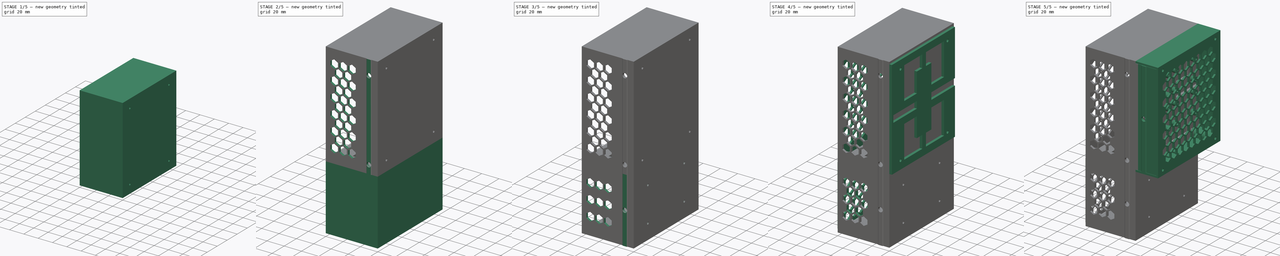
[diagram: build sequence overview — one tinted view per stage of 5, left to right]
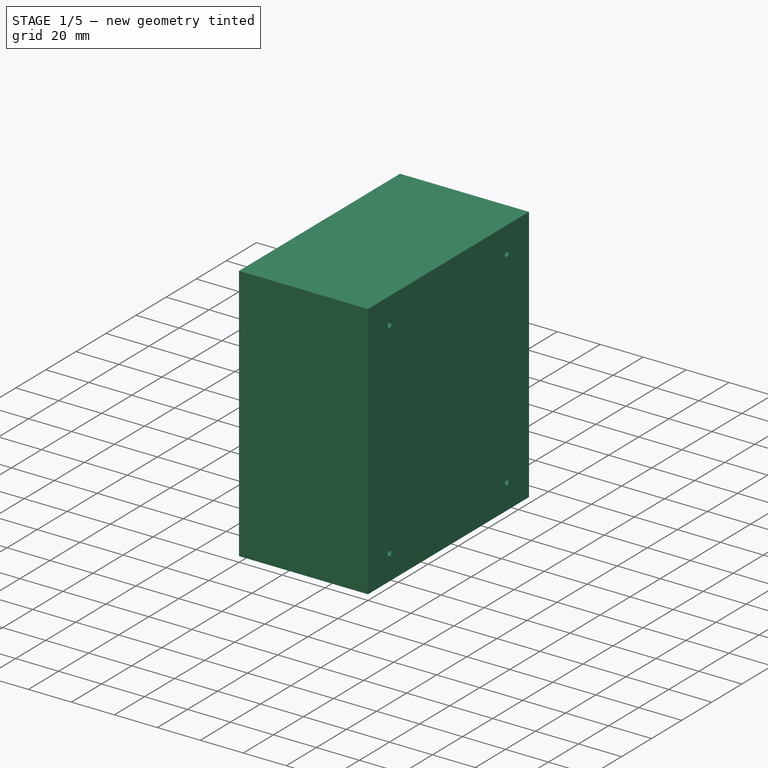
[diagram: stage 1 of 5 — iso view after this stage's code; geometry added in this stage tinted green]
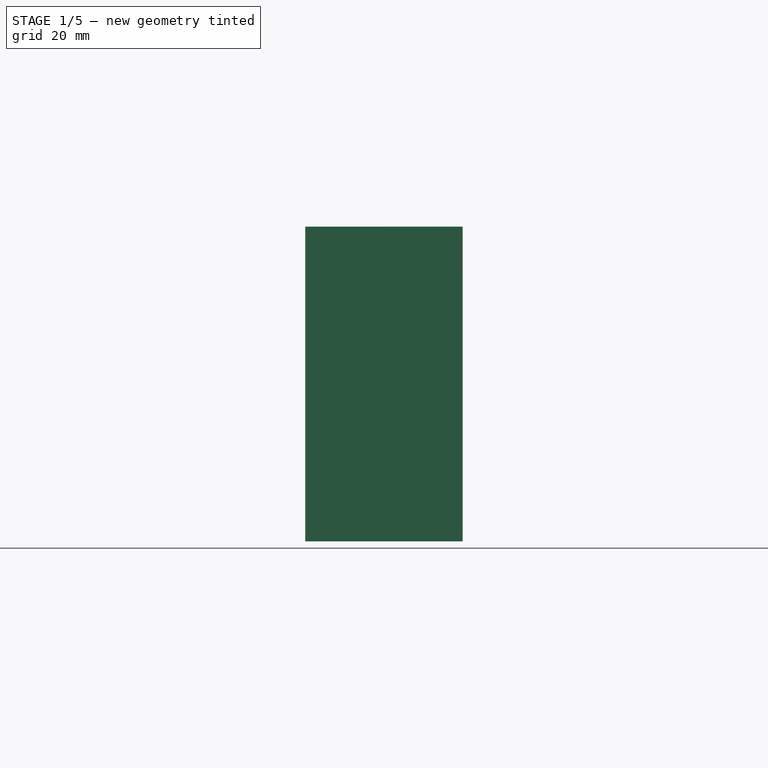
[diagram: stage 1 of 5 — front view after this stage's code; geometry added in this stage tinted green]
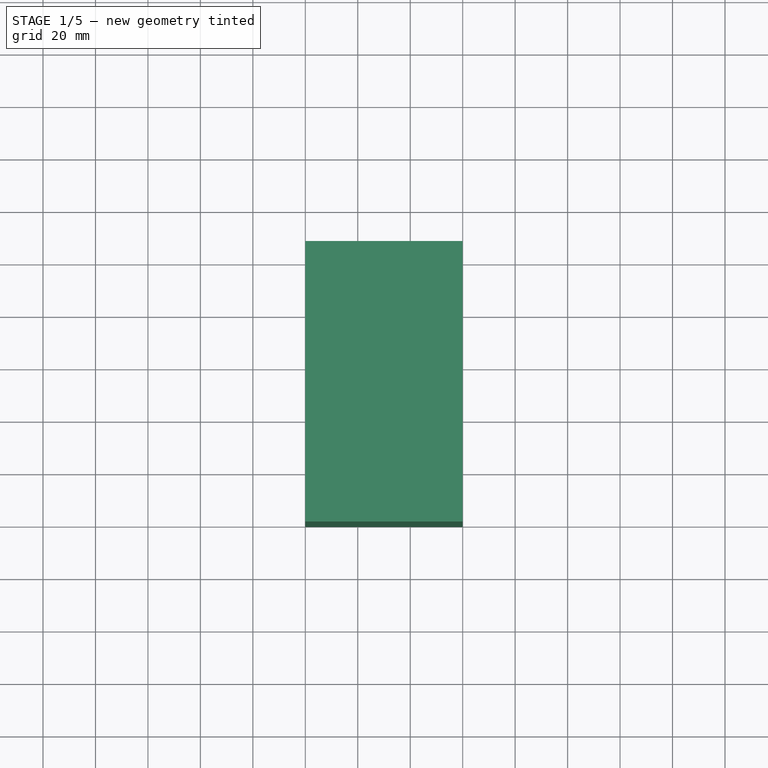
[diagram: stage 1 of 5 — top view after this stage's code; geometry added in this stage tinted green]
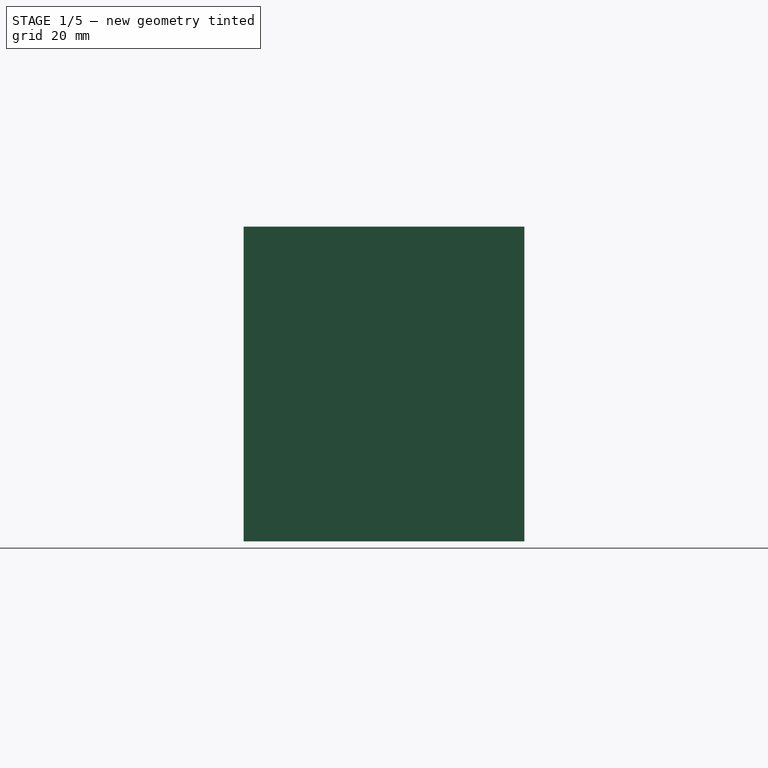
[diagram: stage 1 of 5 — right view after this stage's code; geometry added in this stage tinted green]
FCSTD DOCUMENT  (FreeCAD 0.19R24276 (Git))
Label: _Electr_Controller-Case
License: CreativeCommons Attribution
LicenseURL: http://creativecommons.org/licenses/by/4.0/
objects: Sketcher::SketchObject×54, PartDesign::Pocket×35, PartDesign::Pad×18, PartDesign::LinearPattern×14, Part::Feature×12, PartDesign::Body×6, PartDesign::MultiTransform×4, App::DocumentObjectGroup×3, PartDesign::Chamfer×3, PartDesign::Hole×1
note: 204 computed .brp shape members not serialized (recipe doc carries the construction recipe); baked Part::Feature solids carry a one-line shape summary decoded from their .brp

FEATURE [Part::Feature] Part__Feature002  label="Arduino MEGA 2560 R3"
  Placement = pos=(-8,55.1,6.1) rot=(0.707107,-0.707107,0;3.14159rad)
  shape: bbox 14.52 x 53.36 x 108.1 mm, 11236 faces, 65 solids (baked)
FEATURE [Part::Feature] Part__Feature001  label="Shield Ramps 1.4"
  Placement = pos=(-20.8,51.05,5.7) rot=(0.707107,-0.707107,0;3.14159rad)
  shape: bbox 37.65 x 61.78 x 106.4 mm, 10788 faces, 4 solids (baked)
FEATURE [Part::Feature] Part__Feature  label="Smart adapter connector LCD Ramps"
  Placement = pos=(-33.9,30.25,103.05) rot=(0.57735,-0.57735,0.57735;2.0944rad)
  shape: bbox 19.12 x 60.52 x 20.25 mm, 1322 faces, 5 solids (baked)
FEATURE [Part::Feature] Compound011  label="TL-Smoother_001"
  Placement = pos=(7.999,30.5,41.9995) rot=(-0.577506,0.577156,-0.577389;2.09417rad)
  shape: bbox 13.42 x 40.01 x 30.01 mm, 822 faces, 31 solids (baked)
FEATURE [Part::Feature] Compound012  label="TL-Smoother_002"
  Placement = pos=(8,76.5,42) rot=(0.57735,-0.57735,0.57735;4.18879rad)
  shape: bbox 13.4 x 40 x 30 mm, 822 faces, 31 solids (baked)
FEATURE [Part::Feature] Compound013  label="TL-Smoother_003"
  Placement = pos=(8,76.5,78) rot=(0.57735,0.57735,0.57735;2.0944rad)
  shape: bbox 13.4 x 40 x 30 mm, 822 faces, 31 solids (baked)
FEATURE [Part::Feature] Compound014  label="TL-Smoother_004"
  Placement = pos=(8,30.5,78) rot=(0.57735,0.57735,0.57735;2.0944rad)
  shape: bbox 13.4 x 40 x 30 mm, 822 faces, 31 solids (baked)
FEATURE [Part::Feature] Body001  label="profile_5_40x20-340_001"
  Placement = pos=(0,-10,-105) rot=(0,0,1;0rad)
  shape: bbox 40 x 20 x 340 mm, 120 faces (baked)
FEATURE [Sketcher::SketchObject] Sketch
  FullyConstrained = false
  MapMode = 5
  Placement = pos=(0,0,0) rot=(0.57735,0.57735,0.57735;2.0944rad)
  Support = -> [YZ_Plane]
  sketch-geometry (4):
    g0: LineSegment StartX=0 StartY=120 StartZ=0 EndX=107 EndY=120 EndZ=0
    g1: LineSegment StartX=107 StartY=120 StartZ=0 EndX=107 EndY=0 EndZ=0
    g2: LineSegment StartX=107 StartY=0 StartZ=0 EndX=0 EndY=0 EndZ=0
    g3: LineSegment StartX=0 StartY=0 StartZ=0 EndX=0 EndY=120 EndZ=0
  constraints (11):
    c: Coincident(g0,g1)
    c: Coincident(g1,g2)
    c: Coincident(g2,g3)
    c: Coincident(g3,g0)
    c: Horizontal(g0)
    c: Horizontal(g2)
    c: Vertical(g1)
    c: Vertical(g3)
    c: Coincident(g2,g-1)
    c: DistanceX(g0,g0) = 107  'width'
    c: DistanceY(g3,g3) = 120  'hight'
FEATURE [PartDesign::Pad] Pad  label="PadOuter"
  AllowMultiFace = false
  Direction = (1,1,1)
  Length = 60
  Length2 = 100
  Placement = pos=(0,0,0) rot=(0.57735,0.57735,0.57735;2.0944rad)
  Profile = -> Sketch
  Reversed = true
  Type = 0
FEATURE [Sketcher::SketchObject] Sketch001
  AttachmentOffset = pos=(0,0,-60) rot=(0,0,1;0rad)
  FullyConstrained = true
  MapMode = 5
  Placement = pos=(-60,1.33e-14,-1.33e-14) rot=(0.57735,0.57735,0.57735;2.0944rad)
  Support = -> [YZ_Plane]
  expr: Constraints[56] = .Constraints.wall_thickness
  expr: Constraints[52] = Sketch.Constraints.hight / 2
  expr: .AttachmentOffset.Base.z = -<<PadOuter>>.Length
  expr: Constraints[5] = Sketch.Constraints.hight
  expr: Constraints[57] = .Constraints.wall_thickness
  expr: Constraints[55] = .Constraints.wall_thickness
  expr: Constraints[51] = Sketch.Constraints.width / 2
  expr: Constraints[4] = Sketch.Constraints.width
  sketch-geometry (23):
    g0: LineSegment StartX=12.4 StartY=117.6 StartZ=0 EndX=94.6 EndY=117.6 EndZ=0
    g1: LineSegment StartX=104.6 StartY=107.6 StartZ=0 EndX=104.6 EndY=12.4 EndZ=0
    g2: LineSegment StartX=94.6 StartY=2.4 StartZ=0 EndX=12.4 EndY=2.4 EndZ=0
    g3: LineSegment StartX=2.4 StartY=12.4 StartZ=0 EndX=2.4 EndY=107.6 EndZ=0
    g4: GeomPoint X=107 Y=120 Z=0
    g5: ArcOfCircle CenterX=12.4 CenterY=114.6 CenterZ=0 NormalX=0 NormalY=0 NormalZ=1 AngleXU=0 Radius=3 StartAngle=1.5708 EndAngle=3.14159
    g6: ArcOfCircle CenterX=5.4 CenterY=107.6 CenterZ=0 NormalX=0 NormalY=0 NormalZ=1 AngleXU=0 Radius=3 StartAngle=1.5708 EndAngle=3.14159
    g7: ArcOfCircle CenterX=5.4 CenterY=114.6 CenterZ=0 NormalX=0 NormalY=0 NormalZ=1 AngleXU=0 Radius=4 StartAngle=4.71239 EndAngle=6.28319
    g8: ArcOfCircle CenterX=101.6 CenterY=114.6 CenterZ=0 NormalX=0 NormalY=0 NormalZ=1 AngleXU=0 Radius=4 StartAngle=3.14159 EndAngle=4.71239
    g9: ArcOfCircle CenterX=94.6 CenterY=114.6 CenterZ=0 NormalX=0 NormalY=0 NormalZ=1 AngleXU=0 Radius=3 StartAngle=6.25095e-06 EndAngle=1.5708
    g10: ArcOfCircle CenterX=5.4 CenterY=12.4 CenterZ=0 NormalX=0 NormalY=0 NormalZ=1 AngleXU=0 Radius=3 StartAngle=3.14159 EndAngle=4.71239
    g11: ArcOfCircle CenterX=12.4 CenterY=5.4 CenterZ=0 NormalX=0 NormalY=0 NormalZ=1 AngleXU=0 Radius=3 StartAngle=3.14159 EndAngle=4.71239
    g12: ArcOfCircle CenterX=5.4 CenterY=5.4 CenterZ=0 NormalX=0 NormalY=0 NormalZ=1 AngleXU=0 Radius=4 StartAngle=6.48689e-08 EndAngle=1.5708
    g13: ArcOfCircle CenterX=101.6 CenterY=5.4 CenterZ=0 NormalX=0 NormalY=0 NormalZ=1 AngleXU=0 Radius=4 StartAngle=1.5708 EndAngle=3.14159
    g14: ArcOfCircle CenterX=101.6 CenterY=12.4 CenterZ=0 NormalX=0 NormalY=0 NormalZ=1 AngleXU=0 Radius=3 StartAngle=4.71239 EndAngle=6.28319
    g15: ArcOfCircle CenterX=94.6 CenterY=5.4 CenterZ=0 NormalX=0 NormalY=0 NormalZ=1 AngleXU=0 Radius=3 StartAngle=4.71239 EndAngle=6.28318
    g16: ArcOfCircle CenterX=101.6 CenterY=107.6 CenterZ=0 NormalX=0 NormalY=0 NormalZ=1 AngleXU=0 Radius=3 StartAngle=6.28319 EndAngle=7.85398
    g17: LineSegment StartX=53.5 StartY=2.4 StartZ=0 EndX=53.5 EndY=5.4 EndZ=0
    g18: LineSegment StartX=2.4 StartY=60 StartZ=0 EndX=5.4 EndY=60 EndZ=0
    g19: LineSegment StartX=5.4 StartY=114.6 StartZ=0 EndX=101.6 EndY=114.6 EndZ=0
    g20: LineSegment StartX=101.6 StartY=114.6 StartZ=0 EndX=101.6 EndY=5.4 EndZ=0
    g21: LineSegment StartX=101.6 StartY=5.4 StartZ=0 EndX=5.4 EndY=5.4 EndZ=0
    g22: LineSegment StartX=5.4 StartY=5.4 StartZ=0 EndX=5.4 EndY=114.6 EndZ=0
  constraints (74):
    c: Horizontal(g0)
    c: Horizontal(g2)
    c: Vertical(g1)
    c: Vertical(g3)
    c: DistanceX(g-1,g4) = 107
    c: DistanceY(g-1,g4) = 120
    c: Coincident(g7,g5)
    c: Coincident(g7,g6)
    c: Coincident(g0,g5)
    c: Coincident(g3,g6)
    c: Tangent(g0,g5)
    c: Tangent(g5,g7)
    c: Tangent(g7,g6)
    c: Tangent(g6,g3)
    c: Coincident(g9,g8)
    c: Coincident(g0,g9)
    c: Tangent(g0,g9)
    c: Tangent(g9,g8)
    c: Coincident(g10,g3)
    c: Coincident(g11,g2)
    c: Coincident(g12,g10)
    c: Coincident(g12,g11)
    c: Tangent(g3,g10)
    c: Tangent(g10,g12)
    c: Tangent(g12,g11)
    c: Tangent(g11,g2)
    c: Coincident(g14,g13)
    c: Coincident(g14,g1)
    c: Coincident(g15,g2)
    c: Coincident(g15,g13)
    c: Tangent(g1,g14)
    c: Tangent(g14,g13)
    c: Tangent(g13,g15)
    c: Tangent(g15,g2)
    c: Coincident(g16,g8)
    c: Coincident(g16,g1)
    c: Tangent(g8,g16)
    c: Tangent(g16,g1)
    c: Radius(g7) = 4
    c: Equal(g7,g8)
    c: Equal(g7,g13)
    c: Equal(g7,g12)
    c: Equal(g15,g14)
    c: Equal(g14,g16)
    c: Equal(g16,g9)
    c: Equal(g9,g5)
    c: Equal(g5,g6)
    c: Equal(g10,g11)
    c: Vertical(g17)
    c: Symmetric(g2,g2,g17)
    c: Symmetric(g13,g12,g17)
    c: DistanceX(g-1,g17) = 53.5
    c: DistanceY(g-1,g18) = 60
    c: Symmetric(g3,g3,g18)
    c: Symmetric(g12,g7,g18)
    c: DistanceX(g-1,g3) = 2.4
    c: DistanceY(g-1,g2) = 2.4
    c: DistanceY(g0,g4) = 2.4
    c: DistanceX(g1,g4) = 2.4  'wall_thickness'
    c: Radius(g5) = 3  'CornerRadius'
    c: Coincident(g19,g20)
    c: Coincident(g20,g21)
    c: Coincident(g21,g22)
    c: Coincident(g22,g19)
    c: Horizontal(g19)
    c: Horizontal(g21)
    c: Vertical(g20)
    c: Vertical(g22)
    c: Coincident(g7,g19)
    c: Coincident(g8,g19)
    c: Coincident(g13,g20)
    c: Coincident(g12,g21)
    c: PointOnObject(g10,g22)
    c: PointOnObject(g11,g21)
FEATURE [PartDesign::Pocket] Pocket  label="PocketInner"
  AllowMultiFace = false
  BaseFeature = -> Pad
  Length = 57
  Length2 = 100
  Placement = pos=(0,0,0) rot=(0.57735,0.57735,0.57735;2.0944rad)
  Profile = -> Sketch001
  Reversed = true
  Type = 0
  expr: Length = <<PadOuter>>.Length - 3mm
FEATURE [Sketcher::SketchObject] Sketch002
  AttachmentOffset = pos=(0,0,-60) rot=(0,0,1;0rad)
  FullyConstrained = true
  MapMode = 5
  Placement = pos=(-60,1.33e-14,-1.33e-14) rot=(0.57735,0.57735,0.57735;2.0944rad)
  Support = -> [YZ_Plane]
  expr: .AttachmentOffset.Base.z = -<<PadOuter>>.Length
  expr: Constraints[7] = Sketch001.Constraints.wall_thickness
  expr: Constraints[8] = Sketch001.Constraints.wall_thickness
  expr: Constraints[6] = Sketch001.Constraints.wall_thickness
  expr: Constraints[9] = Sketch001.Constraints.wall_thickness
  expr: Constraints[5] = Sketch001.Constraints[5]
  expr: Constraints[4] = Sketch001.Constraints[4]
  sketch-geometry (5):
    g0: LineSegment StartX=2.4 StartY=117.6 StartZ=0 EndX=104.6 EndY=117.6 EndZ=0
    g1: LineSegment StartX=104.6 StartY=117.6 StartZ=0 EndX=104.6 EndY=2.4 EndZ=0
    g2: LineSegment StartX=104.6 StartY=2.4 StartZ=0 EndX=2.4 EndY=2.4 EndZ=0
    g3: LineSegment StartX=2.4 StartY=2.4 StartZ=0 EndX=2.4 EndY=117.6 EndZ=0
    g4: GeomPoint X=107 Y=120 Z=0
  constraints (14):
    c: Horizontal(g0)
    c: Horizontal(g2)
    c: Vertical(g1)
    c: Vertical(g3)
    c: DistanceX(g-1,g4) = 107
    c: DistanceY(g-1,g4) = 120
    c: DistanceX(g-1,g3) = 2.4
    c: DistanceY(g-1,g2) = 2.4
    c: DistanceX(g1,g4) = 2.4
    c: DistanceY(g0,g4) = 2.4
    c: Coincident(g2,g3)
    c: Coincident(g2,g1)
    c: Coincident(g1,g0)
    c: Coincident(g3,g0)
FEATURE [PartDesign::Pocket] Pocket001  label="PocketCover"
  AllowMultiFace = false
  BaseFeature = -> Pocket
  Length = 2
  Length2 = 100
  Placement = pos=(0,0,0) rot=(0.57735,0.57735,0.57735;2.0944rad)
  Profile = -> Sketch002
  Reversed = true
  Type = 0
FEATURE [Sketcher::SketchObject] Sketch003
  AttachmentOffset = pos=(0,0,-53.5) rot=(0,0,1;0rad)
  FullyConstrained = true
  MapMode = 5
  Placement = pos=(0,53.5,1.19e-14) rot=(1,0,0;1.5708rad)
  Support = -> [XZ_Plane]
  expr: Constraints[7] = Sketch.Constraints.hight - Sketch001.Constraints.wall_thickness
  expr: .AttachmentOffset.Base.z = -Sketch.Constraints.width / 2
  expr: Constraints[20] = Sketch001.Constraints.wall_thickness
  sketch-geometry (8):
    g0: LineSegment StartX=-3 StartY=117.6 StartZ=0 EndX=-3 EndY=107.6 EndZ=0
    g1: LineSegment StartX=-3 StartY=107.6 StartZ=0 EndX=-53 EndY=107.6 EndZ=0
    g2: LineSegment StartX=-53 StartY=107.6 StartZ=0 EndX=-43 EndY=117.6 EndZ=0
    g3: LineSegment StartX=-43 StartY=117.6 StartZ=0 EndX=-3 EndY=117.6 EndZ=0
    g4: LineSegment StartX=-3 StartY=2.4 StartZ=0 EndX=-43 EndY=2.4 EndZ=0
    g5: LineSegment StartX=-43 StartY=2.4 StartZ=0 EndX=-53 EndY=12.4 EndZ=0
    g6: LineSegment StartX=-53 StartY=12.4 StartZ=0 EndX=-3 EndY=12.4 EndZ=0
    g7: LineSegment StartX=-3 StartY=12.4 StartZ=0 EndX=-3 EndY=2.4 EndZ=0
  constraints (24):
    c: Vertical(g0)
    c: Coincident(g0,g1)
    c: Horizontal(g1)
    c: Coincident(g1,g2)
    c: Coincident(g2,g3)
    c: Coincident(g3,g0)
    c: Horizontal(g3)
    c: DistanceY(g-1,g0) = 117.6
    c: DistanceY(g1,g2) = 10
    c: DistanceX(g3,g3) = 40
    c: Angle(g1,g2) = 0.785398
    c: Horizontal(g4)
    c: Coincident(g4,g5)
    c: Coincident(g5,g6)
    c: Horizontal(g6)
    c: Coincident(g6,g7)
    c: Coincident(g7,g4)
    c: Vertical(g7)
    c: DistanceX(g4,g-1) = 3
    c: Vertical(g6,g0)
    c: DistanceY(g-1,g4) = 2.4
    c: Equal(g0,g7)
    c: Angle(g5,g6) = 0.785398
    c: Equal(g4,g3)
FEATURE [PartDesign::Pocket] Pocket002  label="PocketInnerClearance"
  AllowMultiFace = false
  BaseFeature = -> Pocket001
  Length = 102.2
  Length2 = 100
  Midplane = true
  Placement = pos=(0,0,0) rot=(0.57735,0.57735,0.57735;2.0944rad)
  Profile = -> Sketch003
  Type = 0
  expr: Length = Sketch.Constraints.width - Sketch001.Constraints.wall_thickness * 2
FEATURE [Sketcher::SketchObject] Sketch004
  AttachmentOffset = pos=(0,0,-60) rot=(0,0,1;0rad)
  FullyConstrained = true
  MapMode = 5
  Placement = pos=(-60,1.33e-14,-1.33e-14) rot=(0.57735,0.57735,0.57735;2.0944rad)
  Support = -> [YZ_Plane]
  expr: Constraints[12] = Sketch.Constraints.width - 2 * (Sketch001.Constraints.wall_thickness + Sketch001.Constraints.CornerRadius)
  expr: Constraints[13] = Sketch.Constraints.hight - 2 * (Sketch001.Constraints.wall_thickness + Sketch001.Constraints.CornerRadius)
  expr: .AttachmentOffset.Base.z = -Pad.Length
  expr: Constraints[11] = Sketch.Constraints.width / 2
  expr: Constraints[10] = Sketch.Constraints.hight / 2
  sketch-geometry (10):
    g0: LineSegment StartX=5.4 StartY=114.6 StartZ=0 EndX=101.6 EndY=114.6 EndZ=0
    g1: LineSegment StartX=101.6 StartY=114.6 StartZ=0 EndX=101.6 EndY=5.4 EndZ=0
    g2: LineSegment StartX=101.6 StartY=5.4 StartZ=0 EndX=5.4 EndY=5.4 EndZ=0
    g3: LineSegment StartX=5.4 StartY=5.4 StartZ=0 EndX=5.4 EndY=114.6 EndZ=0
    g4: GeomPoint X=5.4 Y=60 Z=0
    g5: GeomPoint X=53.5 Y=5.4 Z=0
    g6: Circle CenterX=5.4 CenterY=114.6 CenterZ=0 NormalX=0 NormalY=0 NormalZ=1 AngleXU=0 Radius=1.4
    g7: Circle CenterX=101.6 CenterY=114.6 CenterZ=0 NormalX=0 NormalY=0 NormalZ=1 AngleXU=0 Radius=1.4
    g8: Circle CenterX=101.6 CenterY=5.4 CenterZ=0 NormalX=0 NormalY=0 NormalZ=1 AngleXU=0 Radius=1.4
    g9: Circle CenterX=5.4 CenterY=5.4 CenterZ=0 NormalX=0 NormalY=0 NormalZ=1 AngleXU=0 Radius=1.4
  constraints (22):
    c: Coincident(g0,g1)
    c: Coincident(g1,g2)
    c: Coincident(g2,g3)
    c: Coincident(g3,g0)
    c: Horizontal(g0)
    c: Horizontal(g2)
    c: Vertical(g1)
    c: Vertical(g3)
    c: Symmetric(g2,g1,g5)
    c: Symmetric(g2,g0,g4)
    c: DistanceY(g-1,g4) = 60
    c: DistanceX(g-1,g5) = 53.5
    c: DistanceX(g0,g0) = 96.2
    c: DistanceY(g1,g1) = 109.2
    c: Coincident(g7,g0)
    c: Coincident(g8,g1)
    c: Coincident(g9,g2)
    c: Equal(g9,g6)
    c: Equal(g6,g7)
    c: Equal(g7,g8)
    c: Diameter(g9) = 2.8
    c: Coincident(g6,g0)
FEATURE [PartDesign::Pocket] Pocket003  label="PocketScrewHolesCover"
  AllowMultiFace = false
  BaseFeature = -> Pocket002
  Length = 12
  Length2 = 100
  Placement = pos=(0,0,0) rot=(0.57735,0.57735,0.57735;2.0944rad)
  Profile = -> Sketch004
  Reversed = true
  Type = 0
FEATURE [Sketcher::SketchObject] Sketch005
  AttachmentOffset = pos=(0,0,-3) rot=(0,0,1;0rad)
  FullyConstrained = false
  MapMode = 5
  Placement = pos=(-3,7e-16,-7e-16) rot=(0.57735,0.57735,0.57735;2.0944rad)
  Support = -> [YZ_Plane]
  expr: Constraints[22] = Sketch.Constraints.width / 2
  expr: Constraints[21] = Sketch.Constraints.hight / 2
  sketch-geometry (10):
    g0: Circle CenterX=14.5 CenterY=108 CenterZ=0 NormalX=0 NormalY=0 NormalZ=1 AngleXU=0 Radius=2.5
    g1: Circle CenterX=92.5 CenterY=108 CenterZ=0 NormalX=0 NormalY=0 NormalZ=1 AngleXU=0 Radius=2.5
    g2: Circle CenterX=92.5 CenterY=12 CenterZ=0 NormalX=0 NormalY=0 NormalZ=1 AngleXU=0 Radius=2.5
    g3: Circle CenterX=14.5 CenterY=12 CenterZ=0 NormalX=0 NormalY=0 NormalZ=1 AngleXU=0 Radius=2.5
    g4: LineSegment StartX=14.5 StartY=108 StartZ=0 EndX=92.5 EndY=108 EndZ=0
    g5: LineSegment StartX=92.5 StartY=108 StartZ=0 EndX=92.5 EndY=12 EndZ=0
    g6: LineSegment StartX=92.5 StartY=12 StartZ=0 EndX=14.5 EndY=12 EndZ=0
    g7: LineSegment StartX=14.5 StartY=12 StartZ=0 EndX=14.5 EndY=108 EndZ=0
    g8: LineSegment StartX=53.5 StartY=108 StartZ=0 EndX=53.5 EndY=12 EndZ=0
    g9: LineSegment StartX=14.5 StartY=60 StartZ=0 EndX=92.5 EndY=60 EndZ=0
  constraints (26):
    c: Coincident(g4,g5)
    c: Coincident(g5,g6)
    c: Coincident(g6,g7)
    c: Coincident(g7,g4)
    c: Horizontal(g4)
    c: Horizontal(g6)
    c: Vertical(g5)
    c: Vertical(g7)
    c: Coincident(g4,g0)
    c: Coincident(g5,g2)
    c: Coincident(g4,g1)
    c: Coincident(g3,g6)
    c: Equal(g0,g1)
    c: Equal(g1,g2)
    c: Equal(g2,g3)
    c: PointOnObject(g8,g4)
    c: PointOnObject(g8,g6)
    c: Symmetric(g1,g0,g8)
    c: PointOnObject(g9,g7)
    c: PointOnObject(g9,g5)
    c: Symmetric(g0,g3,g9)
    c: DistanceY(g-1,g9) = 60
    c: DistanceX(g-1,g8) = 53.5
    c: Diameter(g1) = 5
    c: DistanceY(g5,g5) = 96
    c: DistanceX(g4,g4) = 78
FEATURE [PartDesign::Pad] Pad001  label="PadBackScrews"
  AllowMultiFace = false
  BaseFeature = -> Pocket003
  Direction = (1,1,1)
  Length = 4
  Length2 = 100
  Placement = pos=(0,0,0) rot=(0.57735,0.57735,0.57735;2.0944rad)
  Profile = -> Sketch005
  Reversed = true
  Type = 0
FEATURE [Sketcher::SketchObject] Sketch006
  FullyConstrained = false
  MapMode = 5
  Placement = pos=(0,0,0) rot=(0.57735,0.57735,0.57735;2.0944rad)
  Support = -> [YZ_Plane]
  expr: Constraints[24] = Sketch005.Constraints[24]
  expr: Constraints[22] = Sketch005.Constraints[22]
  expr: Constraints[25] = Sketch005.Constraints[25]
  expr: Constraints[21] = Sketch005.Constraints[21]
  sketch-geometry (10):
    g0: Circle CenterX=14.5 CenterY=108 CenterZ=0 NormalX=0 NormalY=0 NormalZ=1 AngleXU=0 Radius=1.4
    g1: Circle CenterX=92.5 CenterY=108 CenterZ=0 NormalX=0 NormalY=0 NormalZ=1 AngleXU=0 Radius=1.4
    g2: Circle CenterX=92.5 CenterY=12 CenterZ=0 NormalX=0 NormalY=0 NormalZ=1 AngleXU=0 Radius=1.4
    g3: Circle CenterX=14.5 CenterY=12 CenterZ=0 NormalX=0 NormalY=0 NormalZ=1 AngleXU=0 Radius=1.4
    g4: LineSegment StartX=14.5 StartY=108 StartZ=0 EndX=92.5 EndY=108 EndZ=0
    g5: LineSegment StartX=92.5 StartY=108 StartZ=0 EndX=92.5 EndY=12 EndZ=0
    g6: LineSegment StartX=92.5 StartY=12 StartZ=0 EndX=14.5 EndY=12 EndZ=0
    g7: LineSegment StartX=14.5 StartY=12 StartZ=0 EndX=14.5 EndY=108 EndZ=0
    g8: LineSegment StartX=53.5 StartY=108 StartZ=0 EndX=53.5 EndY=12 EndZ=0
    g9: LineSegment StartX=14.5 StartY=60 StartZ=0 EndX=92.5 EndY=60 EndZ=0
  constraints (26):
    c: Coincident(g4,g5)
    c: Coincident(g5,g6)
    c: Coincident(g6,g7)
    c: Coincident(g7,g4)
    c: Horizontal(g4)
    c: Horizontal(g6)
    c: Vertical(g5)
    c: Vertical(g7)
    c: Coincident(g4,g0)
    c: Coincident(g5,g2)
    c: Coincident(g4,g1)
    c: Coincident(g3,g6)
    c: Equal(g0,g1)
    c: Equal(g1,g2)
    c: Equal(g2,g3)
    c: PointOnObject(g8,g4)
    c: PointOnObject(g8,g6)
    c: Symmetric(g1,g0,g8)
    c: PointOnObject(g9,g7)
    c: PointOnObject(g9,g5)
    c: Symmetric(g0,g3,g9)
    c: DistanceY(g-1,g9) = 60
    c: DistanceX(g-1,g8) = 53.5
    c: Diameter(g1) = 2.8
    c: DistanceY(g5,g5) = 96
    c: DistanceX(g4,g4) = 78
FEATURE [PartDesign::Pocket] Pocket004  label="PocketBackScrewsBores"
  AllowMultiFace = false
  BaseFeature = -> Pad001
  Length = 6
  Length2 = 100
  Placement = pos=(0,0,0) rot=(0.57735,0.57735,0.57735;2.0944rad)
  Profile = -> Sketch006
  Type = 0
FEATURE [Sketcher::SketchObject] Sketch007
  AttachmentOffset = pos=(0,0,-3) rot=(0,0,1;0rad)
  FullyConstrained = false
  MapMode = 5
  Placement = pos=(-3,7e-16,-7e-16) rot=(0.57735,0.57735,0.57735;2.0944rad)
  Support = -> [YZ_Plane]
  sketch-geometry (6):
    g0: Circle CenterX=31 CenterY=102.55 CenterZ=0 NormalX=0 NormalY=0 NormalZ=1 AngleXU=0 Radius=2.6
    g1: Circle CenterX=79.26 CenterY=96.2 CenterZ=0 NormalX=0 NormalY=0 NormalZ=1 AngleXU=0 Radius=2.6
    g2: Circle CenterX=79.26 CenterY=21.27 CenterZ=0 NormalX=0 NormalY=0 NormalZ=1 AngleXU=0 Radius=2.6
    g3: Circle CenterX=31 CenterY=20 CenterZ=0 NormalX=0 NormalY=0 NormalZ=1 AngleXU=0 Radius=2.6
    g4: LineSegment StartX=31 StartY=102.55 StartZ=0 EndX=31 EndY=20 EndZ=0
    g5: LineSegment StartX=79.26 StartY=21.27 StartZ=0 EndX=79.26 EndY=96.2 EndZ=0
  constraints (16):
    c: Equal(g3,g2)
    c: Equal(g2,g1)
    c: Equal(g1,g0)
    c: DistanceX(g0,g1) = 48.26
    c: DistanceY(g2,g1) = 74.93
    c: DistanceY(g3,g0) = 82.55
    c: Coincident(g4,g0)
    c: Coincident(g4,g3)
    c: Vertical(g4)
    c: Coincident(g5,g2)
    c: Coincident(g5,g1)
    c: Vertical(g5)
    c: DistanceY(g3,g2) = 1.27
    c: DistanceX(g-1,g3) = 31
    c: DistanceY(g-1,g3) = 20
    c: Diameter(g0) = 5.2
FEATURE [PartDesign::Pad] Pad002  label="PadArduino"
  AllowMultiFace = false
  BaseFeature = -> Pocket004
  Direction = (1,1,1)
  Length = 5
  Length2 = 100
  Placement = pos=(0,0,0) rot=(0.57735,0.57735,0.57735;2.0944rad)
  Profile = -> Sketch007
  Reversed = true
  Type = 0
FEATURE [Sketcher::SketchObject] Sketch008
  AttachmentOffset = pos=(0,0,-8) rot=(0,0,1;0rad)
  FullyConstrained = false
  MapMode = 5
  Placement = pos=(-8,1.8e-15,-1.8e-15) rot=(0.57735,0.57735,0.57735;2.0944rad)
  Support = -> [YZ_Plane]
  expr: Constraints[14] = Sketch007.Constraints[14]
  expr: Constraints[13] = Sketch007.Constraints[13]
  expr: Constraints[12] = Sketch007.Constraints[12]
  expr: Constraints[5] = Sketch007.Constraints[5]
  expr: Constraints[4] = Sketch007.Constraints[4]
  expr: Constraints[3] = Sketch007.Constraints[3]
  sketch-geometry (6):
    g0: Circle CenterX=31 CenterY=102.55 CenterZ=0 NormalX=0 NormalY=0 NormalZ=1 AngleXU=0 Radius=1.4
    g1: Circle CenterX=79.26 CenterY=96.2 CenterZ=0 NormalX=0 NormalY=0 NormalZ=1 AngleXU=0 Radius=1.4
    g2: Circle CenterX=79.26 CenterY=21.27 CenterZ=0 NormalX=0 NormalY=0 NormalZ=1 AngleXU=0 Radius=1.4
    g3: Circle CenterX=31 CenterY=20 CenterZ=0 NormalX=0 NormalY=0 NormalZ=1 AngleXU=0 Radius=1.4
    g4: LineSegment StartX=31 StartY=102.55 StartZ=0 EndX=31 EndY=20 EndZ=0
    g5: LineSegment StartX=79.26 StartY=21.27 StartZ=0 EndX=79.26 EndY=96.2 EndZ=0
  constraints (16):
    c: Equal(g3,g2)
    c: Equal(g2,g1)
    c: Equal(g1,g0)
    c: DistanceX(g0,g1) = 48.26
    c: DistanceY(g2,g1) = 74.93
    c: DistanceY(g3,g0) = 82.55
    c: Coincident(g4,g0)
    c: Coincident(g4,g3)
    c: Vertical(g4)
    c: Coincident(g5,g2)
    c: Coincident(g5,g1)
    c: Vertical(g5)
    c: DistanceY(g3,g2) = 1.27
    c: DistanceX(g-1,g3) = 31
    c: DistanceY(g-1,g3) = 20
    c: Diameter(g0) = 2.8
FEATURE [PartDesign::Pocket] Pocket005  label="PocketArduinoBores"
  AllowMultiFace = false
  BaseFeature = -> Pad002
  Length = 7
  Length2 = 100
  Placement = pos=(0,0,0) rot=(0.57735,0.57735,0.57735;2.0944rad)
  Profile = -> Sketch008
  Reversed = true
  Type = 0
FEATURE [Sketcher::SketchObject] Sketch009
  AttachmentOffset = pos=(0,0,-3) rot=(0,0,1;0rad)
  ExternalGeometry = -> [Sketch002]
  FullyConstrained = true
  MapMode = 5
  Placement = pos=(-3,7e-16,-7e-16) rot=(0.57735,0.57735,0.57735;2.0944rad)
  Support = -> [YZ_Plane]
  expr: Constraints[5] = Sketch.Constraints.width / 2
  sketch-geometry (24):
    g0: LineSegment StartX=10.32 StartY=113.22 StartZ=0 EndX=10.32 EndY=21.78 EndZ=0
    g1: LineSegment StartX=96.68 StartY=21.78 StartZ=0 EndX=96.68 EndY=113.22 EndZ=0
    g2: LineSegment StartX=10.32 StartY=21.78 StartZ=0 EndX=96.68 EndY=21.78 EndZ=0
    g3: LineSegment StartX=10.32 StartY=113.22 StartZ=0 EndX=96.68 EndY=113.22 EndZ=0
    g4: GeomPoint X=53.5 Y=21.78 Z=0
    g5: GeomPoint X=10.32 Y=67.5 Z=0
    g6: ArcOfCircle CenterX=10.32 CenterY=113.22 CenterZ=0 NormalX=0 NormalY=0 NormalZ=1 AngleXU=0 Radius=4 StartAngle=4.71239 EndAngle=6.28319
    g7: ArcOfCircle CenterX=96.68 CenterY=113.22 CenterZ=0 NormalX=0 NormalY=0 NormalZ=1 AngleXU=0 Radius=4 StartAngle=3.14159 EndAngle=4.71239
    g8: LineSegment StartX=2.4 StartY=117.6 StartZ=0 EndX=14.32 EndY=117.6 EndZ=0
    g9: LineSegment StartX=14.32 StartY=117.6 StartZ=0 EndX=14.32 EndY=113.22 EndZ=0
    g10: LineSegment StartX=10.32 StartY=109.22 StartZ=0 EndX=2.4 EndY=109.22 EndZ=0
    g11: LineSegment StartX=2.4 StartY=109.22 StartZ=0 EndX=2.4 EndY=117.6 EndZ=0
    g12: LineSegment StartX=92.68 StartY=113.22 StartZ=0 EndX=92.68 EndY=117.6 EndZ=0
    g13: LineSegment StartX=92.68 StartY=117.6 StartZ=0 EndX=104.6 EndY=117.6 EndZ=0
    g14: LineSegment StartX=104.6 StartY=117.6 StartZ=0 EndX=104.6 EndY=109.22 EndZ=0
    g15: LineSegment StartX=104.6 StartY=109.22 StartZ=0 EndX=96.68 EndY=109.22 EndZ=0
    g16: LineSegment StartX=2.4 StartY=25.78 StartZ=0 EndX=10.32 EndY=25.78 EndZ=0
    g17: ArcOfCircle CenterX=10.32 CenterY=21.78 CenterZ=0 NormalX=0 NormalY=0 NormalZ=1 AngleXU=0 Radius=4 StartAngle=4.71239 EndAngle=7.85398
    g18: LineSegment StartX=10.32 StartY=17.78 StartZ=0 EndX=2.4 EndY=17.78 EndZ=0
    g19: LineSegment StartX=2.4 StartY=17.78 StartZ=0 EndX=2.4 EndY=25.78 EndZ=0
    g20: LineSegment StartX=104.6 StartY=25.78 StartZ=0 EndX=96.68 EndY=25.78 EndZ=0
    g21: ArcOfCircle CenterX=96.68 CenterY=21.78 CenterZ=0 NormalX=0 NormalY=0 NormalZ=1 AngleXU=0 Radius=4 StartAngle=1.5708 EndAngle=4.71239
    g22: LineSegment StartX=96.68 StartY=17.78 StartZ=0 EndX=104.6 EndY=17.78 EndZ=0
    g23: LineSegment StartX=104.6 StartY=17.78 StartZ=0 EndX=104.6 EndY=25.78 EndZ=0
  constraints (60):
    c: Vertical(g0)
    c: Vertical(g1)
    c: Horizontal(g2)
    c: Horizontal(g3)
    c: DistanceX(g3,g3) = 86.36
    c: DistanceX(g-1,g4) = 53.5
    c: DistanceY(g-1,g5) = 67.5
    c: DistanceY(g1,g1) = 91.44
    c: Coincident(g0,g3)
    c: Coincident(g1,g3)
    c: Coincident(g6,g0)
    c: Coincident(g7,g1)
    c: Coincident(g8,g-3)
    c: Horizontal(g8)
    c: Coincident(g8,g9)
    c: Coincident(g9,g6)
    c: Tangent(g6,g10) = 1.5708
    c: Coincident(g10,g11)
    c: Coincident(g11,g8)
    c: Vertical(g11)
    c: Vertical(g9)
    c: Horizontal(g10)
    c: Tangent(g9,g6)
    c: Tangent(g7,g12) = 1.5708
    c: Coincident(g12,g13)
    c: Coincident(g13,g-4)
    c: Horizontal(g13)
    c: Coincident(g13,g14)
    c: Vertical(g14)
    c: Coincident(g14,g15)
    c: Coincident(g15,g7)
    c: Horizontal(g15)
    c: Vertical(g12)
    c: Equal(g7,g6)
    c: Tangent(g15,g7)
    c: Radius(g6) = 4
    c: Symmetric(g0,g1,g4)
    c: Symmetric(g0,g6,g5)
    c: Coincident(g0,g2)
    c: Coincident(g1,g2)
    c: Tangent(g16,g17) = 1.5708
    c: Tangent(g17,g18) = 1.5708
    c: Coincident(g18,g19)
    c: Coincident(g19,g16)
    c: Vertical(g19)
    c: Horizontal(g20)
    c: Tangent(g20,g21) = -1.5708
    c: Tangent(g21,g22) = -1.5708
    c: Coincident(g22,g23)
    c: Coincident(g23,g20)
    c: Horizontal(g16)
    c: Horizontal(g18)
    c: Horizontal(g22)
    c: Vertical(g23)
    c: Vertical(g14,g20)
    c: Vertical(g16,g10)
    c: Coincident(g17,g0)
    c: Coincident(g21,g1)
    c: Equal(g7,g21)
    c: Equal(g21,g17)
FEATURE [Sketcher::SketchObject] Sketch010
  AttachmentOffset = pos=(0,0,-19) rot=(0,0,1;0rad)
  FullyConstrained = true
  MapMode = 5
  Placement = pos=(-19,4.2e-15,-4.2e-15) rot=(0.57735,0.57735,0.57735;2.0944rad)
  Support = -> [YZ_Plane]
  expr: Constraints[21] = Sketch009.Constraints[7]
  expr: Constraints[20] = Sketch009.Constraints[6]
  expr: Constraints[18] = Sketch009.Constraints[5]
  expr: Constraints[16] = Sketch009.Constraints[4]
  sketch-geometry (10):
    g0: Circle CenterX=10.32 CenterY=113.22 CenterZ=0 NormalX=0 NormalY=0 NormalZ=1 AngleXU=0 Radius=1.4
    g1: Circle CenterX=96.68 CenterY=113.22 CenterZ=0 NormalX=0 NormalY=0 NormalZ=1 AngleXU=0 Radius=1.4
    g2: Circle CenterX=96.68 CenterY=21.78 CenterZ=0 NormalX=0 NormalY=0 NormalZ=1 AngleXU=0 Radius=1.4
    g3: Circle CenterX=10.32 CenterY=21.78 CenterZ=0 NormalX=0 NormalY=0 NormalZ=1 AngleXU=0 Radius=1.4
    g4: LineSegment StartX=10.32 StartY=113.22 StartZ=0 EndX=10.32 EndY=21.78 EndZ=0
    g5: LineSegment StartX=96.68 StartY=21.78 StartZ=0 EndX=96.68 EndY=113.22 EndZ=0
    g6: LineSegment StartX=10.32 StartY=21.78 StartZ=0 EndX=96.68 EndY=21.78 EndZ=0
    g7: LineSegment StartX=10.32 StartY=113.22 StartZ=0 EndX=96.68 EndY=113.22 EndZ=0
    g8: GeomPoint X=53.5 Y=21.78 Z=0
    g9: GeomPoint X=10.32 Y=67.5 Z=0
  constraints (22):
    c: Equal(g3,g2)
    c: Equal(g2,g1)
    c: Equal(g1,g0)
    c: Coincident(g4,g0)
    c: Coincident(g4,g3)
    c: Vertical(g4)
    c: Coincident(g5,g2)
    c: Coincident(g5,g1)
    c: Vertical(g5)
    c: Diameter(g0) = 2.8
    c: Coincident(g6,g3)
    c: Coincident(g6,g2)
    c: Horizontal(g6)
    c: Coincident(g7,g0)
    c: Coincident(g7,g1)
    c: Horizontal(g7)
    c: DistanceX(g7,g7) = 86.36
    c: Symmetric(g3,g2,g8)
    c: DistanceX(g-1,g8) = 53.5
    c: Symmetric(g0,g3,g9)
    c: DistanceY(g-1,g9) = 67.5
    c: DistanceY(g5,g5) = 91.44
FEATURE [PartDesign::Pad] Pad003  label="PadAnet"
  AllowMultiFace = false
  BaseFeature = -> Pocket005
  Direction = (1,1,1)
  Length = 15
  Length2 = 100
  Placement = pos=(0,0,0) rot=(0.57735,0.57735,0.57735;2.0944rad)
  Profile = -> Sketch009
  Reversed = true
  Type = 0
FEATURE [PartDesign::Pocket] Pocket006  label="PocketAnetBores"
  AllowMultiFace = false
  BaseFeature = -> Pad003
  Length = 8
  Length2 = 100
  Placement = pos=(0,0,0) rot=(0.57735,0.57735,0.57735;2.0944rad)
  Profile = -> Sketch010
  Reversed = true
  Type = 0
FEATURE [Sketcher::SketchObject] Sketch011
  AttachmentOffset = pos=(0,0,-0.3) rot=(0,0,1;0rad)
  FullyConstrained = true
  MapMode = 5
  Placement = pos=(-0.3,1e-16,-1e-16) rot=(0.57735,0.57735,0.57735;2.0944rad)
  Support = -> [YZ_Plane]
  expr: Constraints[2] = Sketch.Constraints.hight / 2
  expr: Constraints[0] = Sketch.Constraints.width / 2
  sketch-geometry (88):
    g0: GeomPoint X=53.5 Y=60 Z=0
    g1: LineSegment StartX=19.5 StartY=60 StartZ=0 EndX=87.5 EndY=60 EndZ=0
    g2: ArcOfCircle CenterX=6.5 CenterY=60 CenterZ=0 NormalX=0 NormalY=0 NormalZ=1 AngleXU=0 Radius=3.5 StartAngle=1.5708 EndAngle=4.71239
    g3: ArcOfCircle CenterX=19.5 CenterY=60 CenterZ=0 NormalX=0 NormalY=0 NormalZ=1 AngleXU=0 Radius=3.5 StartAngle=4.71239 EndAngle=7.85398
    g4: LineSegment StartX=6.5 StartY=56.5 StartZ=0 EndX=19.5 EndY=56.5 EndZ=0
    g5: LineSegment StartX=6.5 StartY=63.5 StartZ=0 EndX=19.5 EndY=63.5 EndZ=0
    g6: ArcOfCircle CenterX=87.5 CenterY=60 CenterZ=0 NormalX=0 NormalY=0 NormalZ=1 AngleXU=0 Radius=3.5 StartAngle=1.5708 EndAngle=4.71239
    g7: ArcOfCircle CenterX=100.5 CenterY=60 CenterZ=0 NormalX=0 NormalY=0 NormalZ=1 AngleXU=0 Radius=3.5 StartAngle=4.71239 EndAngle=7.85398
    g8: LineSegment StartX=87.5 StartY=56.5 StartZ=0 EndX=100.5 EndY=56.5 EndZ=0
    g9: LineSegment StartX=87.5 StartY=63.5 StartZ=0 EndX=100.5 EndY=63.5 EndZ=0
    g10: ArcOfCircle CenterX=22.9235 CenterY=60.7277 CenterZ=0 NormalX=0 NormalY=0 NormalZ=1 AngleXU=0 Radius=0.5 StartAngle=3.35103 EndAngle=6.49263
    g11: ArcOfCircle CenterX=22.9235 CenterY=59.2723 CenterZ=0 NormalX=0 NormalY=0 NormalZ=1 AngleXU=0 Radius=0.5 StartAngle=6.07375 EndAngle=9.21534
    g12: ArcOfCircle CenterX=3.07648 CenterY=60.7277 CenterZ=0 NormalX=0 NormalY=0 NormalZ=1 AngleXU=0 Radius=0.5 StartAngle=2.93215 EndAngle=6.07375
    g13: ArcOfCircle CenterX=3.07648 CenterY=59.2723 CenterZ=0 NormalX=0 NormalY=0 NormalZ=1 AngleXU=0 Radius=0.5 StartAngle=0.20944 EndAngle=3.35103
    g14: ArcOfCircle CenterX=6.5 CenterY=60 CenterZ=0 NormalX=0 NormalY=0 NormalZ=1 AngleXU=0 Radius=3 StartAngle=1.5708 EndAngle=2.93215
    g15: ArcOfCircle CenterX=6.5 CenterY=60 CenterZ=0 NormalX=0 NormalY=0 NormalZ=1 AngleXU=0 Radius=3 StartAngle=3.35103 EndAngle=4.71239
    g16: ArcOfCircle CenterX=6.5 CenterY=60 CenterZ=0 NormalX=0 NormalY=0 NormalZ=1 AngleXU=0 Radius=4 StartAngle=3.35103 EndAngle=4.71239
    g17: ArcOfCircle CenterX=6.5 CenterY=60 CenterZ=0 NormalX=0 NormalY=0 NormalZ=1 AngleXU=0 Radius=4 StartAngle=1.5708 EndAngle=2.93215
    g18: ArcOfCircle CenterX=19.5 CenterY=60 CenterZ=0 NormalX=0 NormalY=0 NormalZ=1 AngleXU=0 Radius=3 StartAngle=0.20944 EndAngle=1.5708
    g19: ArcOfCircle CenterX=19.5 CenterY=60 CenterZ=0 NormalX=0 NormalY=0 NormalZ=1 AngleXU=0 Radius=4 StartAngle=0.20944 EndAngle=1.5708
    g20: ArcOfCircle CenterX=19.5 CenterY=60 CenterZ=0 NormalX=0 NormalY=0 NormalZ=1 AngleXU=0 Radius=3 StartAngle=4.71239 EndAngle=6.07375
    g21: LineSegment StartX=6.5 StartY=64 StartZ=0 EndX=19.5 EndY=64 EndZ=0
    g22: LineSegment StartX=19.5 StartY=63 StartZ=0 EndX=6.5 EndY=63 EndZ=0
    g23: ArcOfCircle CenterX=19.5 CenterY=60 CenterZ=0 NormalX=0 NormalY=0 NormalZ=1 AngleXU=0 Radius=4 StartAngle=4.71239 EndAngle=6.07375
    g24: LineSegment StartX=19.5 StartY=57 StartZ=0 EndX=6.5 EndY=57 EndZ=0
    g25: LineSegment StartX=6.5 StartY=56 StartZ=0 EndX=19.5 EndY=56 EndZ=0
    g26: LineSegment StartX=3.07648 StartY=60.7277 StartZ=0 EndX=6.5 EndY=60 EndZ=0
    g27: LineSegment StartX=3.07648 StartY=59.2723 StartZ=0 EndX=6.5 EndY=60 EndZ=0
    g28: LineSegment StartX=19.5 StartY=60 StartZ=0 EndX=22.9235 EndY=60.7277 EndZ=0
    g29: LineSegment StartX=22.9235 StartY=59.2723 StartZ=0 EndX=19.5 EndY=60 EndZ=0
    g30: LineSegment StartX=6.5 StartY=60 StartZ=0 EndX=19.5 EndY=60 EndZ=0
    g31: ArcOfCircle CenterX=84.0765 CenterY=60.7277 CenterZ=0 NormalX=0 NormalY=0 NormalZ=1 AngleXU=0 Radius=0.5 StartAngle=2.93215 EndAngle=6.07375
    g32: ArcOfCircle CenterX=84.0765 CenterY=59.2723 CenterZ=0 NormalX=0 NormalY=0 NormalZ=1 AngleXU=0 Radius=0.5 StartAngle=0.209442 EndAngle=3.35103
    g33: ArcOfCircle CenterX=87.5 CenterY=60 CenterZ=0 NormalX=0 NormalY=0 NormalZ=1 AngleXU=0 Radius=3 StartAngle=1.5708 EndAngle=2.93215
    g34: ArcOfCircle CenterX=87.5 CenterY=60 CenterZ=0 NormalX=0 NormalY=0 NormalZ=1 AngleXU=0 Radius=4 StartAngle=1.5708 EndAngle=2.93215
    g35: ArcOfCircle CenterX=87.5 CenterY=60 CenterZ=0 NormalX=0 NormalY=0 NormalZ=1 AngleXU=0 Radius=3 StartAngle=3.35103 EndAngle=4.71239
    g36: ArcOfCircle CenterX=87.5 CenterY=60 CenterZ=0 NormalX=0 NormalY=0 NormalZ=1 AngleXU=0 Radius=4 StartAngle=3.35103 EndAngle=4.71239
    g37: ArcOfCircle CenterX=103.924 CenterY=60.7277 CenterZ=0 NormalX=0 NormalY=0 NormalZ=1 AngleXU=0 Radius=0.5 StartAngle=3.35103 EndAngle=6.49262
    g38: ArcOfCircle CenterX=103.924 CenterY=59.2723 CenterZ=0 NormalX=0 NormalY=0 NormalZ=1 AngleXU=0 Radius=0.5 StartAngle=6.07375 EndAngle=9.21534
    g39: LineSegment StartX=100.5 StartY=60 StartZ=0 EndX=87.5 EndY=60 EndZ=0
    g40: LineSegment StartX=87.5 StartY=60 StartZ=0 EndX=84.0765 EndY=60.7277 EndZ=0
    g41: LineSegment StartX=87.5 StartY=60 StartZ=0 EndX=84.0765 EndY=59.2723 EndZ=0
    g42: LineSegment StartX=100.5 StartY=60 StartZ=0 EndX=103.924 EndY=60.7277 EndZ=0
    g43: LineSegment StartX=100.5 StartY=60 StartZ=0 EndX=103.924 EndY=59.2723 EndZ=0
    g44: ArcOfCircle CenterX=100.5 CenterY=60 CenterZ=0 NormalX=0 NormalY=0 NormalZ=1 AngleXU=0 Radius=3 StartAngle=0.209439 EndAngle=1.5708
    g45: ArcOfCircle CenterX=100.5 CenterY=60 CenterZ=0 NormalX=0 NormalY=0 NormalZ=1 AngleXU=0 Radius=4 StartAngle=0.209439 EndAngle=1.5708
    g46: ArcOfCircle CenterX=100.5 CenterY=60 CenterZ=0 NormalX=0 NormalY=0 NormalZ=1 AngleXU=0 Radius=3 StartAngle=4.71239 EndAngle=6.07375
    g47: ArcOfCircle CenterX=100.5 CenterY=60 CenterZ=0 NormalX=0 NormalY=0 NormalZ=1 AngleXU=0 Radius=4 StartAngle=4.71239 EndAngle=6.07375
    g48: LineSegment StartX=87.5 StartY=57 StartZ=0 EndX=100.5 EndY=57 EndZ=0
    g49: LineSegment StartX=87.5 StartY=56 StartZ=0 EndX=100.5 EndY=56 EndZ=0
    g50: LineSegment StartX=87.5 StartY=63 StartZ=0 EndX=100.5 EndY=63 EndZ=0
    g51: LineSegment StartX=87.5 StartY=64 StartZ=0 EndX=100.5 EndY=64 EndZ=0
    g52: LineSegment StartX=42.5 StartY=108 StartZ=0 EndX=64.5 EndY=108 EndZ=0
    g53: LineSegment StartX=64.5 StartY=108 StartZ=0 EndX=64.5 EndY=96 EndZ=0
    g54: LineSegment StartX=64.5 StartY=96 StartZ=0 EndX=42.5 EndY=96 EndZ=0
    g55: LineSegment StartX=42.5 StartY=96 StartZ=0 EndX=42.5 EndY=108 EndZ=0
    g56: LineSegment StartX=42.5 StartY=24 StartZ=0 EndX=64.5 EndY=24 EndZ=0
    g57: LineSegment StartX=64.5 StartY=24 StartZ=0 EndX=64.5 EndY=12 EndZ=0
    g58: LineSegment StartX=64.5 StartY=12 StartZ=0 EndX=42.5 EndY=12 EndZ=0
    g59: LineSegment StartX=42.5 StartY=12 StartZ=0 EndX=42.5 EndY=24 EndZ=0
    g60: ArcOfCircle CenterX=43.5 CenterY=24 CenterZ=0 NormalX=0 NormalY=0 NormalZ=1 AngleXU=0 Radius=0.5 StartAngle=1.5708 EndAngle=4.71239
    g61: ArcOfCircle CenterX=42.5 CenterY=23 CenterZ=0 NormalX=0 NormalY=0 NormalZ=1 AngleXU=0 Radius=0.5 StartAngle=6.28319 EndAngle=9.42478
    g62: ArcOfCircle CenterX=64.5 CenterY=13 CenterZ=0 NormalX=0 NormalY=0 NormalZ=1 AngleXU=0 Radius=0.5 StartAngle=3.14159 EndAngle=6.28319
    g63: ArcOfCircle CenterX=63.5 CenterY=12 CenterZ=0 NormalX=0 NormalY=0 NormalZ=1 AngleXU=0 Radius=0.5 StartAngle=4.71239 EndAngle=7.85398
    g64: ArcOfCircle CenterX=64.5 CenterY=24 CenterZ=0 NormalX=0 NormalY=0 NormalZ=1 AngleXU=0 Radius=0.5 StartAngle=1.05938e-07 EndAngle=1.5708
    g65: ArcOfCircle CenterX=42.5 CenterY=12 CenterZ=0 NormalX=0 NormalY=0 NormalZ=1 AngleXU=0 Radius=0.5 StartAngle=3.14159 EndAngle=4.71239
    g66: LineSegment StartX=43.5 StartY=23.5 StartZ=0 EndX=64 EndY=23.5 EndZ=0
    g67: LineSegment StartX=64 StartY=23.5 StartZ=0 EndX=64 EndY=13 EndZ=0
    g68: LineSegment StartX=63.5 StartY=12.5 StartZ=0 EndX=43 EndY=12.5 EndZ=0
    g69: LineSegment StartX=43 StartY=12.5 StartZ=0 EndX=43 EndY=23 EndZ=0
    g70: LineSegment StartX=42 StartY=23 StartZ=0 EndX=42 EndY=12 EndZ=0
    g71: LineSegment StartX=42.5 StartY=11.5 StartZ=0 EndX=63.5 EndY=11.5 EndZ=0
    g72: LineSegment StartX=65 StartY=13 StartZ=0 EndX=65 EndY=24 EndZ=0
    g73: LineSegment StartX=64.5 StartY=24.5 StartZ=0 EndX=43.5 EndY=24.5 EndZ=0
    g74: ArcOfCircle CenterX=43.5 CenterY=108 CenterZ=0 NormalX=0 NormalY=0 NormalZ=1 AngleXU=0 Radius=0.5 StartAngle=1.5708 EndAngle=4.71239
    g75: ArcOfCircle CenterX=42.5 CenterY=107 CenterZ=0 NormalX=0 NormalY=0 NormalZ=1 AngleXU=0 Radius=0.5 StartAngle=6.28318 EndAngle=9.42478
    g76: ArcOfCircle CenterX=64.5 CenterY=97 CenterZ=0 NormalX=0 NormalY=0 NormalZ=1 AngleXU=0 Radius=0.5 StartAngle=3.14159 EndAngle=6.28318
    g77: ArcOfCircle CenterX=63.5 CenterY=96 CenterZ=0 NormalX=0 NormalY=0 NormalZ=1 AngleXU=0 Radius=0.5 StartAngle=4.71239 EndAngle=7.85398
    g78: ArcOfCircle CenterX=64.5 CenterY=108 CenterZ=0 NormalX=0 NormalY=0 NormalZ=1 AngleXU=0 Radius=0.5 StartAngle=6.28318 EndAngle=7.85398
    g79: ArcOfCircle CenterX=42.5 CenterY=96 CenterZ=0 NormalX=0 NormalY=0 NormalZ=1 AngleXU=0 Radius=0.5 StartAngle=3.14159 EndAngle=4.71239
    g80: LineSegment StartX=43.5 StartY=107.5 StartZ=0 EndX=64 EndY=107.5 EndZ=0
    g81: LineSegment StartX=64 StartY=107.5 StartZ=0 EndX=64 EndY=97 EndZ=0
    g82: LineSegment StartX=63.5 StartY=96.5 StartZ=0 EndX=43 EndY=96.5 EndZ=0
    g83: LineSegment StartX=43 StartY=96.5 StartZ=0 EndX=43 EndY=107 EndZ=0
    g84: LineSegment StartX=42 StartY=107 StartZ=0 EndX=42 EndY=96 EndZ=0
    g85: LineSegment StartX=42.5 StartY=95.5 StartZ=0 EndX=63.5 EndY=95.5 EndZ=0
    g86: LineSegment StartX=65 StartY=97 StartZ=0 EndX=65 EndY=108 EndZ=0
    g87: LineSegment StartX=64.5 StartY=108.5 StartZ=0 EndX=43.5 EndY=108.5 EndZ=0
  constraints (258):
    c: DistanceX(g-1,g0) = 53.5
    c: Horizontal(g1)
    c: DistanceY(g-1,g1) = 60
    c: Symmetric(g1,g1,g0)
    c: Tangent(g2,g5) = 1.5708
    c: Tangent(g2,g4) = -1.5708
    c: Tangent(g5,g3) = 1.5708
    c: Horizontal(g4)
    c: Equal(g2,g3)
    c: Coincident(g3,g1)
    c: Diameter(g2) = 7
    c: DistanceX(g5,g5) = 13
    c: DistanceX(g1,g1) = 68
    c: Tangent(g6,g9) = 1.5708
    c: Tangent(g6,g8) = -1.5708
    c: Tangent(g8,g7) = -1.5708
    c: Tangent(g9,g7) = 1.5708
    c: Horizontal(g8)
    c: Equal(g6,g7)
    c: Equal(g4,g8)
    c: Equal(g3,g6)
    c: Coincident(g6,g1)
    c: PointOnObject(g10,g3)
    c: PointOnObject(g12,g2)
    c: Coincident(g14,g2)
    c: Coincident(g14,g12)
    c: Coincident(g15,g14)
    c: Coincident(g15,g13)
    c: Coincident(g16,g14)
    c: Coincident(g16,g13)
    c: Coincident(g17,g14)
    c: Coincident(g18,g1)
    c: Coincident(g18,g10)
    c: Coincident(g19,g18)
    c: Coincident(g19,g10)
    c: Coincident(g20,g18)
    c: Coincident(g20,g11)
    c: Coincident(g21,g17)
    c: Coincident(g21,g19)
    c: Horizontal(g21)
    c: Coincident(g22,g18)
    c: Coincident(g22,g14)
    c: Horizontal(g22)
    c: Coincident(g3,g4)
    c: Coincident(g23,g18)
    c: Coincident(g23,g11)
    c: Coincident(g24,g20)
    c: Coincident(g24,g15)
    c: Horizontal(g24)
    c: Coincident(g25,g16)
    c: Coincident(g25,g23)
    c: Horizontal(g25)
    c: Equal(g10,g13)
    c: Tangent(g12,g14)
    c: Tangent(g18,g10)
    c: Tangent(g19,g21)
    c: Tangent(g22,g18)
    c: Tangent(g22,g14)
    c: Tangent(g24,g20)
    c: Tangent(g25,g23)
    c: Coincident(g26,g14)
    c: Coincident(g27,g13)
    c: Coincident(g27,g14)
    c: Coincident(g28,g18)
    c: Coincident(g28,g10)
    c: Coincident(g29,g11)
    c: Coincident(g29,g18)
    c: Coincident(g30,g14)
    c: Coincident(g30,g18)
    c: Symmetric(g13,g12,g30)
    c: Coincident(g12,g17)
    c: Tangent(g15,g13)
    c: Radius(g11) = 0.5
    c: Symmetric(g11,g10,g30)
    c: Coincident(g26,g12)
    c: Angle(g26,g27) = 0.418879
    c: Tangent(g16,g13)
    c: Tangent(g21,g17)
    c: Tangent(g17,g12)
    c: Tangent(g25,g16)
    c: Tangent(g15,g24)
    c: Tangent(g23,g11)
    c: Tangent(g10,g19)
    c: Angle(g29,g28) = 0.418879
    c: PointOnObject(g31,g6)
    c: Coincident(g33,g1)
    c: Coincident(g33,g31)
    c: Coincident(g34,g33)
    c: Coincident(g34,g31)
    c: Coincident(g35,g33)
    c: Coincident(g35,g32)
    c: Coincident(g36,g33)
    c: Coincident(g36,g32)
    c: PointOnObject(g37,g7)
    c: Coincident(g39,g7)
    c: Coincident(g39,g33)
    c: Coincident(g40,g33)
    c: Coincident(g40,g31)
    c: Coincident(g41,g33)
    c: Coincident(g41,g32)
    c: Coincident(g42,g7)
    c: Coincident(g42,g37)
    c: Coincident(g43,g7)
    c: Coincident(g43,g38)
    c: Symmetric(g38,g37,g39)
    c: Symmetric(g32,g31,g39)
    c: Angle(g40,g41) = 0.418879
    c: Angle(g43,g42) = 0.418879
    c: Coincident(g44,g7)
    c: Coincident(g44,g37)
    c: Coincident(g45,g44)
    c: Coincident(g45,g37)
    c: Coincident(g46,g44)
    c: Coincident(g46,g38)
    c: Coincident(g47,g44)
    c: Coincident(g47,g38)
    c: Coincident(g48,g35)
    c: Coincident(g48,g46)
    c: Horizontal(g48)
    c: Coincident(g49,g36)
    c: Coincident(g49,g47)
    c: Horizontal(g49)
    c: Coincident(g50,g33)
    c: Coincident(g50,g44)
    c: Horizontal(g50)
    c: Coincident(g51,g34)
    c: Coincident(g51,g45)
    c: Horizontal(g51)
    c: Equal(g37,g32)
    c: Equal(g10,g32)
    c: Tangent(g50,g33)
    c: Tangent(g33,g31)
    c: Tangent(g31,g34)
    c: Tangent(g34,g51)
    c: Tangent(g50,g44)
    c: Tangent(g44,g37)
    c: Tangent(g37,g45)
    c: Tangent(g47,g38)
    c: Tangent(g38,g46)
    c: Tangent(g46,g48)
    c: Tangent(g47,g49)
    c: Tangent(g49,g36)
    c: Tangent(g35,g48)
    c: Tangent(g35,g32)
    c: Coincident(g52,g53)
    c: Coincident(g53,g54)
    c: Coincident(g54,g55)
    c: Coincident(g55,g52)
    c: Horizontal(g54)
    c: Vertical(g53)
    c: Vertical(g55)
    c: Coincident(g56,g57)
    c: Coincident(g57,g58)
    c: Coincident(g58,g59)
    c: Coincident(g59,g56)
    c: Horizontal(g56)
    c: Horizontal(g58)
    c: Vertical(g57)
    c: Vertical(g59)
    c: Equal(g59,g55)
    c: Equal(g54,g56)
    c: Symmetric(g56,g54,g1)
    c: Symmetric(g58,g52,g0)
    c: DistanceX(g58,g58) = 22
    c: DistanceY(g59,g59) = 12
    c: DistanceY(g58,g52) = 96
    c: PointOnObject(g60,g56)
    c: PointOnObject(g61,g59)
    c: PointOnObject(g62,g57)
    c: PointOnObject(g63,g58)
    c: Coincident(g64,g56)
    c: Coincident(g65,g58)
    c: Coincident(g66,g60)
    c: Horizontal(g66)
    c: Coincident(g67,g66)
    c: Coincident(g67,g62)
    c: Vertical(g67)
    c: Coincident(g68,g63)
    c: Horizontal(g68)
    c: Coincident(g69,g68)
    c: Coincident(g69,g61)
    c: Vertical(g69)
    c: Coincident(g70,g61)
    c: Coincident(g70,g65)
    c: Vertical(g70)
    c: Coincident(g71,g65)
    c: Coincident(g71,g63)
    c: Horizontal(g71)
    c: Coincident(g72,g62)
    c: Coincident(g72,g64)
    c: Vertical(g72)
    c: Coincident(g73,g64)
    c: Coincident(g73,g60)
    c: Horizontal(g73)
    c: Equal(g61,g62)
    c: Equal(g71,g73)
    c: Equal(g70,g72)
    c: DistanceX(g66,g64) = 1
    c: Tangent(g72,g62)
    c: Tangent(g62,g67)
    c: Tangent(g72,g64)
    c: Tangent(g64,g73)
    c: Tangent(g73,g60)
    c: Tangent(g60,g66)
    c: Tangent(g61,g69)
    c: Tangent(g61,g70)
    c: Tangent(g71,g65)
    c: Tangent(g65,g70)
    c: Tangent(g71,g63)
    c: Tangent(g63,g68)
    c: DistanceY(g57,g62) = 1
    c: DistanceX(g63,g57) = 1
    c: PointOnObject(g74,g52)
    c: PointOnObject(g75,g55)
    c: PointOnObject(g76,g53)
    c: PointOnObject(g77,g54)
    c: Coincident(g78,g52)
    c: Coincident(g79,g54)
    c: Coincident(g80,g74)
    c: Horizontal(g80)
    c: Coincident(g81,g80)
    c: Coincident(g81,g76)
    c: Coincident(g82,g77)
    c: Horizontal(g82)
    c: Coincident(g83,g82)
    c: Coincident(g83,g75)
    c: Vertical(g83)
    c: Coincident(g84,g75)
    c: Coincident(g84,g79)
    c: Vertical(g84)
    c: Coincident(g85,g79)
    c: Coincident(g85,g77)
    c: Horizontal(g85)
    c: Coincident(g86,g76)
    c: Coincident(g86,g78)
    c: Vertical(g86)
    c: Coincident(g87,g78)
    c: Coincident(g87,g74)
    c: Horizontal(g87)
    c: Equal(g87,g85)
    c: Vertical(g81)
    c: Equal(g86,g84)
    c: DistanceY(g75,g52) = 1
    c: DistanceX(g52,g74) = 1
    c: DistanceX(g80,g78) = 1
    c: Equal(g74,g77)
    c: Tangent(g87,g74)
    c: Tangent(g74,g80)
    c: Tangent(g84,g75)
    c: Tangent(g87,g78)
    c: Tangent(g78,g86)
    c: Tangent(g86,g76)
    c: Tangent(g76,g81)
    c: Tangent(g77,g82)
    c: Tangent(g77,g85)
    c: Tangent(g79,g85)
    c: Tangent(g79,g84)
    c: Tangent(g75,g83)
FEATURE [PartDesign::Pocket] Pocket007  label="PocketBottom"
  AllowMultiFace = false
  BaseFeature = -> Pocket006
  Length = 5
  Length2 = 100
  Placement = pos=(0,0,0) rot=(0.57735,0.57735,0.57735;2.0944rad)
  Profile = -> Sketch011
  Type = 1
FEATURE [Sketcher::SketchObject] Sketch012
  FullyConstrained = true
  MapMode = 5
  Support = -> [XY_Plane]
  sketch-geometry (4):
    g0: LineSegment StartX=-43 StartY=76 StartZ=0 EndX=-9 EndY=76 EndZ=0
    g1: LineSegment StartX=-9 StartY=76 StartZ=0 EndX=-9 EndY=20 EndZ=0
    g2: LineSegment StartX=-9 StartY=20 StartZ=0 EndX=-43 EndY=20 EndZ=0
    g3: LineSegment StartX=-43 StartY=20 StartZ=0 EndX=-43 EndY=76 EndZ=0
  constraints (12):
    c: Coincident(g0,g1)
    c: Coincident(g1,g2)
    c: Coincident(g2,g3)
    c: Coincident(g3,g0)
    c: Horizontal(g0)
    c: Horizontal(g2)
    c: Vertical(g1)
    c: Vertical(g3)
    c: DistanceY(g-1,g1) = 20
    c: DistanceX(g1,g-1) = 9
    c: DistanceX(g0,g0) = 34
    c: DistanceY(g3,g3) = 56
FEATURE [PartDesign::Pocket] Pocket008  label="PocketBottom_Power-USB"
  AllowMultiFace = false
  BaseFeature = -> Pocket007
  Length = 3
  Length2 = 100
  Placement = pos=(0,0,0) rot=(0.57735,0.57735,0.57735;2.0944rad)
  Profile = -> Sketch012
  Reversed = true
  Type = 0
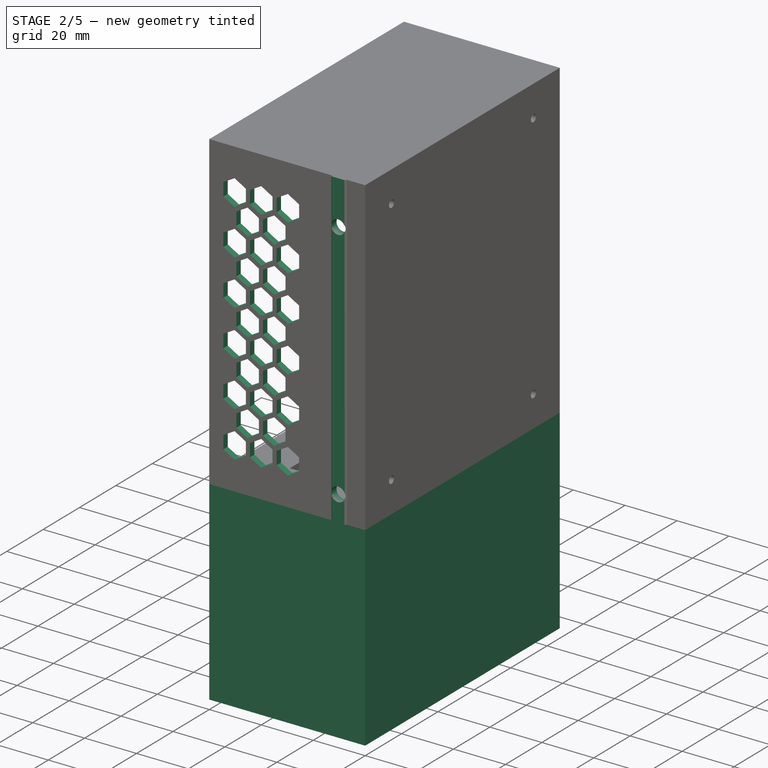
[diagram: stage 2 of 5 — iso view after this stage's code; geometry added in this stage tinted green]
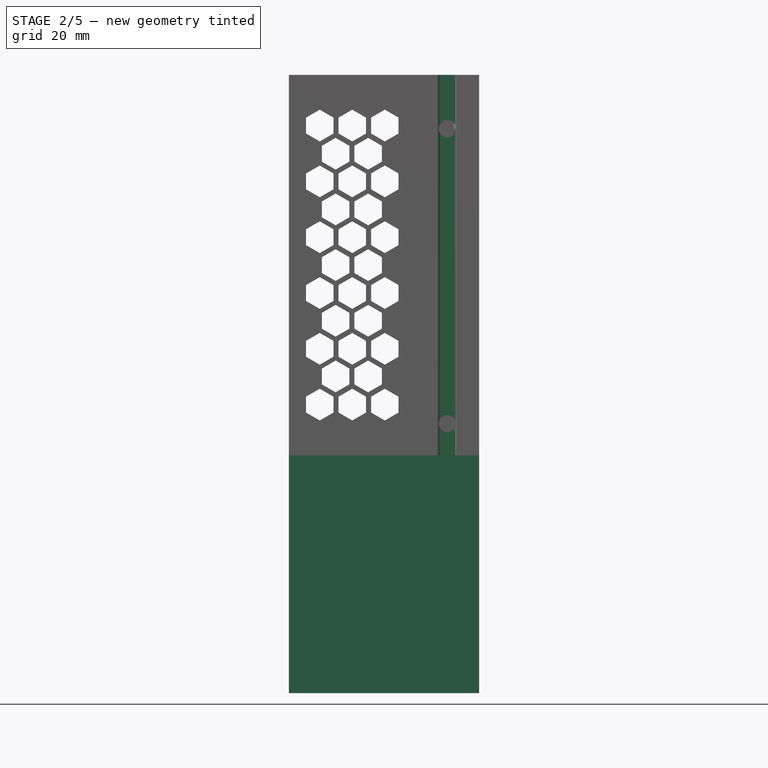
[diagram: stage 2 of 5 — front view after this stage's code; geometry added in this stage tinted green]
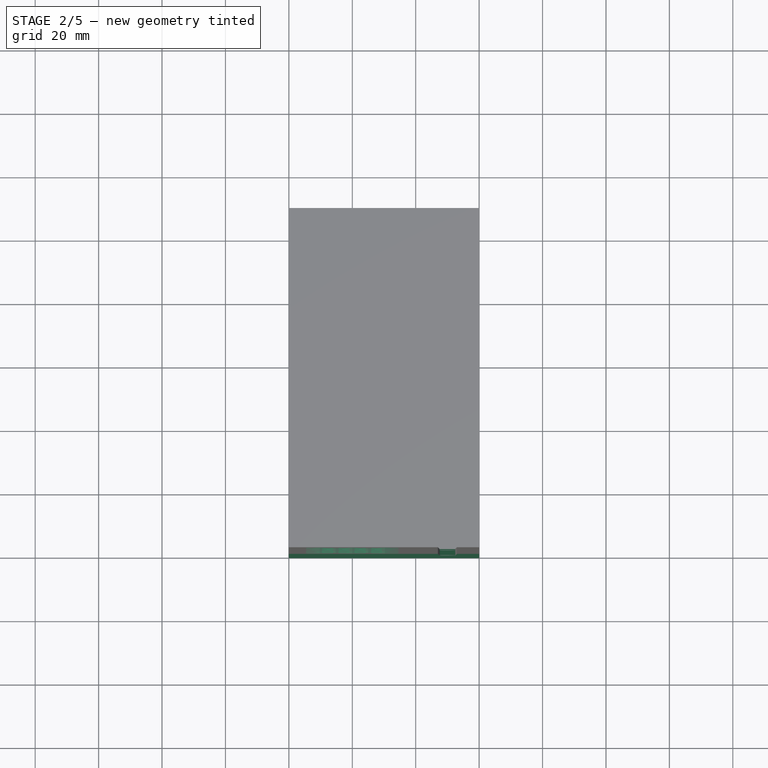
[diagram: stage 2 of 5 — top view after this stage's code; geometry added in this stage tinted green]
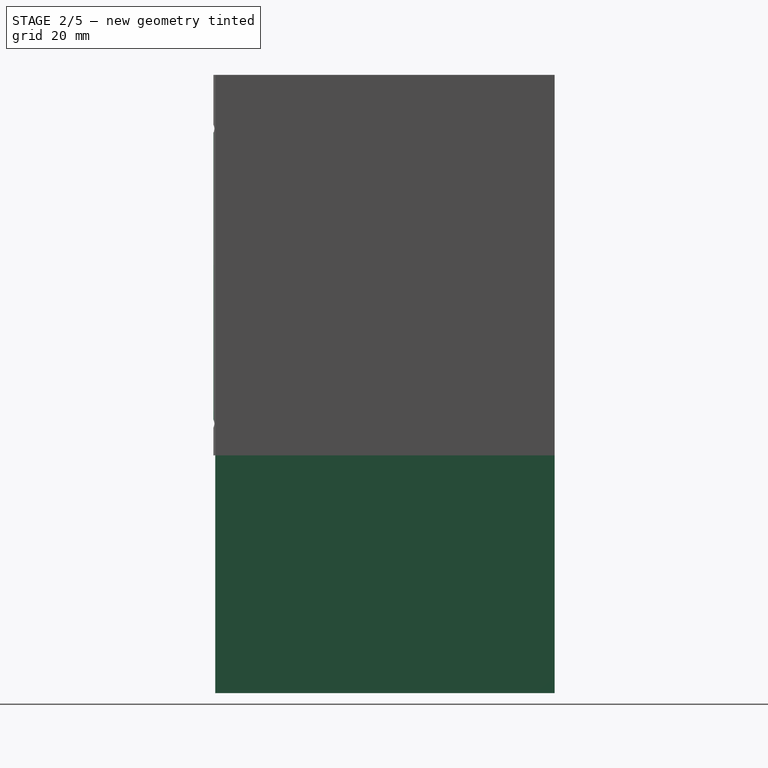
[diagram: stage 2 of 5 — right view after this stage's code; geometry added in this stage tinted green]
FEATURE [PartDesign::Body] Body002  label="Controller-CaseCover"
  Group = -> [Sketch016,Pad005,Sketch029,Sketch030,Pocket017,MultiTransform002,LinearPattern004,LinearPattern005,Pocket018,MultiTransform003,LinearPattern006,LinearPattern007]
  Origin = -> Origin002
  Tip = -> MultiTransform003
FEATURE [Sketcher::SketchObject] Sketch031
  FullyConstrained = false
  MapMode = 5
  Placement = pos=(0,0,0) rot=(1,0,0;1.5708rad)
  Support = -> [XZ_Plane]
  sketch-geometry (23):
    g0: LineSegment StartX=-50.2603 StartY=99 StartZ=0 EndX=-45.9301 EndY=101.5 EndZ=0
    g1: LineSegment StartX=-45.9301 StartY=101.5 StartZ=0 EndX=-45.9301 EndY=106.5 EndZ=0
    g2: LineSegment StartX=-45.9301 StartY=106.5 StartZ=0 EndX=-50.2603 EndY=109 EndZ=0
    g3: LineSegment StartX=-50.2603 StartY=109 StartZ=0 EndX=-54.5904 EndY=106.5 EndZ=0
    g4: LineSegment StartX=-54.5904 StartY=106.5 StartZ=0 EndX=-54.5904 EndY=101.5 EndZ=0
    g5: LineSegment StartX=-54.5904 StartY=101.5 StartZ=0 EndX=-50.2603 EndY=99 EndZ=0
    g6: Circle CenterX=-50.2603 CenterY=104 CenterZ=0 NormalX=0 NormalY=0 NormalZ=1 AngleXU=0 Radius=5
    g7: LineSegment StartX=-35.6699 StartY=101.5 StartZ=0 EndX=-35.6699 EndY=106.5 EndZ=0
    g8: LineSegment StartX=-35.6699 StartY=106.5 StartZ=0 EndX=-40 EndY=109 EndZ=0
    g9: LineSegment StartX=-40 StartY=109 StartZ=0 EndX=-44.3301 EndY=106.5 EndZ=0
    g10: LineSegment StartX=-44.3301 StartY=106.5 StartZ=0 EndX=-44.3301 EndY=101.5 EndZ=0
    g11: LineSegment StartX=-44.3301 StartY=101.5 StartZ=0 EndX=-40 EndY=99 EndZ=0
    g12: LineSegment StartX=-40 StartY=99 StartZ=0 EndX=-35.6699 EndY=101.5 EndZ=0
    g13: Circle CenterX=-40 CenterY=104 CenterZ=0 NormalX=0 NormalY=0 NormalZ=1 AngleXU=0 Radius=5
    g14: LineSegment StartX=-29.7397 StartY=99 StartZ=0 EndX=-25.4096 EndY=101.5 EndZ=0
    g15: LineSegment StartX=-25.4096 StartY=101.5 StartZ=0 EndX=-25.4096 EndY=106.5 EndZ=0
    g16: LineSegment StartX=-25.4096 StartY=106.5 StartZ=0 EndX=-29.7397 EndY=109 EndZ=0
    g17: LineSegment StartX=-29.7397 StartY=109 StartZ=0 EndX=-34.0699 EndY=106.5 EndZ=0
    g18: LineSegment StartX=-34.0699 StartY=106.5 StartZ=0 EndX=-34.0699 EndY=101.5 EndZ=0
    g19: LineSegment StartX=-34.0699 StartY=101.5 StartZ=0 EndX=-29.7397 EndY=99 EndZ=0
    g20: Circle CenterX=-29.7397 CenterY=104 CenterZ=0 NormalX=0 NormalY=0 NormalZ=1 AngleXU=0 Radius=5
    g21: LineSegment StartX=-50.2603 StartY=104 StartZ=0 EndX=-40 EndY=104 EndZ=0
    g22: LineSegment StartX=-40 StartY=104 StartZ=0 EndX=-29.7397 EndY=104 EndZ=0
  constraints (55):
    c: Coincident(g1,g2)
    c: Coincident(g2,g3)
    c: Coincident(g3,g4)
    c: Equal(g0, g1-g5) x5
    c: PointOnObject(g0,g6)
    c: PointOnObject(g1,g6)
    c: PointOnObject(g2,g6)
    c: PointOnObject(g3,g6)
    c: PointOnObject(g4,g6)
    c: PointOnObject(g5,g6)
    c: Vertical(g4)
    c: DistanceY(g-1,g6) = 104
    c: Coincident(g5,g4)
    c: Coincident(g5,g0)
    c: Coincident(g0,g1)
    c: Diameter(g6) = 10
    c: Coincident(g7,g8)
    c: Coincident(g8,g9)
    c: Coincident(g9,g10)
    c: Coincident(g10,g11)
    c: Coincident(g11,g12)
    c: Coincident(g12,g7)
    c: Equal(g7, g8-g12) x5
    c: PointOnObject(g7,g13)
    c: PointOnObject(g8,g13)
    c: PointOnObject(g9,g13)
    c: PointOnObject(g10,g13)
    c: PointOnObject(g11,g13)
    c: PointOnObject(g12,g13)
    c: Coincident(g14,g15)
    c: Coincident(g15,g16)
    c: Coincident(g16,g17)
    c: Coincident(g17,g18)
    c: Coincident(g18,g19)
    c: Coincident(g19,g14)
    c: Equal(g14, g15-g19) x5
    c: PointOnObject(g14,g20)
    c: PointOnObject(g15,g20)
    c: PointOnObject(g16,g20)
    c: PointOnObject(g17,g20)
    c: PointOnObject(g18,g20)
    c: PointOnObject(g19,g20)
    c: Equal(g6,g13)
    c: Equal(g13,g20)
    c: Coincident(g21,g6)
    c: Coincident(g21,g13)
    c: Horizontal(g21)
    c: Coincident(g22,g13)
    c: Coincident(g22,g20)
    c: Horizontal(g22)
    c: Equal(g22,g21)
    c: DistanceX(g1,g9) = 1.6
    c: Vertical(g10)
    c: Vertical(g18)
    c: DistanceX(g13,g-1) = 40
FEATURE [Sketcher::SketchObject] Sketch032
  FullyConstrained = false
  MapMode = 5
  Placement = pos=(0,0,0) rot=(1,0,0;1.5708rad)
  Support = -> [XZ_Plane]
  sketch-geometry (15):
    g0: LineSegment StartX=-45.2603 StartY=90.114 StartZ=0 EndX=-40.9301 EndY=92.614 EndZ=0
    g1: LineSegment StartX=-40.9301 StartY=92.614 StartZ=0 EndX=-40.9301 EndY=97.614 EndZ=0
    g2: LineSegment StartX=-40.9301 StartY=97.614 StartZ=0 EndX=-45.2603 EndY=100.114 EndZ=0
    g3: LineSegment StartX=-45.2603 StartY=100.114 StartZ=0 EndX=-49.5904 EndY=97.614 EndZ=0
    g4: LineSegment StartX=-49.5904 StartY=97.614 StartZ=0 EndX=-49.5904 EndY=92.614 EndZ=0
    g5: LineSegment StartX=-49.5904 StartY=92.614 StartZ=0 EndX=-45.2603 EndY=90.114 EndZ=0
    g6: Circle CenterX=-45.2603 CenterY=95.114 CenterZ=0 NormalX=0 NormalY=0 NormalZ=1 AngleXU=0 Radius=5
    g7: LineSegment StartX=-30.6699 StartY=92.614 StartZ=0 EndX=-30.6699 EndY=97.614 EndZ=0
    g8: LineSegment StartX=-30.6699 StartY=97.614 StartZ=0 EndX=-35 EndY=100.114 EndZ=0
    g9: LineSegment StartX=-35 StartY=100.114 StartZ=0 EndX=-39.3301 EndY=97.614 EndZ=0
    g10: LineSegment StartX=-39.3301 StartY=97.614 StartZ=0 EndX=-39.3301 EndY=92.614 EndZ=0
    g11: LineSegment StartX=-39.3301 StartY=92.614 StartZ=0 EndX=-35 EndY=90.114 EndZ=0
    g12: LineSegment StartX=-35 StartY=90.114 StartZ=0 EndX=-30.6699 EndY=92.614 EndZ=0
    g13: Circle CenterX=-35 CenterY=95.114 CenterZ=0 NormalX=0 NormalY=0 NormalZ=1 AngleXU=0 Radius=5
    g14: LineSegment StartX=-45.2603 StartY=95.114 StartZ=0 EndX=-35 EndY=95.114 EndZ=0
  constraints (36):
    c: Coincident(g1,g2)
    c: Coincident(g2,g3)
    c: Coincident(g3,g4)
    c: Equal(g0, g1-g5) x5
    c: PointOnObject(g0,g6)
    c: PointOnObject(g1,g6)
    c: PointOnObject(g2,g6)
    c: PointOnObject(g3,g6)
    c: PointOnObject(g4,g6)
    c: PointOnObject(g5,g6)
    c: Vertical(g4)
    c: DistanceY(g-1,g6) = 95.114
    c: Coincident(g5,g4)
    c: Coincident(g5,g0)
    c: Coincident(g0,g1)
    c: Diameter(g6) = 10
    c: Coincident(g7,g8)
    c: Coincident(g8,g9)
    c: Coincident(g9,g10)
    c: Coincident(g10,g11)
    c: Coincident(g11,g12)
    c: Coincident(g12,g7)
    c: Equal(g7, g8-g12) x5
    c: PointOnObject(g7,g13)
    c: PointOnObject(g8,g13)
    c: PointOnObject(g9,g13)
    c: PointOnObject(g10,g13)
    c: PointOnObject(g11,g13)
    c: PointOnObject(g12,g13)
    c: Equal(g6,g13)
    c: Coincident(g14,g6)
    c: Coincident(g14,g13)
    c: Horizontal(g14)
    c: DistanceX(g1,g9) = 1.6
    c: Vertical(g10)
    c: DistanceX(g13,g-1) = 35
FEATURE [Part::Feature] Part__Feature142  label="Mosfet HA210N06 210A - Module1"
  Placement = pos=(-23,79,-40) rot=(0,0,1;1.5708rad)
  shape: bbox 26.8 x 50 x 60 mm, 1644 faces, 67 solids (baked)
FEATURE [Part::Feature] Compound001  label="Anet A8 Board"
  Placement = pos=(29.2,140.2,43.17) rot=(0.57735,-0.57735,0.57735;2.0944rad)
  shape: bbox 17.5 x 95 x 102.4 mm, 7566 faces, 539 solids (baked)
FEATURE [App::DocumentObjectGroup] Group  label="ElectronicParts"
  Group = -> [Part__Feature002,Part__Feature001,Part__Feature,Body001,Compound001]
FEATURE [Part::Feature] Part__Feature143  label="Mosfet HA210N06 210A - Module2"
  Placement = pos=(-23,28,-40) rot=(0,0,1;1.5708rad)
  shape: bbox 26.8 x 50 x 60 mm, 1644 faces, 67 solids (baked)
FEATURE [Sketcher::SketchObject] Sketch033
  AttachmentOffset = pos=(0,0,0.4) rot=(0,0,1;0rad)
  FullyConstrained = true
  MapMode = 5
  Placement = pos=(0,0,0.4) rot=(0,0,1;0rad)
  Support = -> [XY_Plane]
  expr: Constraints[2] = Sketch.Constraints.width / 2
  sketch-geometry (51):
    g0: LineSegment StartX=0 StartY=53.5 StartZ=0 EndX=-23 EndY=53.5 EndZ=0
    g1: ArcOfCircle CenterX=-38 CenterY=8.5 CenterZ=0 NormalX=0 NormalY=0 NormalZ=1 AngleXU=0 Radius=4.5 StartAngle=1.5708 EndAngle=4.71239
    g2: ArcOfCircle CenterX=-23 CenterY=8.5 CenterZ=0 NormalX=0 NormalY=0 NormalZ=1 AngleXU=0 Radius=4.5 StartAngle=4.71239 EndAngle=7.85398
    g3: LineSegment StartX=-38 StartY=4 StartZ=0 EndX=-23 EndY=4 EndZ=0
    g4: LineSegment StartX=-38 StartY=13 StartZ=0 EndX=-23 EndY=13 EndZ=0
    g5: ArcOfCircle CenterX=-38 CenterY=98.5 CenterZ=0 NormalX=0 NormalY=0 NormalZ=1 AngleXU=0 Radius=4.5 StartAngle=1.5708 EndAngle=4.71239
    g6: ArcOfCircle CenterX=-23 CenterY=98.5 CenterZ=0 NormalX=0 NormalY=0 NormalZ=1 AngleXU=0 Radius=4.5 StartAngle=4.71239 EndAngle=7.85398
    g7: LineSegment StartX=-38 StartY=94 StartZ=0 EndX=-23 EndY=94 EndZ=0
    g8: LineSegment StartX=-38 StartY=103 StartZ=0 EndX=-23 EndY=103 EndZ=0
    g9: LineSegment StartX=-42.5 StartY=98.5 StartZ=0 EndX=-18.5 EndY=98.5 EndZ=0
    g10: ArcOfCircle CenterX=-18.5754 CenterY=9.32006 CenterZ=0 NormalX=0 NormalY=0 NormalZ=1 AngleXU=0 Radius=0.5 StartAngle=3.32485 EndAngle=6.46644
    g11: ArcOfCircle CenterX=-18.5754 CenterY=7.67994 CenterZ=0 NormalX=0 NormalY=0 NormalZ=1 AngleXU=0 Radius=0.5 StartAngle=6.09993 EndAngle=9.24152
    g12: ArcOfCircle CenterX=-42.4246 CenterY=9.32006 CenterZ=0 NormalX=0 NormalY=0 NormalZ=1 AngleXU=0 Radius=0.5 StartAngle=2.95833 EndAngle=6.09993
    g13: ArcOfCircle CenterX=-42.4246 CenterY=7.67994 CenterZ=0 NormalX=0 NormalY=0 NormalZ=1 AngleXU=0 Radius=0.5 StartAngle=0.183259 EndAngle=3.32485
    g14: LineSegment StartX=-38 StartY=4.5 StartZ=0 EndX=-23 EndY=4.5 EndZ=0
    g15: LineSegment StartX=-38 StartY=3.5 StartZ=0 EndX=-23 EndY=3.5 EndZ=0
    g16: LineSegment StartX=-38 StartY=12.5 StartZ=0 EndX=-23 EndY=12.5 EndZ=0
    g17: LineSegment StartX=-38 StartY=13.5 StartZ=0 EndX=-23 EndY=13.5 EndZ=0
    g18: ArcOfCircle CenterX=-38 CenterY=8.5 CenterZ=0 NormalX=0 NormalY=0 NormalZ=1 AngleXU=0 Radius=4 StartAngle=1.5708 EndAngle=2.95833
    g19: ArcOfCircle CenterX=-38 CenterY=8.5 CenterZ=0 NormalX=0 NormalY=0 NormalZ=1 AngleXU=0 Radius=5 StartAngle=1.5708 EndAngle=2.95833
    g20: ArcOfCircle CenterX=-38 CenterY=8.5 CenterZ=0 NormalX=0 NormalY=0 NormalZ=1 AngleXU=0 Radius=4 StartAngle=3.32485 EndAngle=4.71239
    g21: ArcOfCircle CenterX=-38 CenterY=8.5 CenterZ=0 NormalX=0 NormalY=0 NormalZ=1 AngleXU=0 Radius=5 StartAngle=3.32485 EndAngle=4.71239
    g22: ArcOfCircle CenterX=-23 CenterY=8.5 CenterZ=0 NormalX=0 NormalY=0 NormalZ=1 AngleXU=0 Radius=4 StartAngle=0.18326 EndAngle=1.5708
    g23: ArcOfCircle CenterX=-23 CenterY=8.5 CenterZ=0 NormalX=0 NormalY=0 NormalZ=1 AngleXU=0 Radius=5 StartAngle=0.18326 EndAngle=1.5708
    g24: ArcOfCircle CenterX=-23 CenterY=8.5 CenterZ=0 NormalX=0 NormalY=0 NormalZ=1 AngleXU=0 Radius=4 StartAngle=4.71239 EndAngle=6.09993
    g25: ArcOfCircle CenterX=-23 CenterY=8.5 CenterZ=0 NormalX=0 NormalY=0 NormalZ=1 AngleXU=0 Radius=5 StartAngle=4.71239 EndAngle=6.09993
    g26: LineSegment StartX=-38 StartY=8.5 StartZ=0 EndX=-42.4246 EndY=9.32006 EndZ=0
    g27: LineSegment StartX=-38 StartY=8.5 StartZ=0 EndX=-42.4246 EndY=7.67994 EndZ=0
    g28: LineSegment StartX=-23 StartY=8.5 StartZ=0 EndX=-18.5754 EndY=9.32006 EndZ=0
    g29: LineSegment StartX=-23 StartY=8.5 StartZ=0 EndX=-18.5754 EndY=7.67994 EndZ=0
    g30: LineSegment StartX=-42.5 StartY=8.5 StartZ=0 EndX=-18.5 EndY=8.5 EndZ=0
    g31: LineSegment StartX=-23 StartY=98.5 StartZ=0 EndX=-18.5754 EndY=99.3201 EndZ=0
    g32: LineSegment StartX=-23 StartY=98.5 StartZ=0 EndX=-18.5754 EndY=97.6799 EndZ=0
    g33: LineSegment StartX=-38 StartY=98.5 StartZ=0 EndX=-42.4246 EndY=99.3201 EndZ=0
    g34: LineSegment StartX=-38 StartY=98.5 StartZ=0 EndX=-42.4246 EndY=97.6799 EndZ=0
    g35: ArcOfCircle CenterX=-42.4246 CenterY=99.3201 CenterZ=0 NormalX=0 NormalY=0 NormalZ=1 AngleXU=0 Radius=0.5 StartAngle=2.95834 EndAngle=6.09993
    g36: ArcOfCircle CenterX=-38 CenterY=98.5 CenterZ=0 NormalX=0 NormalY=0 NormalZ=1 AngleXU=0 Radius=4 StartAngle=1.5708 EndAngle=2.95833
    g37: LineSegment StartX=-38 StartY=102.5 StartZ=0 EndX=-23 EndY=102.5 EndZ=0
    g38: ArcOfCircle CenterX=-23 CenterY=98.5 CenterZ=0 NormalX=0 NormalY=0 NormalZ=1 AngleXU=0 Radius=4 StartAngle=0.18326 EndAngle=1.5708
    g39: ArcOfCircle CenterX=-18.5754 CenterY=99.3201 CenterZ=0 NormalX=0 NormalY=0 NormalZ=1 AngleXU=0 Radius=0.5 StartAngle=3.32485 EndAngle=6.46646
    g40: ArcOfCircle CenterX=-23 CenterY=98.5 CenterZ=0 NormalX=0 NormalY=0 NormalZ=1 AngleXU=0 Radius=5 StartAngle=0.183261 EndAngle=1.5708
    g41: LineSegment StartX=-23 StartY=103.5 StartZ=0 EndX=-38 EndY=103.5 EndZ=0
    g42: ArcOfCircle CenterX=-38 CenterY=98.5 CenterZ=0 NormalX=0 NormalY=0 NormalZ=1 AngleXU=0 Radius=5 StartAngle=1.5708 EndAngle=2.95833
    g43: ArcOfCircle CenterX=-42.4246 CenterY=97.6799 CenterZ=0 NormalX=0 NormalY=0 NormalZ=1 AngleXU=0 Radius=0.5 StartAngle=0.183259 EndAngle=3.32485
    g44: ArcOfCircle CenterX=-38 CenterY=98.5 CenterZ=0 NormalX=0 NormalY=0 NormalZ=1 AngleXU=0 Radius=4 StartAngle=3.32485 EndAngle=4.71239
    g45: LineSegment StartX=-38 StartY=94.5 StartZ=0 EndX=-23 EndY=94.5 EndZ=0
    g46: LineSegment StartX=-38 StartY=93.5 StartZ=0 EndX=-23 EndY=93.5 EndZ=0
    g47: ArcOfCircle CenterX=-23 CenterY=98.5 CenterZ=0 NormalX=0 NormalY=0 NormalZ=1 AngleXU=0 Radius=4 StartAngle=4.71239 EndAngle=6.09993
    g48: ArcOfCircle CenterX=-18.5754 CenterY=97.6799 CenterZ=0 NormalX=0 NormalY=0 NormalZ=1 AngleXU=0 Radius=0.5 StartAngle=6.09993 EndAngle=9.24152
    g49: ArcOfCircle CenterX=-23 CenterY=98.5 CenterZ=0 NormalX=0 NormalY=0 NormalZ=1 AngleXU=0 Radius=5 StartAngle=4.71239 EndAngle=6.09993
    g50: ArcOfCircle CenterX=-38 CenterY=98.5 CenterZ=0 NormalX=0 NormalY=0 NormalZ=1 AngleXU=0 Radius=5 StartAngle=3.32485 EndAngle=4.71239
  constraints (147):
    c: PointOnObject(g0,g-2)
    c: Horizontal(g0)
    c: DistanceY(g-1,g0) = 53.5
    c: Tangent(g1,g4) = 1.5708
    c: Tangent(g1,g3) = -1.5708
    c: Tangent(g3,g2) = -1.5708
    c: Tangent(g4,g2) = 1.5708
    c: Horizontal(g3)
    c: Equal(g1,g2)
    c: Tangent(g5,g8) = 1.5708
    c: Tangent(g5,g7) = -1.5708
    c: Tangent(g7,g6) = -1.5708
    c: Tangent(g8,g6) = 1.5708
    c: Horizontal(g7)
    c: Equal(g5,g6)
    c: DistanceY(g5,g5) = 9
    c: DistanceX(g8,g8) = 15
    c: Equal(g8,g3)
    c: Equal(g5,g1)
    c: PointOnObject(g9,g5)
    c: PointOnObject(g9,g6)
    c: PointOnObject(g5,g9)
    c: PointOnObject(g6,g9)
    c: DistanceX(g2,g-1) = 23
    c: PointOnObject(g10,g2)
    c: PointOnObject(g12,g1)
    c: Horizontal(g14)
    c: Horizontal(g15)
    c: Horizontal(g16)
    c: Horizontal(g17)
    c: Coincident(g18,g1)
    c: Coincident(g18,g16)
    c: Coincident(g18,g12)
    c: Coincident(g19,g18)
    c: Coincident(g19,g17)
    c: Coincident(g19,g12)
    c: Coincident(g20,g18)
    c: Coincident(g20,g14)
    c: Coincident(g20,g13)
    c: Coincident(g21,g18)
    c: Coincident(g21,g15)
    c: Coincident(g21,g13)
    c: Coincident(g22,g2)
    c: Coincident(g22,g16)
    c: Coincident(g22,g10)
    c: Coincident(g23,g22)
    c: Coincident(g23,g17)
    c: Coincident(g23,g10)
    c: Coincident(g24,g22)
    c: Coincident(g24,g11)
    c: Coincident(g24,g14)
    c: Coincident(g25,g22)
    c: Coincident(g25,g11)
    c: Coincident(g25,g15)
    c: Coincident(g26,g18)
    c: Coincident(g26,g12)
    c: Coincident(g27,g18)
    c: Coincident(g27,g13)
    c: Coincident(g28,g22)
    c: Coincident(g28,g10)
    c: Coincident(g29,g22)
    c: Coincident(g29,g11)
    c: Tangent(g19,g12)
    c: Tangent(g12,g18)
    c: Tangent(g18,g16)
    c: Tangent(g22,g10)
    c: Tangent(g10,g23)
    c: Tangent(g23,g17)
    c: Tangent(g20,g13)
    c: Tangent(g13,g21)
    c: Tangent(g21,g15)
    c: Tangent(g15,g25)
    c: Tangent(g25,g11)
    c: Tangent(g11,g24)
    c: Tangent(g24,g14)
    c: Equal(g10,g13)
    c: Angle(g29,g28) = 0.366519
    c: DistanceY(g15,g14) = 1
    c: Angle(g26,g27) = 0.366519
    c: PointOnObject(g11,g2)
    c: PointOnObject(g30,g1)
    c: PointOnObject(g30,g2)
    c: PointOnObject(g18,g30)
    c: Symmetric(g13,g12,g30)
    c: Symmetric(g11,g10,g30)
    c: DistanceY(g30,g9) = 90
    c: Symmetric(g30,g9,g0)
    c: Tangent(g17,g19)
    c: Coincident(g31,g6)
    c: PointOnObject(g31,g6)
    c: Coincident(g32,g6)
    c: Coincident(g33,g5)
    c: PointOnObject(g33,g5)
    c: Coincident(g34,g5)
    c: Symmetric(g34,g33,g9)
    c: Symmetric(g32,g31,g9)
    c: Angle(g32,g31) = 0.366519
    c: Angle(g33,g34) = 0.366519
    c: Coincident(g35,g33)
    c: Coincident(g36,g5)
    c: Coincident(g36,g35)
    c: Coincident(g37,g36)
    c: Horizontal(g37)
    c: Coincident(g38,g6)
    c: Coincident(g38,g37)
    c: Coincident(g39,g31)
    c: Coincident(g39,g38)
    c: Coincident(g40,g38)
    c: Coincident(g40,g39)
    c: Coincident(g41,g40)
    c: Horizontal(g41)
    c: Coincident(g42,g36)
    c: Coincident(g42,g41)
    c: Coincident(g42,g35)
    c: Coincident(g43,g34)
    c: Coincident(g44,g36)
    c: Coincident(g44,g43)
    c: Coincident(g45,g44)
    c: Horizontal(g45)
    c: Horizontal(g46)
    c: Coincident(g47,g38)
    c: Coincident(g47,g45)
    c: Coincident(g48,g32)
    c: Coincident(g48,g47)
    c: Coincident(g49,g38)
    c: Coincident(g49,g48)
    c: Coincident(g49,g46)
    c: Coincident(g50,g36)
    c: Coincident(g50,g46)
    c: Coincident(g50,g43)
    c: Equal(g39,g43)
    c: DistanceY(g46,g44) = 1
    c: Tangent(g42,g35)
    c: Tangent(g35,g36)
    c: Tangent(g36,g37)
    c: Tangent(g37,g38)
    c: Tangent(g38,g39)
    c: Tangent(g39,g40)
    c: Tangent(g40,g41)
    c: Tangent(g44,g43)
    c: Tangent(g43,g50)
    c: Tangent(g50,g46)
    c: Tangent(g46,g49)
    c: Tangent(g49,g48)
    c: Tangent(g48,g47)
    c: Tangent(g45,g44)
    c: Vertical(g17,g0)
FEATURE [PartDesign::Pocket] Pocket021  label="PockeBottomHoles"
  AllowMultiFace = false
  BaseFeature = -> Pocket008
  Length = 3
  Length2 = 100
  Placement = pos=(0,0,0) rot=(0.57735,0.57735,0.57735;2.0944rad)
  Profile = -> Sketch033
  Reversed = true
  Type = 0
FEATURE [PartDesign::Pocket] Pocket009  label="PocketTopHoles-USB"
  AllowMultiFace = false
  BaseFeature = -> Pocket021
  Length = 3
  Length2 = 100
  Placement = pos=(0,0,0) rot=(0.57735,0.57735,0.57735;2.0944rad)
  Profile = -> Sketch013
  Type = 0
FEATURE [PartDesign::Pad] Pad004  label="PadProfilGuide"
  AllowMultiFace = false
  BaseFeature = -> Pocket009
  Direction = (1,1,1)
  Length = 120
  Length2 = 100
  Placement = pos=(0,0,0) rot=(0.57735,0.57735,0.57735;2.0944rad)
  Profile = -> Sketch014
  Type = 0
  expr: Length = Sketch.Constraints.hight
FEATURE [PartDesign::Pocket] Pocket010  label="PocketProfilGuideBores"
  AllowMultiFace = false
  BaseFeature = -> Pad004
  Length = 5
  Length2 = 100
  Midplane = true
  Placement = pos=(0,0,0) rot=(0.57735,0.57735,0.57735;2.0944rad)
  Profile = -> Sketch015
  Type = 0
FEATURE [App::DocumentObjectGroup] Group002  label="MOSFET"
  Group = -> [Part__Feature142,Part__Feature143]
FEATURE [Sketcher::SketchObject] Sketch034
  FullyConstrained = false
  MapMode = 5
  Placement = pos=(0,0,0) rot=(0.57735,0.57735,0.57735;2.0944rad)
  Support = -> [YZ_Plane005]
  expr: Constraints[9] = Sketch.Constraints.width
  sketch-geometry (4):
    g0: LineSegment StartX=0 StartY=0 StartZ=0 EndX=107 EndY=0 EndZ=0
    g1: LineSegment StartX=107 StartY=0 StartZ=0 EndX=107 EndY=-75 EndZ=0
    g2: LineSegment StartX=107 StartY=-75 StartZ=0 EndX=0 EndY=-75 EndZ=0
    g3: LineSegment StartX=0 StartY=-75 StartZ=0 EndX=0 EndY=0 EndZ=0
  constraints (11):
    c: Coincident(g0,g1)
    c: Coincident(g1,g2)
    c: Coincident(g2,g3)
    c: Coincident(g3,g0)
    c: Horizontal(g0)
    c: Horizontal(g2)
    c: Vertical(g1)
    c: Vertical(g3)
    c: Coincident(g0,g-1)
    c: DistanceX(g2,g2) = 107
    c: DistanceY(g3,g3) = 75
FEATURE [PartDesign::Pad] Pad012  label="PadOuterBox"
  AllowMultiFace = false
  Direction = (1,1,1)
  Length = 60
  Length2 = 100
  Placement = pos=(0,0,0) rot=(0.57735,0.57735,0.57735;2.0944rad)
  Profile = -> Sketch034
  Reversed = true
  Type = 0
  expr: Length = Pad.Length
FEATURE [Sketcher::SketchObject] Sketch035
  AttachmentOffset = pos=(0,0,-60) rot=(0,0,1;0rad)
  FullyConstrained = false
  MapMode = 5
  Placement = pos=(-60,1.33e-14,-1.33e-14) rot=(0.57735,0.57735,0.57735;2.0944rad)
  Support = -> [YZ_Plane005]
  expr: Constraints[73] = Sketch034.Constraints[10] - .Constraints.wall_thickness
  expr: Constraints[72] = Sketch034.Constraints[10] / 2
  expr: Constraints[70] = .Constraints.wall_thickness
  expr: .AttachmentOffset.Base.z = -<<PadOuterBox>>.Length
  expr: Constraints[53] = .Constraints.wall_thickness
  expr: Constraints[50] = Sketch034.Constraints[9] / 2
  expr: Constraints[4] = Sketch.Constraints.width
  sketch-geometry (23):
    g0: LineSegment StartX=12.4 StartY=-2.4 StartZ=0 EndX=94.6 EndY=-2.4 EndZ=0
    g1: LineSegment StartX=104.6 StartY=-12.4 StartZ=0 EndX=104.6 EndY=-62.6 EndZ=0
    g2: LineSegment StartX=94.6 StartY=-72.6 StartZ=0 EndX=12.4 EndY=-72.6 EndZ=0
    g3: LineSegment StartX=2.4 StartY=-62.6 StartZ=0 EndX=2.4 EndY=-12.4 EndZ=0
    g4: GeomPoint X=107 Y=0 Z=0
    g5: ArcOfCircle CenterX=12.4 CenterY=-5.4 CenterZ=0 NormalX=0 NormalY=0 NormalZ=1 AngleXU=0 Radius=3 StartAngle=1.5708 EndAngle=3.14159
    g6: ArcOfCircle CenterX=5.4 CenterY=-12.4 CenterZ=0 NormalX=0 NormalY=0 NormalZ=1 AngleXU=0 Radius=3 StartAngle=1.5708 EndAngle=3.14159
    g7: ArcOfCircle CenterX=5.4 CenterY=-5.4 CenterZ=0 NormalX=0 NormalY=0 NormalZ=1 AngleXU=0 Radius=4 StartAngle=4.71239 EndAngle=6.28318
    g8: ArcOfCircle CenterX=101.6 CenterY=-5.4 CenterZ=0 NormalX=0 NormalY=0 NormalZ=1 AngleXU=0 Radius=4 StartAngle=3.14159 EndAngle=4.71239
    g9: ArcOfCircle CenterX=94.6 CenterY=-5.4 CenterZ=0 NormalX=0 NormalY=0 NormalZ=1 AngleXU=0 Radius=3 StartAngle=6.28318 EndAngle=7.85398
    g10: ArcOfCircle CenterX=5.4 CenterY=-62.6 CenterZ=0 NormalX=0 NormalY=0 NormalZ=1 AngleXU=0 Radius=3 StartAngle=3.14159 EndAngle=4.71239
    g11: ArcOfCircle CenterX=12.4 CenterY=-69.6 CenterZ=0 NormalX=0 NormalY=0 NormalZ=1 AngleXU=0 Radius=3 StartAngle=3.14159 EndAngle=4.71239
    g12: ArcOfCircle CenterX=5.4 CenterY=-69.6 CenterZ=0 NormalX=0 NormalY=0 NormalZ=1 AngleXU=0 Radius=4 StartAngle=1.55262e-08 EndAngle=1.5708
    g13: ArcOfCircle CenterX=101.6 CenterY=-69.6 CenterZ=0 NormalX=0 NormalY=0 NormalZ=1 AngleXU=0 Radius=4 StartAngle=1.5708 EndAngle=3.14159
    g14: ArcOfCircle CenterX=101.6 CenterY=-62.6 CenterZ=0 NormalX=0 NormalY=0 NormalZ=1 AngleXU=0 Radius=3 StartAngle=4.71239 EndAngle=6.28319
    g15: ArcOfCircle CenterX=94.6 CenterY=-69.6 CenterZ=0 NormalX=0 NormalY=0 NormalZ=1 AngleXU=0 Radius=3 StartAngle=4.71239 EndAngle=6.28319
    g16: ArcOfCircle CenterX=101.6 CenterY=-12.4 CenterZ=0 NormalX=0 NormalY=0 NormalZ=1 AngleXU=0 Radius=3 StartAngle=6.28319 EndAngle=7.85398
    g17: LineSegment StartX=53.5 StartY=-72.6 StartZ=0 EndX=53.5 EndY=-69.6 EndZ=0
    g18: LineSegment StartX=2.4 StartY=-37.5 StartZ=0 EndX=5.4 EndY=-37.5 EndZ=0
    g19: LineSegment StartX=5.4 StartY=-5.4 StartZ=0 EndX=101.6 EndY=-5.4 EndZ=0
    g20: LineSegment StartX=101.6 StartY=-5.4 StartZ=0 EndX=101.6 EndY=-69.6 EndZ=0
    g21: LineSegment StartX=101.6 StartY=-69.6 StartZ=0 EndX=5.4 EndY=-69.6 EndZ=0
    g22: LineSegment StartX=5.4 StartY=-69.6 StartZ=0 EndX=5.4 EndY=-5.4 EndZ=0
  constraints (74):
    c: Horizontal(g0)
    c: Horizontal(g2)
    c: Vertical(g1)
    c: Vertical(g3)
    c: DistanceX(g-1,g4) = 107
    c: Coincident(g7,g5)
    c: Coincident(g7,g6)
    c: Coincident(g0,g5)
    c: Coincident(g3,g6)
    c: Tangent(g0,g5)
    c: Tangent(g5,g7)
    c: Tangent(g7,g6)
    c: Tangent(g6,g3)
    c: Coincident(g9,g8)
    c: Coincident(g0,g9)
    c: Tangent(g0,g9)
    c: Tangent(g9,g8)
    c: Coincident(g10,g3)
    c: Coincident(g11,g2)
    c: Coincident(g12,g10)
    c: Coincident(g12,g11)
    c: Tangent(g3,g10)
    c: Tangent(g10,g12)
    c: Tangent(g12,g11)
    c: Tangent(g11,g2)
    c: Coincident(g14,g13)
    c: Coincident(g14,g1)
    c: Coincident(g15,g2)
    c: Coincident(g15,g13)
    c: Tangent(g1,g14)
    c: Tangent(g14,g13)
    c: Tangent(g13,g15)
    c: Tangent(g15,g2)
    c: Coincident(g16,g8)
    c: Coincident(g16,g1)
    c: Tangent(g8,g16)
    c: Tangent(g16,g1)
    c: Radius(g7) = 4
    c: Equal(g7,g8)
    c: Equal(g7,g13)
    c: Equal(g7,g12)
    c: Equal(g15,g14)
    c: Equal(g14,g16)
    c: Equal(g16,g9)
    c: Equal(g9,g5)
    c: Equal(g5,g6)
    c: Equal(g10,g11)
    c: Vertical(g17)
    c: Symmetric(g2,g2,g17)
    c: Symmetric(g13,g12,g17)
    c: DistanceX(g-1,g17) = 53.5
    c: Symmetric(g3,g3,g18)
    c: Symmetric(g12,g7,g18)
    c: DistanceY(g0,g4) = 2.4
    c: DistanceX(g1,g4) = 2.4  'wall_thickness'
    c: Radius(g5) = 3  'CornerRadius'
    c: Coincident(g19,g20)
    c: Coincident(g20,g21)
    c: Coincident(g21,g22)
    c: Coincident(g22,g19)
    c: Horizontal(g19)
    c: Horizontal(g21)
    c: Vertical(g20)
    c: Vertical(g22)
    c: Coincident(g7,g19)
    c: Coincident(g8,g19)
    c: Coincident(g13,g20)
    c: Coincident(g12,g21)
    c: PointOnObject(g10,g22)
    c: PointOnObject(g11,g21)
    c: DistanceX(g-1,g3) = 2.4
    c: PointOnObject(g4,g-1)
    c: DistanceY(g18,g-1) = 37.5
    c: DistanceY(g2,g-1) = 72.6
FEATURE [PartDesign::Pocket] Pocket022  label="PocketBox"
  AllowMultiFace = false
  BaseFeature = -> Pad012
  Length = 57
  Length2 = 100
  Placement = pos=(0,0,0) rot=(0.57735,0.57735,0.57735;2.0944rad)
  Profile = -> Sketch035
  Reversed = true
  Type = 0
  expr: Length = <<PadOuterBox>>.Length - 3mm
FEATURE [Sketcher::SketchObject] Sketch039
  AttachmentOffset = pos=(0,0,2.4) rot=(0,1,0;3.14159rad)
  FullyConstrained = true
  MapMode = 5
  Placement = pos=(0,0,2.4) rot=(0,1,0;3.14159rad)
  Support = -> [XY_Plane]
  expr: Constraints[7] = Pad.Length - 8mm
  expr: .AttachmentOffset.Base.z = Sketch001.Constraints.wall_thickness
  expr: Constraints[3] = Sketch.Constraints.width / 2
  sketch-geometry (5):
    g0: Circle CenterX=10 CenterY=92.5 CenterZ=0 NormalX=0 NormalY=0 NormalZ=1 AngleXU=0 Radius=3
    g1: Circle CenterX=52 CenterY=53.5 CenterZ=0 NormalX=0 NormalY=0 NormalZ=1 AngleXU=0 Radius=3
    g2: Circle CenterX=10 CenterY=14.5 CenterZ=0 NormalX=0 NormalY=0 NormalZ=1 AngleXU=0 Radius=3
    g3: LineSegment StartX=0 StartY=53.5 StartZ=0 EndX=52 EndY=53.5 EndZ=0
    g4: LineSegment StartX=10 StartY=92.5 StartZ=0 EndX=10 EndY=14.5 EndZ=0
  constraints (13):
    c: PointOnObject(g3,g-2)
    c: Coincident(g3,g1)
    c: Horizontal(g3)
    c: DistanceY(g-1,g3) = 53.5
    c: Equal(g0,g2)
    c: Equal(g2,g1)
    c: Diameter(g1) = 6
    c: DistanceX(g-1,g1) = 52
    c: Coincident(g4,g0)
    c: Coincident(g4,g2)
    c: Symmetric(g2,g0,g3)
    c: DistanceY(g4,g4) = 78
    c: DistanceX(g-1,g2) = 10
FEATURE [PartDesign::Pad] Pad013
  AllowMultiFace = false
  BaseFeature = -> Pocket010
  Direction = (1,1,1)
  Length = 3
  Length2 = 100
  Placement = pos=(0,0,0) rot=(0.57735,0.57735,0.57735;2.0944rad)
  Profile = -> Sketch039
  Reversed = true
  Type = 0
FEATURE [Sketcher::SketchObject] Sketch040
  AttachmentOffset = pos=(0,0,0) rot=(0,1,0;3.14159rad)
  FullyConstrained = false
  MapMode = 5
  Placement = pos=(0,0,0) rot=(0,1,0;3.14159rad)
  Support = -> [XY_Plane]
  expr: Constraints[7] = Pad.Length - 8mm
  expr: Constraints[3] = Sketch.Constraints.width / 2
  sketch-geometry (5):
    g0: Circle CenterX=10 CenterY=92.5 CenterZ=0 NormalX=0 NormalY=0 NormalZ=1 AngleXU=0 Radius=1.4
    g1: Circle CenterX=52 CenterY=53.5 CenterZ=0 NormalX=0 NormalY=0 NormalZ=1 AngleXU=0 Radius=1.4
    g2: Circle CenterX=10 CenterY=14.5 CenterZ=0 NormalX=0 NormalY=0 NormalZ=1 AngleXU=0 Radius=1.4
    g3: LineSegment StartX=0 StartY=53.5 StartZ=0 EndX=52 EndY=53.5 EndZ=0
    g4: LineSegment StartX=10 StartY=92.5 StartZ=0 EndX=10 EndY=14.5 EndZ=0
  constraints (13):
    c: PointOnObject(g3,g-2)
    c: Coincident(g3,g1)
    c: Horizontal(g3)
    c: DistanceY(g-1,g3) = 53.5
    c: Equal(g0,g2)
    c: Equal(g2,g1)
    c: Diameter(g1) = 2.8
    c: DistanceX(g-1,g1) = 52
    c: Coincident(g4,g0)
    c: Coincident(g4,g2)
    c: Symmetric(g2,g0,g3)
    c: DistanceY(g4,g4) = 78
    c: DistanceX(g-1,g2) = 10
FEATURE [PartDesign::Pocket] Pocket026
  AllowMultiFace = false
  BaseFeature = -> Pad013
  Length = 7
  Length2 = 100
  Placement = pos=(0,0,0) rot=(0.57735,0.57735,0.57735;2.0944rad)
  Profile = -> Sketch040
  Type = 0
FEATURE [PartDesign::Pocket] Pocket019
  AllowMultiFace = false
  BaseFeature = -> Pocket026
  Length = 5
  Length2 = 100
  Placement = pos=(0,0,0) rot=(0.57735,0.57735,0.57735;2.0944rad)
  Profile = -> Sketch031
  Type = 1
FEATURE [PartDesign::LinearPattern] LinearPattern008
  BaseFeature = -> Pocket019
  Direction = -> Sketch031 [V_Axis]
  Length = 88
  Occurrences = 6
  Originals = -> [Pocket019]
  Placement = pos=(0,0,0) rot=(0.57735,0.57735,0.57735;2.0944rad)
  Reversed = true
FEATURE [PartDesign::Pocket] Pocket020
  AllowMultiFace = false
  BaseFeature = -> LinearPattern008
  Length = 5
  Length2 = 100
  Placement = pos=(0,0,0) rot=(0.57735,0.57735,0.57735;2.0944rad)
  Profile = -> Sketch032
  Type = 1
FEATURE [PartDesign::LinearPattern] LinearPattern009
  BaseFeature = -> Pocket020
  Direction = -> Sketch032 [V_Axis]
  Length = 70.228
  Occurrences = 5
  Originals = -> [Pocket020]
  Placement = pos=(0,0,0) rot=(0.57735,0.57735,0.57735;2.0944rad)
  Reversed = true
FEATURE [PartDesign::Body] Body005  label="MOSFET-Case"
  Group = -> [Sketch034,Pad012,Sketch035,Pocket022,Sketch036,Pocket023,Sketch037,Pocket024,Sketch038,Pocket025,Sketch041,Sketch042,Sketch047,Pad015,Sketch048,Pocket032,Pad014,Sketch043,Pocket028,Pad016,Sketch050,Hole,Pocket027,Sketch044,Pocket029,Sketch045,Pocket030,LinearPattern010,Sketch046,Pocket031,LinearPattern011,Sketch049,Chamfer]
  Origin = -> Origin005
  Tip = -> Chamfer
FEATURE [PartDesign::Chamfer] Chamfer001
  Angle = 45
  Base = -> LinearPattern009 [Edge1285,Edge1309,Edge1286,Edge1481,Edge1291,Edge1290,Edge1272]
  BaseFeature = -> LinearPattern009
  ChamferType = 1
  FlipDirection = false
  Placement = pos=(0,0,0) rot=(0.57735,0.57735,0.57735;2.0944rad)
  Refine = true
  Size = 2
  Size2 = 2.99
  SupportTransform = false
FEATURE [PartDesign::Chamfer] Chamfer002
  Angle = 45
  Base = -> Chamfer001 [Edge625,Edge657,Edge666,Edge642]
  BaseFeature = -> Chamfer001
  ChamferType = 1
  FlipDirection = false
  Placement = pos=(0,0,0) rot=(0.57735,0.57735,0.57735;2.0944rad)
  Refine = true
  Size = 2
  Size2 = 4
  SupportTransform = false
FEATURE [PartDesign::Body] Body  label="Controller-Case"
  Group = -> [Sketch,Pad,Sketch001,Pocket,Sketch002,Pocket001,Sketch003,Pocket002,Sketch004,Pocket003,Sketch005,Pad001,Sketch006,Pocket004,Sketch007,Pad002,Sketch008,Pocket005,Sketch009,Sketch010,Pad003,Pocket006,Sketch011,Pocket007,Sketch012,Pocket008,Sketch013,Sketch033,Pocket021,Pocket009,Sketch014,Pad004,Sketch015,Pocket010,Sketch031,Sketch039,Pad013,Sketch040,Pocket026,Pocket019,LinearPattern008,Sketch032,+4 more]
  Origin = -> Origin
  Tip = -> Chamfer002
FEATURE [Part::Feature] Body005001  label="MOSFET-Case001"
  shape: bbox 60 x 107.6 x 75 mm, 309 faces (baked)
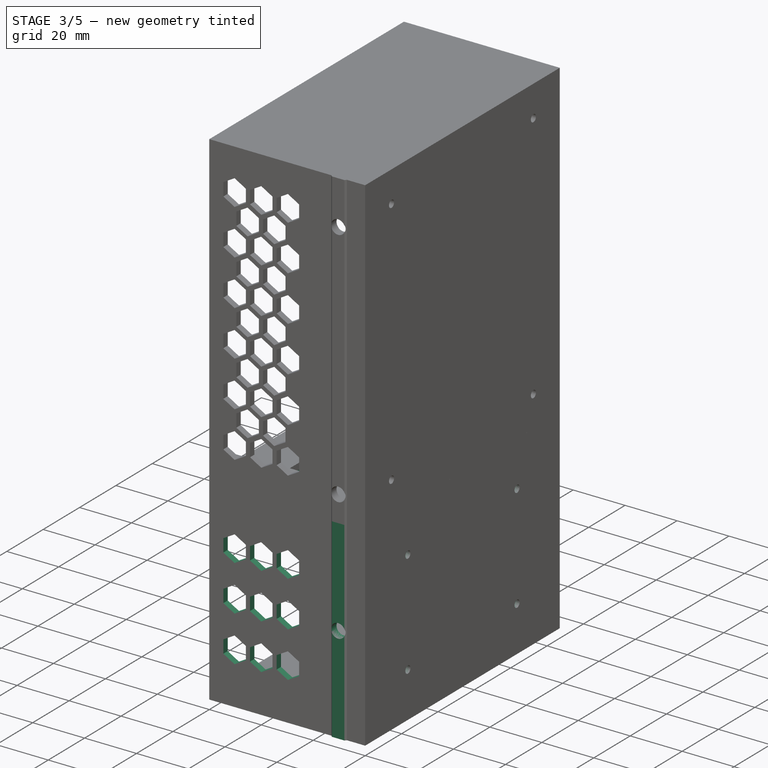
[diagram: stage 3 of 5 — iso view after this stage's code; geometry added in this stage tinted green]
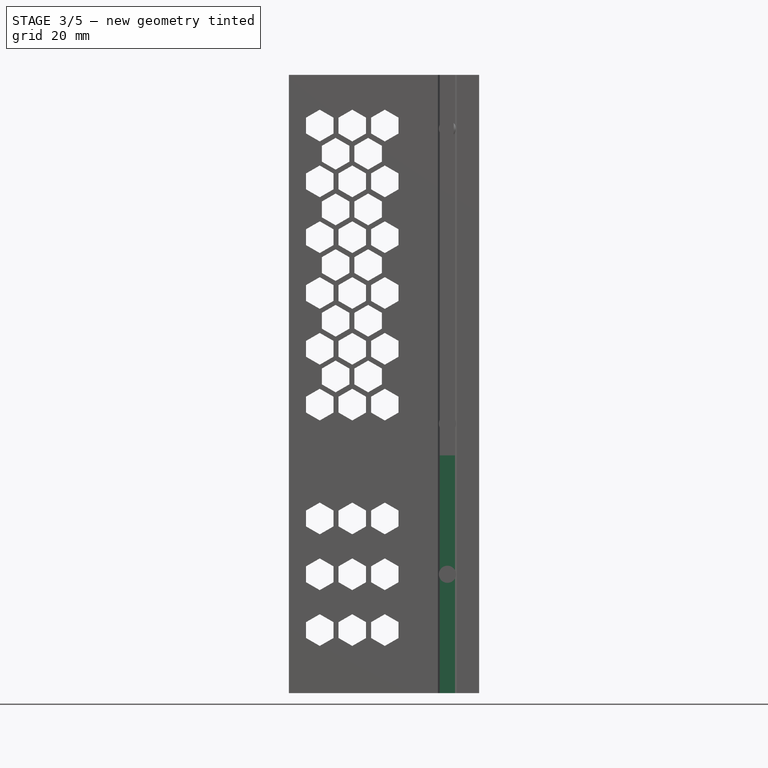
[diagram: stage 3 of 5 — front view after this stage's code; geometry added in this stage tinted green]
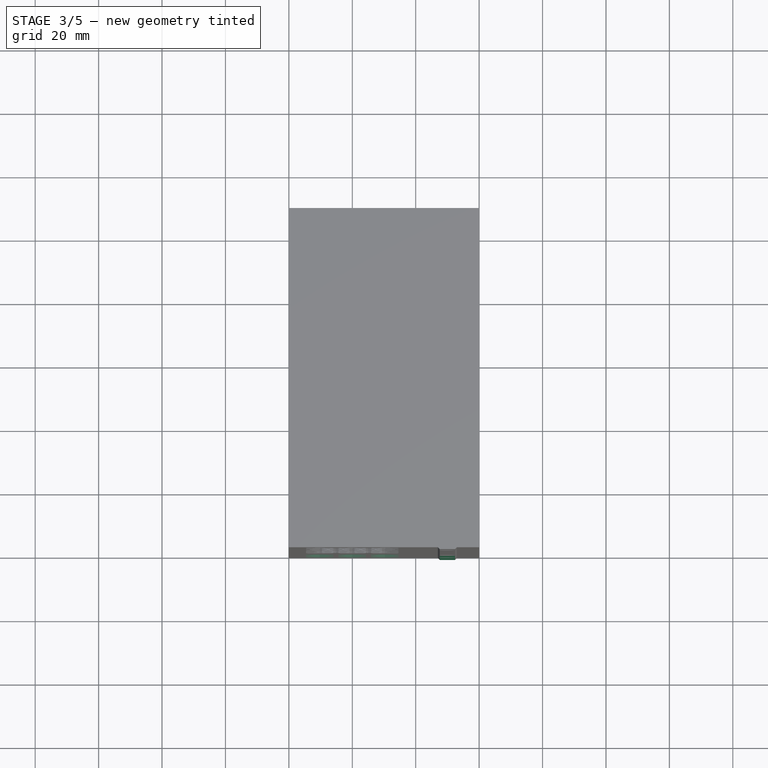
[diagram: stage 3 of 5 — top view after this stage's code; geometry added in this stage tinted green]
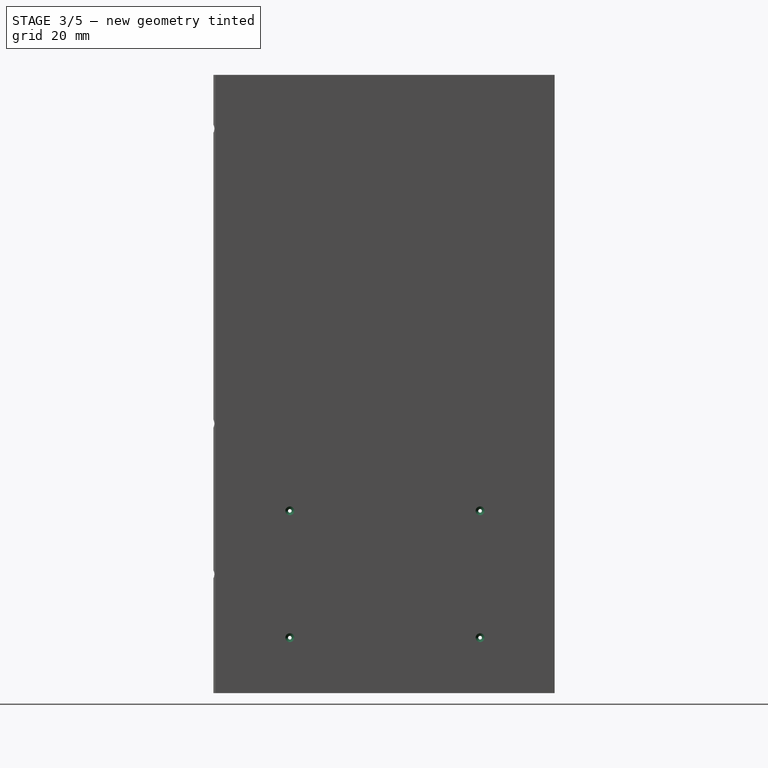
[diagram: stage 3 of 5 — right view after this stage's code; geometry added in this stage tinted green]
FEATURE [Sketcher::SketchObject] Sketch036
  AttachmentOffset = pos=(0,0,-60) rot=(0,0,1;0rad)
  FullyConstrained = false
  MapMode = 5
  Placement = pos=(-60,1.33e-14,-1.33e-14) rot=(0.57735,0.57735,0.57735;2.0944rad)
  Support = -> [YZ_Plane005]
  expr: Constraints[13] = Sketch034.Constraints[10] / 2
  expr: .AttachmentOffset.Base.z = -Pad012.Length
  expr: Constraints[15] = Sketch034.Constraints[9] - 2 * Sketch035.Constraints[54]
  expr: Constraints[12] = Sketch034.Constraints[9] / 2
  expr: Constraints[14] = Sketch034.Constraints[10] - 2 * Sketch035.Constraints[54]
  sketch-geometry (6):
    g0: LineSegment StartX=2.4 StartY=-2.4 StartZ=0 EndX=104.6 EndY=-2.4 EndZ=0
    g1: LineSegment StartX=104.6 StartY=-2.4 StartZ=0 EndX=104.6 EndY=-72.6 EndZ=0
    g2: LineSegment StartX=104.6 StartY=-72.6 StartZ=0 EndX=2.4 EndY=-72.6 EndZ=0
    g3: LineSegment StartX=2.4 StartY=-72.6 StartZ=0 EndX=2.4 EndY=-2.4 EndZ=0
    g4: LineSegment StartX=53.5 StartY=0 StartZ=0 EndX=53.5 EndY=-72.6 EndZ=0
    g5: LineSegment StartX=0 StartY=-37.5 StartZ=0 EndX=104.6 EndY=-37.5 EndZ=0
  constraints (18):
    c: Coincident(g0,g1)
    c: Coincident(g1,g2)
    c: Coincident(g2,g3)
    c: Coincident(g3,g0)
    c: Horizontal(g0)
    c: Horizontal(g2)
    c: Vertical(g1)
    c: Vertical(g3)
    c: PointOnObject(g4,g-1)
    c: PointOnObject(g4,g2)
    c: PointOnObject(g5,g-2)
    c: PointOnObject(g5,g1)
    c: DistanceX(g-1,g4) = 53.5
    c: DistanceY(g5,g-1) = 37.5
    c: DistanceY(g1,g1) = 70.2
    c: DistanceX(g2,g2) = 102.2
    c: Symmetric(g2,g0,g5)
    c: Symmetric(g2,g1,g4)
FEATURE [PartDesign::Pocket] Pocket023  label="PocketBoxCover"
  AllowMultiFace = false
  BaseFeature = -> Pocket022
  Length = 2
  Length2 = 100
  Placement = pos=(0,0,0) rot=(0.57735,0.57735,0.57735;2.0944rad)
  Profile = -> Sketch036
  Reversed = true
  Type = 0
FEATURE [Sketcher::SketchObject] Sketch037
  AttachmentOffset = pos=(0,0,-53.5) rot=(0,0,1;0rad)
  FullyConstrained = false
  MapMode = 5
  Placement = pos=(0,53.5,1.19e-14) rot=(1,0,0;1.5708rad)
  Support = -> [XZ_Plane005]
  expr: Constraints[23] = Sketch034.Constraints[10] - 2 * Sketch035.Constraints.wall_thickness - 0.002mm
  expr: Constraints[22] = Sketch035.Constraints.wall_thickness + 0.001mm
  expr: .AttachmentOffset.Base.z = -Sketch.Constraints.width / 2
  sketch-geometry (8):
    g0: LineSegment StartX=-3.001 StartY=-2.401 StartZ=0 EndX=-3.001 EndY=-12.4 EndZ=0
    g1: LineSegment StartX=-3.001 StartY=-12.4 StartZ=0 EndX=-53 EndY=-12.4 EndZ=0
    g2: LineSegment StartX=-53 StartY=-12.4 StartZ=0 EndX=-43.001 EndY=-2.401 EndZ=0
    g3: LineSegment StartX=-43.001 StartY=-2.401 StartZ=0 EndX=-3.001 EndY=-2.401 EndZ=0
    g4: LineSegment StartX=-3.001 StartY=-72.599 StartZ=0 EndX=-43.001 EndY=-72.599 EndZ=0
    g5: LineSegment StartX=-43.001 StartY=-72.599 StartZ=0 EndX=-53 EndY=-62.6 EndZ=0
    g6: LineSegment StartX=-53 StartY=-62.6 StartZ=0 EndX=-3.001 EndY=-62.6 EndZ=0
    g7: LineSegment StartX=-3.001 StartY=-62.6 StartZ=0 EndX=-3.001 EndY=-72.599 EndZ=0
  constraints (24):
    c: Vertical(g0)
    c: Coincident(g0,g1)
    c: Horizontal(g1)
    c: Coincident(g1,g2)
    c: Coincident(g2,g3)
    c: Coincident(g3,g0)
    c: Horizontal(g3)
    c: DistanceY(g1,g2) = 9.999
    c: DistanceX(g3,g3) = 40
    c: Angle(g1,g2) = 0.785398
    c: Horizontal(g4)
    c: Coincident(g4,g5)
    c: Coincident(g5,g6)
    c: Horizontal(g6)
    c: Coincident(g6,g7)
    c: Coincident(g7,g4)
    c: Vertical(g7)
    c: DistanceX(g4,g-1) = 3.001
    c: Vertical(g6,g0)
    c: Equal(g0,g7)
    c: Angle(g5,g6) = 0.785398
    c: Equal(g4,g3)
    c: DistanceY(g0,g-1) = 2.401
    c: DistanceY(g4,g0) = 70.198
FEATURE [PartDesign::Pocket] Pocket024  label="PocketBoxInnClearance"
  AllowMultiFace = false
  BaseFeature = -> Pocket023
  Length = 102.2
  Length2 = 100
  Midplane = true
  Placement = pos=(0,0,0) rot=(0.57735,0.57735,0.57735;2.0944rad)
  Profile = -> Sketch037
  Type = 0
  expr: Length = Sketch034.Constraints[9] - 2 * Sketch035.Constraints.wall_thickness
FEATURE [Sketcher::SketchObject] Sketch038
  AttachmentOffset = pos=(0,0,-60) rot=(0,0,1;0rad)
  FullyConstrained = false
  MapMode = 5
  Placement = pos=(-60,1.33e-14,-1.33e-14) rot=(0.57735,0.57735,0.57735;2.0944rad)
  Support = -> [YZ_Plane005]
  expr: Constraints[17] = Sketch034.Constraints[10] / 2
  expr: Constraints[14] = Sketch034.Constraints[9] / 2
  expr: .AttachmentOffset.Base.z = -Pad012.Length
  expr: Constraints[7] = Sketch034.Constraints[10] - 2 * (Sketch035.Constraints.wall_thickness + Sketch035.Constraints.CornerRadius)
  expr: Constraints[8] = Sketch034.Constraints[9] - 2 * (Sketch035.Constraints.wall_thickness + Sketch035.Constraints.CornerRadius)
  sketch-geometry (10):
    g0: LineSegment StartX=5.4 StartY=-5.4 StartZ=0 EndX=101.6 EndY=-5.4 EndZ=0
    g1: LineSegment StartX=101.6 StartY=-5.4 StartZ=0 EndX=101.6 EndY=-69.6 EndZ=0
    g2: LineSegment StartX=101.6 StartY=-69.6 StartZ=0 EndX=5.4 EndY=-69.6 EndZ=0
    g3: LineSegment StartX=5.4 StartY=-69.6 StartZ=0 EndX=5.4 EndY=-5.4 EndZ=0
    g4: LineSegment StartX=53.5 StartY=0 StartZ=0 EndX=53.5 EndY=-5.4 EndZ=0
    g5: LineSegment StartX=5.4 StartY=-37.5 StartZ=0 EndX=0 EndY=-37.5 EndZ=0
    g6: Circle CenterX=5.4 CenterY=-5.4 CenterZ=0 NormalX=0 NormalY=0 NormalZ=1 AngleXU=0 Radius=1.4
    g7: Circle CenterX=101.6 CenterY=-5.4 CenterZ=0 NormalX=0 NormalY=0 NormalZ=1 AngleXU=0 Radius=1.4
    g8: Circle CenterX=101.6 CenterY=-69.6 CenterZ=0 NormalX=0 NormalY=0 NormalZ=1 AngleXU=0 Radius=1.4
    g9: Circle CenterX=5.4 CenterY=-69.6 CenterZ=0 NormalX=0 NormalY=0 NormalZ=1 AngleXU=0 Radius=1.4
  constraints (26):
    c: Coincident(g0,g1)
    c: Coincident(g1,g2)
    c: Coincident(g2,g3)
    c: Coincident(g3,g0)
    c: Horizontal(g2)
    c: Vertical(g1)
    c: Vertical(g3)
    c: DistanceY(g1,g1) = 64.2
    c: DistanceX(g2,g2) = 96.2
    c: PointOnObject(g4,g-1)
    c: PointOnObject(g4,g0)
    c: PointOnObject(g5,g3)
    c: PointOnObject(g5,g-2)
    c: Symmetric(g0,g2,g5)
    c: DistanceX(g-1,g4) = 53.5
    c: Vertical(g4)
    c: Symmetric(g0,g0,g4)
    c: DistanceY(g5,g-1) = 37.5
    c: Coincident(g6,g0)
    c: Coincident(g7,g0)
    c: Coincident(g8,g1)
    c: Coincident(g9,g2)
    c: Equal(g6,g7)
    c: Equal(g7,g8)
    c: Equal(g8,g9)
    c: Diameter(g8) = 2.8
FEATURE [PartDesign::Pocket] Pocket025  label="PocketBoxCoverBores"
  AllowMultiFace = false
  BaseFeature = -> Pocket024
  Length = 12
  Length2 = 100
  Placement = pos=(0,0,0) rot=(0.57735,0.57735,0.57735;2.0944rad)
  Profile = -> Sketch038
  Reversed = true
  Type = 0
FEATURE [Sketcher::SketchObject] Sketch041
  AttachmentOffset = pos=(0,0,0) rot=(0,1,0;3.14159rad)
  FullyConstrained = true
  MapMode = 5
  Placement = pos=(0,0,0) rot=(0,1,0;3.14159rad)
  Support = -> [XY_Plane005]
  expr: Constraints[7] = Pad012.Length - 8mm
  expr: Constraints[3] = Sketch034.Constraints[9] / 2
  sketch-geometry (17):
    g0: Circle CenterX=10 CenterY=92.5 CenterZ=0 NormalX=0 NormalY=0 NormalZ=1 AngleXU=0 Radius=1.65
    g1: Circle CenterX=52 CenterY=53.5 CenterZ=0 NormalX=0 NormalY=0 NormalZ=1 AngleXU=0 Radius=1.65
    g2: Circle CenterX=10 CenterY=14.5 CenterZ=0 NormalX=0 NormalY=0 NormalZ=1 AngleXU=0 Radius=1.65
    g3: LineSegment StartX=0 StartY=53.5 StartZ=0 EndX=52 EndY=53.5 EndZ=0
    g4: LineSegment StartX=10 StartY=92.5 StartZ=0 EndX=10 EndY=14.5 EndZ=0
    g5: LineSegment StartX=9 StartY=76 StartZ=0 EndX=43 EndY=76 EndZ=0
    g6: LineSegment StartX=43 StartY=76 StartZ=0 EndX=43 EndY=20 EndZ=0
    g7: LineSegment StartX=43 StartY=20 StartZ=0 EndX=9 EndY=20 EndZ=0
    g8: LineSegment StartX=9 StartY=20 StartZ=0 EndX=9 EndY=76 EndZ=0
    g9: ArcOfCircle CenterX=23 CenterY=8.5 CenterZ=0 NormalX=0 NormalY=0 NormalZ=1 AngleXU=0 Radius=5 StartAngle=1.5708 EndAngle=4.71239
    g10: ArcOfCircle CenterX=38 CenterY=8.5 CenterZ=0 NormalX=0 NormalY=0 NormalZ=1 AngleXU=0 Radius=5 StartAngle=4.71239 EndAngle=7.85398
    g11: LineSegment StartX=23 StartY=3.5 StartZ=0 EndX=38 EndY=3.5 EndZ=0
    g12: LineSegment StartX=23 StartY=13.5 StartZ=0 EndX=38 EndY=13.5 EndZ=0
    g13: ArcOfCircle CenterX=23 CenterY=98.5 CenterZ=0 NormalX=0 NormalY=0 NormalZ=1 AngleXU=0 Radius=5 StartAngle=1.5708 EndAngle=4.71239
    g14: ArcOfCircle CenterX=38 CenterY=98.5 CenterZ=0 NormalX=0 NormalY=0 NormalZ=1 AngleXU=0 Radius=5 StartAngle=4.71239 EndAngle=7.85398
    g15: LineSegment StartX=23 StartY=93.5 StartZ=0 EndX=38 EndY=93.5 EndZ=0
    g16: LineSegment StartX=23 StartY=103.5 StartZ=0 EndX=38 EndY=103.5 EndZ=0
  constraints (44):
    c: PointOnObject(g3,g-2)
    c: Coincident(g3,g1)
    c: Horizontal(g3)
    c: DistanceY(g-1,g3) = 53.5
    c: Equal(g0,g2)
    c: Equal(g2,g1)
    c: Diameter(g1) = 3.3
    c: DistanceX(g-1,g1) = 52
    c: Coincident(g4,g0)
    c: Coincident(g4,g2)
    c: Symmetric(g2,g0,g3)
    c: DistanceY(g4,g4) = 78
    c: DistanceX(g-1,g2) = 10
    c: Coincident(g5,g6)
    c: Coincident(g6,g7)
    c: Coincident(g7,g8)
    c: Coincident(g8,g5)
    c: Horizontal(g5)
    c: Horizontal(g7)
    c: Vertical(g6)
    c: Vertical(g8)
    c: DistanceX(g-1,g6) = 43
    c: DistanceY(g-1,g6) = 20
    c: DistanceX(g5,g5) = 34
    c: DistanceY(g6,g6) = 56
    c: Tangent(g9,g12) = 1.5708
    c: Tangent(g9,g11) = -1.5708
    c: Tangent(g11,g10) = -1.5708
    c: Tangent(g12,g10) = 1.5708
    c: Horizontal(g11)
    c: Equal(g9,g10)
    c: DistanceX(g11,g11) = 15
    c: DistanceY(g10,g10) = 10
    c: DistanceX(g-1,g9) = 23
    c: Tangent(g13,g16) = 1.5708
    c: Tangent(g13,g15) = -1.5708
    c: Tangent(g15,g14) = -1.5708
    c: Tangent(g16,g14) = 1.5708
    c: Horizontal(g15)
    c: Equal(g13,g14)
    c: Equal(g9,g13)
    c: Equal(g12,g15)
    c: Symmetric(g9,g13,g3)
    c: DistanceY(g10,g14) = 90
FEATURE [Sketcher::SketchObject] Sketch042
  AttachmentOffset = pos=(0,0,-3) rot=(0,1,0;3.14159rad)
  FullyConstrained = false
  MapMode = 5
  Placement = pos=(-3,7e-16,-7e-16) rot=(-0.57735,0.57735,0.57735;4.18879rad)
  Support = -> [YZ_Plane005]
  expr: Constraints[19] = Sketch034.Constraints[9] / 2
  sketch-geometry (25):
    g0: LineSegment StartX=-99.75 StartY=-14 StartZ=0 EndX=-57.75 EndY=-14 EndZ=0
    g1: LineSegment StartX=-57.75 StartY=-14 StartZ=0 EndX=-57.75 EndY=-66 EndZ=0
    g2: LineSegment StartX=-57.75 StartY=-66 StartZ=0 EndX=-99.75 EndY=-66 EndZ=0
    g3: LineSegment StartX=-99.75 StartY=-66 StartZ=0 EndX=-99.75 EndY=-14 EndZ=0
    g4: LineSegment StartX=-53.5 StartY=0 StartZ=0 EndX=-53.5 EndY=-66 EndZ=0
    g5: LineSegment StartX=-49.25 StartY=-14 StartZ=0 EndX=-7.25 EndY=-14 EndZ=0
    g6: LineSegment StartX=-7.25 StartY=-14 StartZ=0 EndX=-7.25 EndY=-66 EndZ=0
    g7: LineSegment StartX=-7.25 StartY=-66 StartZ=0 EndX=-49.25 EndY=-66 EndZ=0
    g8: LineSegment StartX=-49.25 StartY=-66 StartZ=0 EndX=-49.25 EndY=-14 EndZ=0
    g9: Circle CenterX=-99.75 CenterY=-14 CenterZ=0 NormalX=0 NormalY=0 NormalZ=1 AngleXU=0 Radius=4
    g10: ArcOfCircle CenterX=-57.75 CenterY=-14 CenterZ=0 NormalX=0 NormalY=0 NormalZ=1 AngleXU=0 Radius=4 StartAngle=4.03726 EndAngle=5.27247
    g11: ArcOfCircle CenterX=-49.25 CenterY=-14 CenterZ=0 NormalX=0 NormalY=0 NormalZ=1 AngleXU=0 Radius=4 StartAngle=4.15231 EndAngle=8.41405
    g12: Circle CenterX=-7.25 CenterY=-14 CenterZ=0 NormalX=0 NormalY=0 NormalZ=1 AngleXU=0 Radius=4
    g13: Circle CenterX=-7.25 CenterY=-66 CenterZ=0 NormalX=0 NormalY=0 NormalZ=1 AngleXU=0 Radius=4
    g14: ArcOfCircle CenterX=-49.25 CenterY=-66 CenterZ=0 NormalX=0 NormalY=0 NormalZ=1 AngleXU=0 Radius=4 StartAngle=4.15231 EndAngle=8.41405
    g15: ArcOfCircle CenterX=-57.75 CenterY=-66 CenterZ=0 NormalX=0 NormalY=0 NormalZ=1 AngleXU=0 Radius=4 StartAngle=1.01072 EndAngle=2.24593
    g16: Circle CenterX=-99.75 CenterY=-66 CenterZ=0 NormalX=0 NormalY=0 NormalZ=1 AngleXU=0 Radius=4
    g17: LineSegment StartX=-60.25 StartY=-10.8775 StartZ=0 EndX=-60.25 EndY=-17.1225 EndZ=0
    g18: ArcOfCircle CenterX=-53.5 CenterY=-7.22228 CenterZ=0 NormalX=0 NormalY=0 NormalZ=1 AngleXU=0 Radius=4 StartAngle=4.15231 EndAngle=5.27247
    g19: ArcOfCircle CenterX=-53.5 CenterY=-20.7777 CenterZ=0 NormalX=0 NormalY=0 NormalZ=1 AngleXU=0 Radius=4 StartAngle=1.01072 EndAngle=2.13087
    g20: ArcOfCircle CenterX=-57.75 CenterY=-14 CenterZ=0 NormalX=0 NormalY=0 NormalZ=1 AngleXU=0 Radius=4 StartAngle=1.01072 EndAngle=2.24593
    g21: ArcOfCircle CenterX=-53.5 CenterY=-59.2223 CenterZ=0 NormalX=0 NormalY=0 NormalZ=1 AngleXU=0 Radius=4 StartAngle=4.15231 EndAngle=5.27247
    g22: ArcOfCircle CenterX=-53.5 CenterY=-72.7777 CenterZ=0 NormalX=0 NormalY=0 NormalZ=1 AngleXU=0 Radius=4 StartAngle=1.01072 EndAngle=2.13087
    g23: LineSegment StartX=-60.25 StartY=-62.8775 StartZ=0 EndX=-60.25 EndY=-69.1225 EndZ=0
    g24: ArcOfCircle CenterX=-57.75 CenterY=-66 CenterZ=0 NormalX=0 NormalY=0 NormalZ=1 AngleXU=0 Radius=4 StartAngle=4.03726 EndAngle=5.27247
  constraints (70):
    c: Coincident(g0,g1)
    c: Coincident(g1,g2)
    c: Coincident(g2,g3)
    c: Coincident(g3,g0)
    c: Horizontal(g0)
    c: Horizontal(g2)
    c: Vertical(g1)
    c: Vertical(g3)
    c: DistanceY(g0,g-1) = 14
    c: PointOnObject(g4,g-1)
    c: Vertical(g4)
    c: Coincident(g5,g6)
    c: Coincident(g6,g7)
    c: Coincident(g7,g8)
    c: Coincident(g8,g5)
    c: Horizontal(g5)
    c: Horizontal(g7)
    c: Vertical(g6)
    c: Vertical(g8)
    c: DistanceX(g4,g-1) = 53.5
    c: DistanceY(g3,g3) = 52
    c: DistanceX(g2,g2) = 42
    c: Equal(g2,g7)
    c: Equal(g1,g8)
    c: Symmetric(g0,g5,g4)
    c: DistanceX(g1,g7) = 8.5
    c: Horizontal(g1,g4)
    c: Coincident(g9,g0)
    c: Coincident(g10,g0)
    c: Coincident(g11,g5)
    c: Coincident(g12,g5)
    c: Coincident(g13,g6)
    c: Coincident(g14,g7)
    c: Coincident(g15,g1)
    c: Coincident(g16,g2)
    c: Diameter(g9) = 8
    c: Equal(g9, g10-g16) x7
    c: Vertical(g17)
    c: Coincident(g10,g17)
    c: Coincident(g20,g17)
    c: DistanceX(g20,g10) = 2.5
    c: PointOnObject(g19,g4)
    c: Tangent(g18,g11)
    c: PointOnObject(g18,g4)
    c: Tangent(g11,g19)
    c: Equal(g10,g20)
    c: Coincident(g10,g19)
    c: Coincident(g20,g18)
    c: Coincident(g10,g20)
    c: Coincident(g11,g19)
    c: Coincident(g11,g18)
    c: Equal(g11,g18)
    c: Equal(g18,g19)
    c: PointOnObject(g21,g4)
    c: PointOnObject(g22,g4)
    c: Tangent(g14,g21)
    c: Tangent(g22,g14)
    c: Equal(g14,g22)
    c: Equal(g22,g21)
    c: Coincident(g14,g22)
    c: Coincident(g14,g21)
    c: Coincident(g15,g21)
    c: Coincident(g24,g22)
    c: PointOnObject(g23,g15)
    c: Vertical(g23)
    c: Equal(g15,g24)
    c: Coincident(g15,g23)
    c: Coincident(g15,g24)
    c: PointOnObject(g24,g23)
    c: Vertical(g15,g10)
FEATURE [Sketcher::SketchObject] Sketch043
  AttachmentOffset = pos=(0,0,-23) rot=(0,1,0;3.14159rad)
  FullyConstrained = true
  MapMode = 5
  Placement = pos=(-23,5.1e-15,-5.1e-15) rot=(-0.57735,0.57735,0.57735;4.18879rad)
  Support = -> [YZ_Plane005]
  expr: .AttachmentOffset.Base.z = -Pad014.Length - 3mm
  expr: Constraints[19] = Sketch034.Constraints[9] / 2
  sketch-geometry (17):
    g0: LineSegment StartX=-99.75 StartY=-14 StartZ=0 EndX=-57.75 EndY=-14 EndZ=0
    g1: LineSegment StartX=-57.75 StartY=-14 StartZ=0 EndX=-57.75 EndY=-66 EndZ=0
    g2: LineSegment StartX=-57.75 StartY=-66 StartZ=0 EndX=-99.75 EndY=-66 EndZ=0
    g3: LineSegment StartX=-99.75 StartY=-66 StartZ=0 EndX=-99.75 EndY=-14 EndZ=0
    g4: LineSegment StartX=-53.5 StartY=0 StartZ=0 EndX=-53.5 EndY=-66 EndZ=0
    g5: LineSegment StartX=-49.25 StartY=-14 StartZ=0 EndX=-7.25 EndY=-14 EndZ=0
    g6: LineSegment StartX=-7.25 StartY=-14 StartZ=0 EndX=-7.25 EndY=-66 EndZ=0
    g7: LineSegment StartX=-7.25 StartY=-66 StartZ=0 EndX=-49.25 EndY=-66 EndZ=0
    g8: LineSegment StartX=-49.25 StartY=-66 StartZ=0 EndX=-49.25 EndY=-14 EndZ=0
    g9: Circle CenterX=-99.75 CenterY=-14 CenterZ=0 NormalX=0 NormalY=0 NormalZ=1 AngleXU=0 Radius=1.4
    g10: Circle CenterX=-57.75 CenterY=-14 CenterZ=0 NormalX=0 NormalY=0 NormalZ=1 AngleXU=0 Radius=1.4
    g11: Circle CenterX=-49.25 CenterY=-14 CenterZ=0 NormalX=0 NormalY=0 NormalZ=1 AngleXU=0 Radius=1.4
    g12: Circle CenterX=-7.25 CenterY=-14 CenterZ=0 NormalX=0 NormalY=0 NormalZ=1 AngleXU=0 Radius=1.4
    g13: Circle CenterX=-7.25 CenterY=-66 CenterZ=0 NormalX=0 NormalY=0 NormalZ=1 AngleXU=0 Radius=1.4
    g14: Circle CenterX=-49.25 CenterY=-66 CenterZ=0 NormalX=0 NormalY=0 NormalZ=1 AngleXU=0 Radius=1.4
    g15: Circle CenterX=-57.75 CenterY=-66 CenterZ=0 NormalX=0 NormalY=0 NormalZ=1 AngleXU=0 Radius=1.4
    g16: Circle CenterX=-99.75 CenterY=-66 CenterZ=0 NormalX=0 NormalY=0 NormalZ=1 AngleXU=0 Radius=1.4
  constraints (37):
    c: Coincident(g0,g1)
    c: Coincident(g1,g2)
    c: Coincident(g2,g3)
    c: Coincident(g3,g0)
    c: Horizontal(g0)
    c: Horizontal(g2)
    c: Vertical(g1)
    c: Vertical(g3)
    c: DistanceY(g0,g-1) = 14
    c: PointOnObject(g4,g-1)
    c: Vertical(g4)
    c: Coincident(g5,g6)
    c: Coincident(g6,g7)
    c: Coincident(g7,g8)
    c: Coincident(g8,g5)
    c: Horizontal(g5)
    c: Horizontal(g7)
    c: Vertical(g6)
    c: Vertical(g8)
    c: DistanceX(g4,g-1) = 53.5
    c: DistanceY(g3,g3) = 52
    c: DistanceX(g2,g2) = 42
    c: Equal(g2,g7)
    c: Equal(g1,g8)
    c: Symmetric(g0,g5,g4)
    c: DistanceX(g1,g7) = 8.5
    c: Horizontal(g1,g4)
    c: Coincident(g9,g0)
    c: Coincident(g10,g0)
    c: Coincident(g11,g5)
    c: Coincident(g12,g5)
    c: Coincident(g13,g6)
    c: Coincident(g14,g7)
    c: Coincident(g15,g1)
    c: Coincident(g16,g2)
    c: Diameter(g9) = 2.8
    c: Equal(g9, g10-g16) x7
FEATURE [Sketcher::SketchObject] Sketch044
  AttachmentOffset = pos=(0,0,-75) rot=(0,1,0;3.14159rad)
  FullyConstrained = true
  MapMode = 5
  Placement = pos=(0,0,-75) rot=(0,1,0;3.14159rad)
  Support = -> [XY_Plane005]
  expr: Constraints[3] = Sketch034.Constraints[9] / 2
  expr: Constraints[2] = Pad012.Length
  expr: .AttachmentOffset.Base.z = -Sketch034.Constraints[10]
  sketch-geometry (16):
    g0: LineSegment StartX=10 StartY=92.5 StartZ=0 EndX=10 EndY=14.5 EndZ=0
    g1: LineSegment StartX=0 StartY=53.5 StartZ=0 EndX=60 EndY=53.5 EndZ=0
    g2: Circle CenterX=10 CenterY=92.5 CenterZ=0 NormalX=0 NormalY=0 NormalZ=1 AngleXU=0 Radius=3.5
    g3: Circle CenterX=10 CenterY=14.5 CenterZ=0 NormalX=0 NormalY=0 NormalZ=1 AngleXU=0 Radius=3.5
    g4: ArcOfCircle CenterX=23 CenterY=8.5 CenterZ=0 NormalX=0 NormalY=0 NormalZ=1 AngleXU=0 Radius=5 StartAngle=1.5708 EndAngle=4.71239
    g5: ArcOfCircle CenterX=38 CenterY=8.5 CenterZ=0 NormalX=0 NormalY=0 NormalZ=1 AngleXU=0 Radius=5 StartAngle=4.71239 EndAngle=7.85398
    g6: LineSegment StartX=23 StartY=3.5 StartZ=0 EndX=38 EndY=3.5 EndZ=0
    g7: LineSegment StartX=23 StartY=13.5 StartZ=0 EndX=38 EndY=13.5 EndZ=0
    g8: ArcOfCircle CenterX=10 CenterY=33.5 CenterZ=0 NormalX=0 NormalY=0 NormalZ=1 AngleXU=0 Radius=6.5 StartAngle=2.33872e-08 EndAngle=3.14159
    g9: LineSegment StartX=3.5 StartY=33.5 StartZ=0 EndX=3.5 EndY=29.5 EndZ=0
    g10: ArcOfCircle CenterX=10 CenterY=29.5 CenterZ=0 NormalX=0 NormalY=0 NormalZ=1 AngleXU=0 Radius=6.5 StartAngle=3.14159 EndAngle=6.28319
    g11: LineSegment StartX=16.5 StartY=29.5 StartZ=0 EndX=16.5 EndY=33.5 EndZ=0
    g12: LineSegment StartX=9 StartY=73.5 StartZ=0 EndX=21 EndY=73.5 EndZ=0
    g13: LineSegment StartX=21 StartY=73.5 StartZ=0 EndX=21 EndY=59.5 EndZ=0
    g14: LineSegment StartX=21 StartY=59.5 StartZ=0 EndX=9 EndY=59.5 EndZ=0
    g15: LineSegment StartX=9 StartY=59.5 StartZ=0 EndX=9 EndY=73.5 EndZ=0
  constraints (45):
    c: Vertical(g0)
    c: PointOnObject(g1,g-2)
    c: DistanceX(g1,g1) = 60
    c: DistanceY(g-1,g1) = 53.5
    c: Symmetric(g0,g0,g1)
    c: DistanceY(g0,g0) = 78
    c: DistanceX(g-1,g0) = 10
    c: Coincident(g2,g0)
    c: Coincident(g3,g0)
    c: Equal(g2,g3)
    c: Diameter(g2) = 7
    c: Tangent(g4,g7) = 1.5708
    c: Tangent(g4,g6) = -1.5708
    c: Tangent(g6,g5) = -1.5708
    c: Tangent(g7,g5) = 1.5708
    c: Horizontal(g6)
    c: Equal(g4,g5)
    c: DistanceY(g5,g5) = 10
    c: DistanceX(g7,g7) = 15
    c: DistanceX(g-1,g4) = 23
    c: DistanceY(g-1,g5) = 8.5
    c: PointOnObject(g8,g0)
    c: Diameter(g8) = 13
    c: DistanceY(g8,g1) = 20
    c: Vertical(g9)
    c: Tangent(g9,g10) = -1.5708
    c: Tangent(g10,g11) = -1.5708
    c: Vertical(g11)
    c: Tangent(g8,g11)
    c: Coincident(g8,g11)
    c: Coincident(g8,g9)
    c: DistanceY(g10,g8) = 4
    c: Tangent(g8,g9)
    c: Coincident(g12,g13)
    c: Coincident(g13,g14)
    c: Coincident(g14,g15)
    c: Coincident(g15,g12)
    c: Horizontal(g12)
    c: Horizontal(g14)
    c: Vertical(g13)
    c: Vertical(g15)
    c: DistanceY(g13,g13) = 14
    c: DistanceX(g12,g12) = 12
    c: DistanceY(g1,g14) = 6
    c: DistanceX(g1,g12) = 9
FEATURE [Sketcher::SketchObject] Sketch045
  FullyConstrained = false
  MapMode = 5
  Placement = pos=(0,0,0) rot=(1,0,0;1.5708rad)
  Support = -> [XZ_Plane005]
  sketch-geometry (23):
    g0: LineSegment StartX=-50.2603 StartY=-24.9 StartZ=0 EndX=-45.9301 EndY=-22.4 EndZ=0
    g1: LineSegment StartX=-45.9301 StartY=-22.4 StartZ=0 EndX=-45.9301 EndY=-17.4 EndZ=0
    g2: LineSegment StartX=-45.9301 StartY=-17.4 StartZ=0 EndX=-50.2603 EndY=-14.9 EndZ=0
    g3: LineSegment StartX=-50.2603 StartY=-14.9 StartZ=0 EndX=-54.5904 EndY=-17.4 EndZ=0
    g4: LineSegment StartX=-54.5904 StartY=-17.4 StartZ=0 EndX=-54.5904 EndY=-22.4 EndZ=0
    g5: LineSegment StartX=-54.5904 StartY=-22.4 StartZ=0 EndX=-50.2603 EndY=-24.9 EndZ=0
    g6: Circle CenterX=-50.2603 CenterY=-19.9 CenterZ=0 NormalX=0 NormalY=0 NormalZ=1 AngleXU=0 Radius=5
    g7: LineSegment StartX=-35.6699 StartY=-22.4 StartZ=0 EndX=-35.6699 EndY=-17.4 EndZ=0
    g8: LineSegment StartX=-35.6699 StartY=-17.4 StartZ=0 EndX=-40 EndY=-14.9 EndZ=0
    g9: LineSegment StartX=-40 StartY=-14.9 StartZ=0 EndX=-44.3301 EndY=-17.4 EndZ=0
    g10: LineSegment StartX=-44.3301 StartY=-17.4 StartZ=0 EndX=-44.3301 EndY=-22.4 EndZ=0
    g11: LineSegment StartX=-44.3301 StartY=-22.4 StartZ=0 EndX=-40 EndY=-24.9 EndZ=0
    g12: LineSegment StartX=-40 StartY=-24.9 StartZ=0 EndX=-35.6699 EndY=-22.4 EndZ=0
    g13: Circle CenterX=-40 CenterY=-19.9 CenterZ=0 NormalX=0 NormalY=0 NormalZ=1 AngleXU=0 Radius=5
    g14: LineSegment StartX=-29.7397 StartY=-24.9 StartZ=0 EndX=-25.4096 EndY=-22.4 EndZ=0
    g15: LineSegment StartX=-25.4096 StartY=-22.4 StartZ=0 EndX=-25.4096 EndY=-17.4 EndZ=0
    g16: LineSegment StartX=-25.4096 StartY=-17.4 StartZ=0 EndX=-29.7397 EndY=-14.9 EndZ=0
    g17: LineSegment StartX=-29.7397 StartY=-14.9 StartZ=0 EndX=-34.0699 EndY=-17.4 EndZ=0
    g18: LineSegment StartX=-34.0699 StartY=-17.4 StartZ=0 EndX=-34.0699 EndY=-22.4 EndZ=0
    g19: LineSegment StartX=-34.0699 StartY=-22.4 StartZ=0 EndX=-29.7397 EndY=-24.9 EndZ=0
    g20: Circle CenterX=-29.7397 CenterY=-19.9 CenterZ=0 NormalX=0 NormalY=0 NormalZ=1 AngleXU=0 Radius=5
    g21: LineSegment StartX=-50.2603 StartY=-19.9 StartZ=0 EndX=-40 EndY=-19.9 EndZ=0
    g22: LineSegment StartX=-40 StartY=-19.9 StartZ=0 EndX=-29.7397 EndY=-19.9 EndZ=0
  constraints (55):
    c: Coincident(g1,g2)
    c: Coincident(g2,g3)
    c: Coincident(g3,g4)
    c: Equal(g0, g1-g5) x5
    c: PointOnObject(g0,g6)
    c: PointOnObject(g1,g6)
    c: PointOnObject(g2,g6)
    c: PointOnObject(g3,g6)
    c: PointOnObject(g4,g6)
    c: PointOnObject(g5,g6)
    c: Vertical(g4)
    c: Coincident(g5,g4)
    c: Coincident(g5,g0)
    c: Coincident(g0,g1)
    c: Diameter(g6) = 10
    c: Coincident(g7,g8)
    c: Coincident(g8,g9)
    c: Coincident(g9,g10)
    c: Coincident(g10,g11)
    c: Coincident(g11,g12)
    c: Coincident(g12,g7)
    c: Equal(g7, g8-g12) x5
    c: PointOnObject(g7,g13)
    c: PointOnObject(g8,g13)
    c: PointOnObject(g9,g13)
    c: PointOnObject(g10,g13)
    c: PointOnObject(g11,g13)
    c: PointOnObject(g12,g13)
    c: Coincident(g14,g15)
    c: Coincident(g15,g16)
    c: Coincident(g16,g17)
    c: Coincident(g17,g18)
    c: Coincident(g18,g19)
    c: Coincident(g19,g14)
    c: Equal(g14, g15-g19) x5
    c: PointOnObject(g14,g20)
    c: PointOnObject(g15,g20)
    c: PointOnObject(g16,g20)
    c: PointOnObject(g17,g20)
    c: PointOnObject(g18,g20)
    c: PointOnObject(g19,g20)
    c: Equal(g6,g13)
    c: Equal(g13,g20)
    c: Coincident(g21,g6)
    c: Coincident(g21,g13)
    c: Horizontal(g21)
    c: Coincident(g22,g13)
    c: Coincident(g22,g20)
    c: Horizontal(g22)
    c: Equal(g22,g21)
    c: DistanceX(g1,g9) = 1.6
    c: Vertical(g10)
    c: Vertical(g18)
    c: DistanceX(g13,g-1) = 40
    c: DistanceY(g6,g-1) = 19.9
FEATURE [Sketcher::SketchObject] Sketch046
  FullyConstrained = false
  MapMode = 5
  Placement = pos=(0,0,0) rot=(1,0,0;1.5708rad)
  Support = -> [XZ_Plane005]
  sketch-geometry (15):
    g0: LineSegment StartX=-45.2603 StartY=-33.7 StartZ=0 EndX=-40.9301 EndY=-31.2 EndZ=0
    g1: LineSegment StartX=-40.9301 StartY=-31.2 StartZ=0 EndX=-40.9301 EndY=-26.2 EndZ=0
    g2: LineSegment StartX=-40.9301 StartY=-26.2 StartZ=0 EndX=-45.2603 EndY=-23.7 EndZ=0
    g3: LineSegment StartX=-45.2603 StartY=-23.7 StartZ=0 EndX=-49.5904 EndY=-26.2 EndZ=0
    g4: LineSegment StartX=-49.5904 StartY=-26.2 StartZ=0 EndX=-49.5904 EndY=-31.2 EndZ=0
    g5: LineSegment StartX=-49.5904 StartY=-31.2 StartZ=0 EndX=-45.2603 EndY=-33.7 EndZ=0
    g6: Circle CenterX=-45.2603 CenterY=-28.7 CenterZ=0 NormalX=0 NormalY=0 NormalZ=1 AngleXU=0 Radius=5
    g7: LineSegment StartX=-30.6699 StartY=-31.2 StartZ=0 EndX=-30.6699 EndY=-26.2 EndZ=0
    g8: LineSegment StartX=-30.6699 StartY=-26.2 StartZ=0 EndX=-35 EndY=-23.7 EndZ=0
    g9: LineSegment StartX=-35 StartY=-23.7 StartZ=0 EndX=-39.3301 EndY=-26.2 EndZ=0
    g10: LineSegment StartX=-39.3301 StartY=-26.2 StartZ=0 EndX=-39.3301 EndY=-31.2 EndZ=0
    g11: LineSegment StartX=-39.3301 StartY=-31.2 StartZ=0 EndX=-35 EndY=-33.7 EndZ=0
    g12: LineSegment StartX=-35 StartY=-33.7 StartZ=0 EndX=-30.6699 EndY=-31.2 EndZ=0
    g13: Circle CenterX=-35 CenterY=-28.7 CenterZ=0 NormalX=0 NormalY=0 NormalZ=1 AngleXU=0 Radius=5
    g14: LineSegment StartX=-45.2603 StartY=-28.7 StartZ=0 EndX=-35 EndY=-28.7 EndZ=0
  constraints (36):
    c: Coincident(g1,g2)
    c: Coincident(g2,g3)
    c: Coincident(g3,g4)
    c: Equal(g0, g1-g5) x5
    c: PointOnObject(g0,g6)
    c: PointOnObject(g1,g6)
    c: PointOnObject(g2,g6)
    c: PointOnObject(g3,g6)
    c: PointOnObject(g4,g6)
    c: PointOnObject(g5,g6)
    c: Vertical(g4)
    c: Coincident(g5,g4)
    c: Coincident(g5,g0)
    c: Coincident(g0,g1)
    c: Diameter(g6) = 10
    c: Coincident(g7,g8)
    c: Coincident(g8,g9)
    c: Coincident(g9,g10)
    c: Coincident(g10,g11)
    c: Coincident(g11,g12)
    c: Coincident(g12,g7)
    c: Equal(g7, g8-g12) x5
    c: PointOnObject(g7,g13)
    c: PointOnObject(g8,g13)
    c: PointOnObject(g9,g13)
    c: PointOnObject(g10,g13)
    c: PointOnObject(g11,g13)
    c: PointOnObject(g12,g13)
    c: Equal(g6,g13)
    c: Coincident(g14,g6)
    c: Coincident(g14,g13)
    c: Horizontal(g14)
    c: DistanceX(g1,g9) = 1.6
    c: Vertical(g10)
    c: DistanceX(g13,g-1) = 35
    c: DistanceY(g6,g-1) = 28.7
FEATURE [Sketcher::SketchObject] Sketch047
  FullyConstrained = false
  MapMode = 5
  Support = -> [XY_Plane005]
  sketch-geometry (5):
    g0: LineSegment StartX=-13 StartY=0 StartZ=0 EndX=-7 EndY=0 EndZ=0
    g1: LineSegment StartX=-7 StartY=0 StartZ=0 EndX=-7.6 EndY=-0.6 EndZ=0
    g2: LineSegment StartX=-7.6 StartY=-0.6 StartZ=0 EndX=-12.4 EndY=-0.6 EndZ=0
    g3: LineSegment StartX=-12.4 StartY=-0.6 StartZ=0 EndX=-13 EndY=0 EndZ=0
    g4: LineSegment StartX=-10 StartY=-0.6 StartZ=0 EndX=-10 EndY=0 EndZ=0
  constraints (14):
    c: PointOnObject(g0,g-1)
    c: PointOnObject(g0,g-1)
    c: Coincident(g0,g1)
    c: Coincident(g1,g2)
    c: Coincident(g2,g3)
    c: Coincident(g3,g0)
    c: PointOnObject(g4,g2)
    c: PointOnObject(g4,g0)
    c: Symmetric(g2,g1,g4)
    c: Symmetric(g0,g0,g4)
    c: Perpendicular(g1,g3)
    c: DistanceX(g0,g0) = 6
    c: DistanceX(g4,g-1) = 10
    c: DistanceY(g1,g1) = 0.6
FEATURE [PartDesign::Pad] Pad015  label="PadBoxProfilGuide"
  AllowMultiFace = false
  BaseFeature = -> Pocket025
  Direction = (1,1,1)
  Length = 75
  Length2 = 100
  Placement = pos=(0,0,0) rot=(0.57735,0.57735,0.57735;2.0944rad)
  Profile = -> Sketch047
  Reversed = true
  Type = 0
  expr: Length = Sketch034.Constraints[10]
FEATURE [Sketcher::SketchObject] Sketch048
  AttachmentOffset = pos=(0,0,0.6) rot=(0,0,1;0rad)
  FullyConstrained = false
  MapMode = 5
  Placement = pos=(0,-0.6,-1e-16) rot=(1,0,0;1.5708rad)
  Support = -> [XZ_Plane005]
  expr: Constraints[2] = Sketch034.Constraints[10] / 2
  sketch-geometry (1):
    g0: Circle CenterX=-10 CenterY=-37.5 CenterZ=0 NormalX=0 NormalY=0 NormalZ=1 AngleXU=0 Radius=2.7
  constraints (3):
    c: DistanceX(g0,g-1) = 10
    c: Diameter(g0) = 5.4
    c: DistanceY(g0,g-1) = 37.5
FEATURE [PartDesign::Pocket] Pocket032  label="PocketBoxProfilGuideBore"
  AllowMultiFace = false
  BaseFeature = -> Pad015
  Length = 3
  Length2 = 100
  Placement = pos=(0,0,0) rot=(0.57735,0.57735,0.57735;2.0944rad)
  Profile = -> Sketch048
  Type = 0
FEATURE [PartDesign::Pad] Pad014  label="PadMosfetPosts"
  AllowMultiFace = false
  BaseFeature = -> Pocket032
  Direction = (1,1,1)
  Length = 20
  Length2 = 100
  Placement = pos=(0,0,0) rot=(0.57735,0.57735,0.57735;2.0944rad)
  Profile = -> Sketch042
  Type = 0
FEATURE [PartDesign::Pocket] Pocket028  label="PocketMosfetsBores"
  AllowMultiFace = false
  BaseFeature = -> Pad014
  Length = 11
  Length2 = 100
  Placement = pos=(0,0,0) rot=(0.57735,0.57735,0.57735;2.0944rad)
  Profile = -> Sketch043
  Type = 0
FEATURE [Sketcher::SketchObject] Sketch049
  AttachmentOffset = pos=(0,0,-3) rot=(0,0,1;0rad)
  FullyConstrained = false
  MapMode = 5
  Placement = pos=(-3,7e-16,-7e-16) rot=(0.57735,0.57735,0.57735;2.0944rad)
  Support = -> [YZ_Plane005]
  sketch-geometry (10):
    g0: Circle CenterX=23.5 CenterY=-17.5 CenterZ=0 NormalX=0 NormalY=0 NormalZ=1 AngleXU=0 Radius=2
    g1: Circle CenterX=83.5 CenterY=-17.5 CenterZ=0 NormalX=0 NormalY=0 NormalZ=1 AngleXU=0 Radius=2
    g2: Circle CenterX=83.5 CenterY=-57.5 CenterZ=0 NormalX=0 NormalY=0 NormalZ=1 AngleXU=0 Radius=2
    g3: Circle CenterX=23.5 CenterY=-57.5 CenterZ=0 NormalX=0 NormalY=0 NormalZ=1 AngleXU=0 Radius=2
    g4: LineSegment StartX=23.5 StartY=-17.5 StartZ=0 EndX=83.5 EndY=-17.5 EndZ=0
    g5: LineSegment StartX=83.5 StartY=-17.5 StartZ=0 EndX=83.5 EndY=-57.5 EndZ=0
    g6: LineSegment StartX=23.5 StartY=-57.5 StartZ=0 EndX=83.5 EndY=-57.5 EndZ=0
    g7: LineSegment StartX=23.5 StartY=-17.5 StartZ=0 EndX=23.5 EndY=-57.5 EndZ=0
    g8: LineSegment StartX=53.5 StartY=-17.5 StartZ=0 EndX=53.5 EndY=-57.5 EndZ=0
    g9: LineSegment StartX=23.5 StartY=-37.5 StartZ=0 EndX=83.5 EndY=-37.5 EndZ=0
  constraints (26):
    c: Coincident(g4,g0)
    c: Coincident(g4,g1)
    c: Horizontal(g4)
    c: Coincident(g5,g1)
    c: Vertical(g5)
    c: Coincident(g6,g3)
    c: Coincident(g6,g5)
    c: Horizontal(g6)
    c: Coincident(g2,g5)
    c: Coincident(g7,g0)
    c: Coincident(g7,g3)
    c: Vertical(g7)
    c: Equal(g0,g3)
    c: Equal(g3,g2)
    c: Equal(g2,g1)
    c: Diameter(g2) = 4
    c: PointOnObject(g8,g4)
    c: PointOnObject(g8,g6)
    c: DistanceX(g-1,g8) = 53.5
    c: Symmetric(g0,g1,g8)
    c: DistanceX(g6,g6) = 60
    c: PointOnObject(g9,g5)
    c: DistanceY(g9,g-1) = 37.5
    c: Symmetric(g3,g0,g9)
    c: DistanceY(g5,g5) = 40
    c: PointOnObject(g9,g7)
FEATURE [PartDesign::Pad] Pad016
  AllowMultiFace = false
  BaseFeature = -> Pocket028
  Direction = (1,1,1)
  Length = 6
  Length2 = 100
  Placement = pos=(0,0,0) rot=(0.57735,0.57735,0.57735;2.0944rad)
  Profile = -> Sketch049
  Reversed = true
  Type = 0
FEATURE [Sketcher::SketchObject] Sketch050
  FullyConstrained = false
  MapMode = 5
  Placement = pos=(0,0,0) rot=(0.57735,0.57735,0.57735;2.0944rad)
  Support = -> [YZ_Plane005]
  sketch-geometry (10):
    g0: Circle CenterX=23.5 CenterY=-17.5 CenterZ=0 NormalX=0 NormalY=0 NormalZ=1 AngleXU=0 Radius=1.4
    g1: Circle CenterX=83.5 CenterY=-17.5 CenterZ=0 NormalX=0 NormalY=0 NormalZ=1 AngleXU=0 Radius=1.4
    g2: Circle CenterX=83.5 CenterY=-57.5 CenterZ=0 NormalX=0 NormalY=0 NormalZ=1 AngleXU=0 Radius=1.4
    g3: Circle CenterX=23.5 CenterY=-57.5 CenterZ=0 NormalX=0 NormalY=0 NormalZ=1 AngleXU=0 Radius=1.4
    g4: LineSegment StartX=23.5 StartY=-17.5 StartZ=0 EndX=83.5 EndY=-17.5 EndZ=0
    g5: LineSegment StartX=83.5 StartY=-17.5 StartZ=0 EndX=83.5 EndY=-57.5 EndZ=0
    g6: LineSegment StartX=23.5 StartY=-57.5 StartZ=0 EndX=83.5 EndY=-57.5 EndZ=0
    g7: LineSegment StartX=23.5 StartY=-17.5 StartZ=0 EndX=23.5 EndY=-57.5 EndZ=0
    g8: LineSegment StartX=53.5 StartY=-17.5 StartZ=0 EndX=53.5 EndY=-57.5 EndZ=0
    g9: LineSegment StartX=23.5 StartY=-37.5 StartZ=0 EndX=83.5 EndY=-37.5 EndZ=0
  constraints (26):
    c: Coincident(g4,g0)
    c: Coincident(g4,g1)
    c: Horizontal(g4)
    c: Coincident(g5,g1)
    c: Vertical(g5)
    c: Coincident(g6,g3)
    c: Coincident(g6,g5)
    c: Horizontal(g6)
    c: Coincident(g2,g5)
    c: Coincident(g7,g0)
    c: Coincident(g7,g3)
    c: Vertical(g7)
    c: Equal(g0,g3)
    c: Equal(g3,g2)
    c: Equal(g2,g1)
    c: Diameter(g2) = 2.8
    c: PointOnObject(g8,g4)
    c: PointOnObject(g8,g6)
    c: DistanceX(g-1,g8) = 53.5
    c: Symmetric(g0,g1,g8)
    c: DistanceX(g6,g6) = 60
    c: PointOnObject(g9,g5)
    c: DistanceY(g9,g-1) = 37.5
    c: Symmetric(g3,g0,g9)
    c: DistanceY(g5,g5) = 40
    c: PointOnObject(g9,g7)
FEATURE [PartDesign::Hole] Hole
  AllowMultiFace = false
  BaseFeature = -> Pad016
  Depth = 8.5
  DepthType = 0
  Diameter = 2.8
  DrillForDepth = false
  DrillPoint = 1
  DrillPointAngle = 118
  HoleCutCountersinkAngle = 90
  HoleCutCustomValues = false
  HoleCutDepth = 0
  HoleCutDiameter = 0
  HoleCutType = 0
  ModelActualThread = false
  Placement = pos=(0,0,0) rot=(0.57735,0.57735,0.57735;2.0944rad)
  Profile = -> Sketch050
  Tapered = false
  TaperedAngle = 90
  ThreadAngle = 0
  ThreadClass = 0
  ThreadCutOffInner = 0
  ThreadCutOffOuter = 0
  ThreadDirection = 0
  ThreadFit = 0
  ThreadPitch = 0
  ThreadSize = 0
  ThreadType = 0
  Threaded = false
FEATURE [PartDesign::Pocket] Pocket027  label="PocketTopHoles"
  AllowMultiFace = false
  BaseFeature = -> Hole
  Length = 5
  Length2 = 100
  Placement = pos=(0,0,0) rot=(0.57735,0.57735,0.57735;2.0944rad)
  Profile = -> Sketch041
  Reversed = true
  Type = 0
FEATURE [PartDesign::Pocket] Pocket029  label="PocketBottomHoles"
  AllowMultiFace = false
  BaseFeature = -> Pocket027
  Length = 3
  Length2 = 100
  Placement = pos=(0,0,0) rot=(0.57735,0.57735,0.57735;2.0944rad)
  Profile = -> Sketch044
  Type = 0
FEATURE [PartDesign::Pocket] Pocket030
  AllowMultiFace = false
  BaseFeature = -> Pocket029
  Length = 5
  Length2 = 100
  Placement = pos=(0,0,0) rot=(0.57735,0.57735,0.57735;2.0944rad)
  Profile = -> Sketch045
  Type = 1
FEATURE [PartDesign::LinearPattern] LinearPattern010
  BaseFeature = -> Pocket030
  Direction = -> Sketch045 [V_Axis]
  Length = 35.2
  Occurrences = 3
  Originals = -> [Pocket030]
  Placement = pos=(0,0,0) rot=(0.57735,0.57735,0.57735;2.0944rad)
  Reversed = true
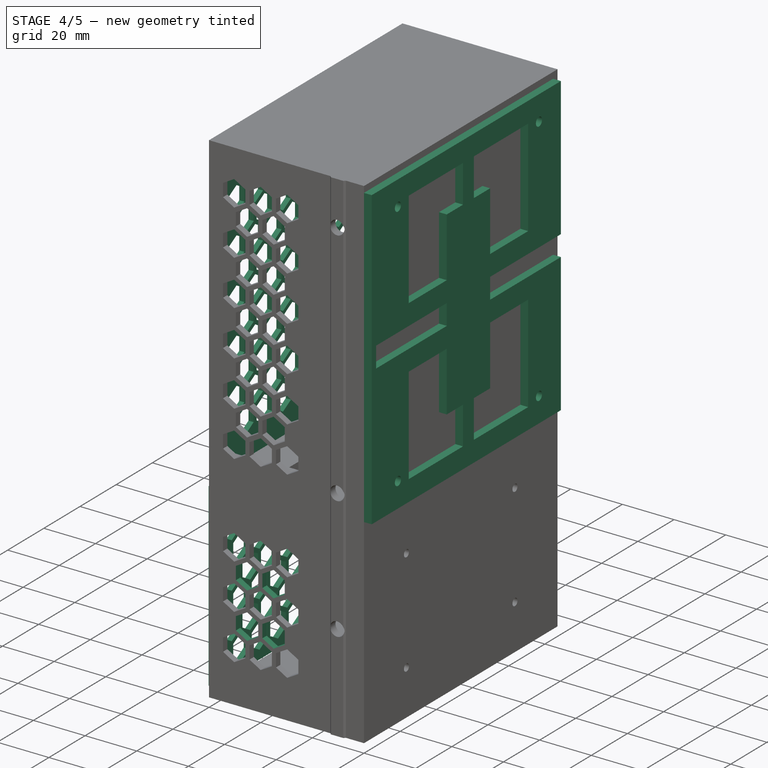
[diagram: stage 4 of 5 — iso view after this stage's code; geometry added in this stage tinted green]
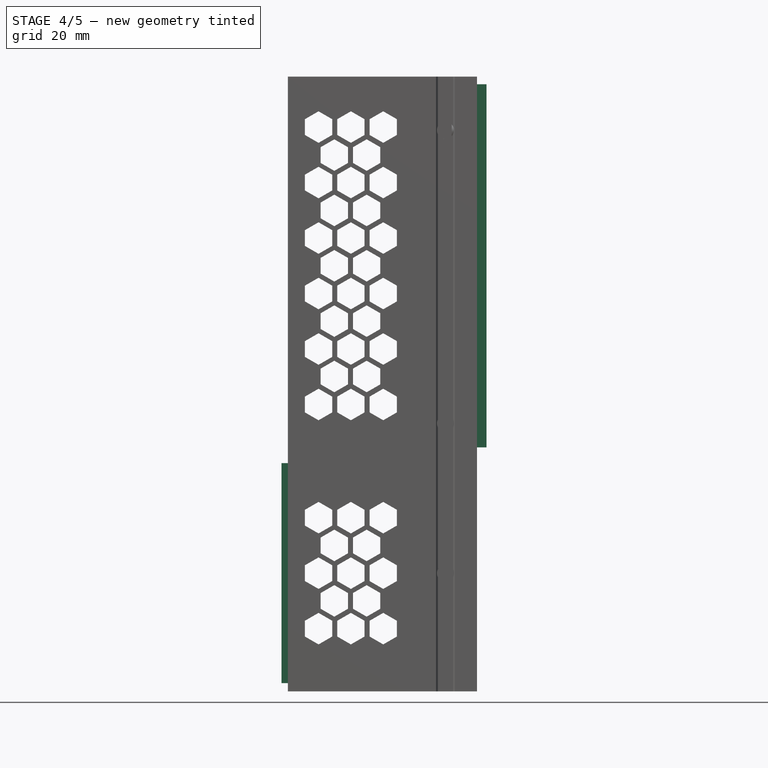
[diagram: stage 4 of 5 — front view after this stage's code; geometry added in this stage tinted green]
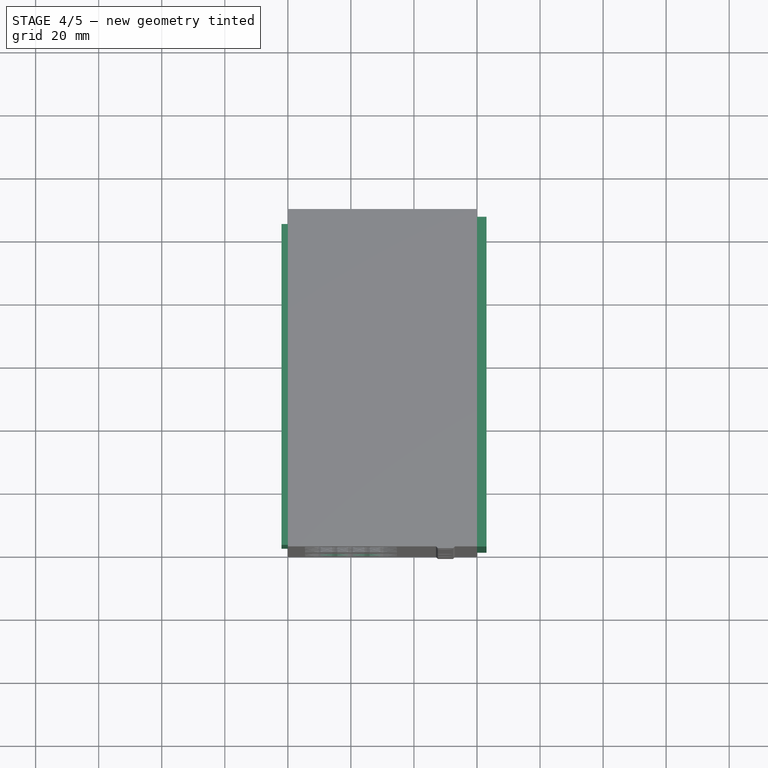
[diagram: stage 4 of 5 — top view after this stage's code; geometry added in this stage tinted green]
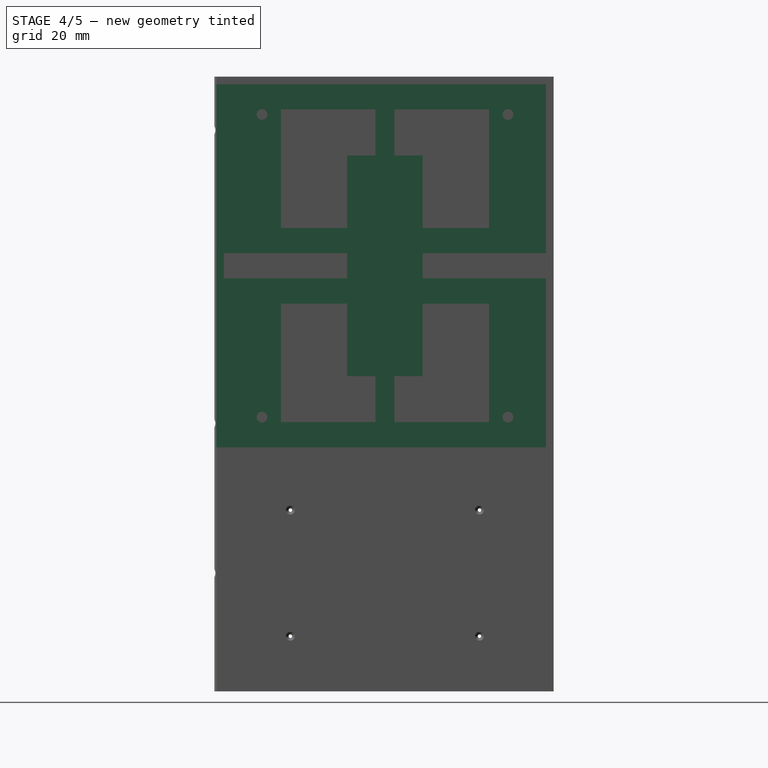
[diagram: stage 4 of 5 — right view after this stage's code; geometry added in this stage tinted green]
FEATURE [Sketcher::SketchObject] Sketch013
  AttachmentOffset = pos=(0,0,119.6) rot=(0,0,1;0rad)
  FullyConstrained = true
  MapMode = 5
  Placement = pos=(0,0,119.6) rot=(0,0,1;0rad)
  Support = -> [XY_Plane]
  expr: Constraints[221] = Sketch033.Constraints[85] / 2
  expr: Constraints[166] = Sketch033.Constraints[23]
  expr: Constraints[168] = Sketch033.Constraints[23]
  expr: .AttachmentOffset.Base.z = Sketch.Constraints.hight - 0.4mm
  expr: Constraints[83] = Sketch033.Constraints[96]
  expr: Constraints[24] = Sketch033.Constraints[15]
  expr: Constraints[101] = Sketch033.Constraints[76]
  expr: Constraints[102] = Sketch033.Constraints[76]
  expr: Constraints[136] = Sketch033.Constraints[77]
  expr: Constraints[11] = Sketch033.Constraints[2]
  expr: Constraints[84] = Sketch033.Constraints[77]
  expr: Constraints[25] = Sketch033.Constraints[16]
  expr: Constraints[85] = Sketch033.Constraints[96]
  sketch-geometry (76):
    g0: LineSegment StartX=-22.4 StartY=57 StartZ=0 EndX=-19 EndY=57 EndZ=0
    g1: LineSegment StartX=-19 StartY=57 StartZ=0 EndX=-19 EndY=44 EndZ=0
    g2: LineSegment StartX=-19 StartY=44 StartZ=0 EndX=-22.4 EndY=44 EndZ=0
    g3: LineSegment StartX=-22.4 StartY=44 StartZ=0 EndX=-22.4 EndY=57 EndZ=0
    g4: LineSegment StartX=0 StartY=53.5 StartZ=0 EndX=-19 EndY=53.5 EndZ=0
    g5: ArcOfCircle CenterX=-41 CenterY=17.5 CenterZ=0 NormalX=0 NormalY=0 NormalZ=1 AngleXU=0 Radius=4.5 StartAngle=1.5708 EndAngle=4.71239
    g6: ArcOfCircle CenterX=-23 CenterY=17.5 CenterZ=0 NormalX=0 NormalY=0 NormalZ=1 AngleXU=0 Radius=4.5 StartAngle=4.71239 EndAngle=7.85398
    g7: LineSegment StartX=-41 StartY=13 StartZ=0 EndX=-23 EndY=13 EndZ=0
    g8: LineSegment StartX=-41 StartY=22 StartZ=0 EndX=-23 EndY=22 EndZ=0
    g9: ArcOfCircle CenterX=-38 CenterY=98.5 CenterZ=0 NormalX=0 NormalY=0 NormalZ=1 AngleXU=0 Radius=4.5 StartAngle=1.5708 EndAngle=4.71239
    g10: ArcOfCircle CenterX=-23 CenterY=98.5 CenterZ=0 NormalX=0 NormalY=0 NormalZ=1 AngleXU=0 Radius=4.5 StartAngle=4.71239 EndAngle=7.85398
    g11: LineSegment StartX=-38 StartY=94 StartZ=0 EndX=-23 EndY=94 EndZ=0
    g12: LineSegment StartX=-38 StartY=103 StartZ=0 EndX=-23 EndY=103 EndZ=0
    g13: LineSegment StartX=-42.5 StartY=98.5 StartZ=0 EndX=-18.5 EndY=98.5 EndZ=0
    g14: ArcOfCircle CenterX=-18.5754 CenterY=18.3201 CenterZ=0 NormalX=0 NormalY=0 NormalZ=1 AngleXU=0 Radius=0.5 StartAngle=3.32485 EndAngle=6.46645
    g15: ArcOfCircle CenterX=-18.5754 CenterY=16.6799 CenterZ=0 NormalX=0 NormalY=0 NormalZ=1 AngleXU=0 Radius=0.5 StartAngle=6.09993 EndAngle=9.24152
    g16: ArcOfCircle CenterX=-45.4246 CenterY=18.3201 CenterZ=0 NormalX=0 NormalY=0 NormalZ=1 AngleXU=0 Radius=0.5 StartAngle=2.95833 EndAngle=6.09993
    g17: ArcOfCircle CenterX=-45.4246 CenterY=16.6799 CenterZ=0 NormalX=0 NormalY=0 NormalZ=1 AngleXU=0 Radius=0.5 StartAngle=0.183259 EndAngle=3.32485
    g18: LineSegment StartX=-41 StartY=13.5 StartZ=0 EndX=-23 EndY=13.5 EndZ=0
    g19: LineSegment StartX=-41 StartY=12.5 StartZ=0 EndX=-23 EndY=12.5 EndZ=0
    g20: LineSegment StartX=-41 StartY=21.5 StartZ=0 EndX=-23 EndY=21.5 EndZ=0
    g21: LineSegment StartX=-41 StartY=22.5 StartZ=0 EndX=-23 EndY=22.5 EndZ=0
    g22: ArcOfCircle CenterX=-41 CenterY=17.5 CenterZ=0 NormalX=0 NormalY=0 NormalZ=1 AngleXU=0 Radius=4 StartAngle=1.5708 EndAngle=2.95833
    g23: ArcOfCircle CenterX=-41 CenterY=17.5 CenterZ=0 NormalX=0 NormalY=0 NormalZ=1 AngleXU=0 Radius=5 StartAngle=1.5708 EndAngle=2.95833
    g24: ArcOfCircle CenterX=-41 CenterY=17.5 CenterZ=0 NormalX=0 NormalY=0 NormalZ=1 AngleXU=0 Radius=4 StartAngle=3.32485 EndAngle=4.71239
    g25: ArcOfCircle CenterX=-41 CenterY=17.5 CenterZ=0 NormalX=0 NormalY=0 NormalZ=1 AngleXU=0 Radius=5 StartAngle=3.32485 EndAngle=4.71239
    g26: ArcOfCircle CenterX=-23 CenterY=17.5 CenterZ=0 NormalX=0 NormalY=0 NormalZ=1 AngleXU=0 Radius=4 StartAngle=0.18326 EndAngle=1.5708
    g27: ArcOfCircle CenterX=-23 CenterY=17.5 CenterZ=0 NormalX=0 NormalY=0 NormalZ=1 AngleXU=0 Radius=5 StartAngle=0.18326 EndAngle=1.5708
    g28: ArcOfCircle CenterX=-23 CenterY=17.5 CenterZ=0 NormalX=0 NormalY=0 NormalZ=1 AngleXU=0 Radius=4 StartAngle=4.71239 EndAngle=6.09993
    g29: ArcOfCircle CenterX=-23 CenterY=17.5 CenterZ=0 NormalX=0 NormalY=0 NormalZ=1 AngleXU=0 Radius=5 StartAngle=4.71239 EndAngle=6.09993
    g30: LineSegment StartX=-41 StartY=17.5 StartZ=0 EndX=-45.4246 EndY=18.3201 EndZ=0
    g31: LineSegment StartX=-41 StartY=17.5 StartZ=0 EndX=-45.4246 EndY=16.6799 EndZ=0
    g32: LineSegment StartX=-23 StartY=17.5 StartZ=0 EndX=-18.5754 EndY=18.3201 EndZ=0
    g33: LineSegment StartX=-23 StartY=17.5 StartZ=0 EndX=-18.5754 EndY=16.6799 EndZ=0
    g34: LineSegment StartX=-45.5 StartY=17.5 StartZ=0 EndX=-18.5 EndY=17.5 EndZ=0
    g35: LineSegment StartX=-23 StartY=98.5 StartZ=0 EndX=-18.5754 EndY=99.3201 EndZ=0
    g36: LineSegment StartX=-23 StartY=98.5 StartZ=0 EndX=-18.5754 EndY=97.6799 EndZ=0
    g37: LineSegment StartX=-38 StartY=98.5 StartZ=0 EndX=-42.4246 EndY=99.3201 EndZ=0
    g38: LineSegment StartX=-38 StartY=98.5 StartZ=0 EndX=-42.4246 EndY=97.6799 EndZ=0
    g39: ArcOfCircle CenterX=-42.4246 CenterY=99.3201 CenterZ=0 NormalX=0 NormalY=0 NormalZ=1 AngleXU=0 Radius=0.5 StartAngle=2.95833 EndAngle=6.09993
    g40: ArcOfCircle CenterX=-38 CenterY=98.5 CenterZ=0 NormalX=0 NormalY=0 NormalZ=1 AngleXU=0 Radius=4 StartAngle=1.5708 EndAngle=2.95833
    g41: LineSegment StartX=-38 StartY=102.5 StartZ=0 EndX=-23 EndY=102.5 EndZ=0
    g42: ArcOfCircle CenterX=-23 CenterY=98.5 CenterZ=0 NormalX=0 NormalY=0 NormalZ=1 AngleXU=0 Radius=4 StartAngle=0.18326 EndAngle=1.5708
    g43: ArcOfCircle CenterX=-18.5754 CenterY=99.3201 CenterZ=0 NormalX=0 NormalY=0 NormalZ=1 AngleXU=0 Radius=0.5 StartAngle=3.32485 EndAngle=6.46644
    g44: ArcOfCircle CenterX=-23 CenterY=98.5 CenterZ=0 NormalX=0 NormalY=0 NormalZ=1 AngleXU=0 Radius=5 StartAngle=0.18326 EndAngle=1.5708
    g45: LineSegment StartX=-23 StartY=103.5 StartZ=0 EndX=-38 EndY=103.5 EndZ=0
    g46: ArcOfCircle CenterX=-38 CenterY=98.5 CenterZ=0 NormalX=0 NormalY=0 NormalZ=1 AngleXU=0 Radius=5 StartAngle=1.5708 EndAngle=2.95833
    g47: ArcOfCircle CenterX=-42.4246 CenterY=97.6799 CenterZ=0 NormalX=0 NormalY=0 NormalZ=1 AngleXU=0 Radius=0.5 StartAngle=0.18326 EndAngle=3.32485
    g48: ArcOfCircle CenterX=-38 CenterY=98.5 CenterZ=0 NormalX=0 NormalY=0 NormalZ=1 AngleXU=0 Radius=4 StartAngle=3.32485 EndAngle=4.71239
    g49: LineSegment StartX=-38 StartY=94.5 StartZ=0 EndX=-23 EndY=94.5 EndZ=0
    g50: LineSegment StartX=-38 StartY=93.5 StartZ=0 EndX=-23 EndY=93.5 EndZ=0
    g51: ArcOfCircle CenterX=-23 CenterY=98.5 CenterZ=0 NormalX=0 NormalY=0 NormalZ=1 AngleXU=0 Radius=4 StartAngle=4.71239 EndAngle=6.09993
    g52: ArcOfCircle CenterX=-18.5754 CenterY=97.6799 CenterZ=0 NormalX=0 NormalY=0 NormalZ=1 AngleXU=0 Radius=0.5 StartAngle=6.09993 EndAngle=9.24152
    g53: ArcOfCircle CenterX=-23 CenterY=98.5 CenterZ=0 NormalX=0 NormalY=0 NormalZ=1 AngleXU=0 Radius=5 StartAngle=4.71239 EndAngle=6.09993
    g54: ArcOfCircle CenterX=-38 CenterY=98.5 CenterZ=0 NormalX=0 NormalY=0 NormalZ=1 AngleXU=0 Radius=5 StartAngle=3.32485 EndAngle=4.71239
    g55: ArcOfCircle CenterX=-20.7 CenterY=44 CenterZ=0 NormalX=0 NormalY=0 NormalZ=1 AngleXU=0 Radius=1.7 StartAngle=3.14159 EndAngle=6.28319
    g56: LineSegment StartX=-31 StartY=38.5 StartZ=0 EndX=-19.5 EndY=38.5 EndZ=0
    g57: LineSegment StartX=-19.5 StartY=38.5 StartZ=0 EndX=-19.5 EndY=25.5 EndZ=0
    g58: LineSegment StartX=-19.5 StartY=25.5 StartZ=0 EndX=-31 EndY=25.5 EndZ=0
    g59: LineSegment StartX=-31 StartY=25.5 StartZ=0 EndX=-31 EndY=38.5 EndZ=0
    g60: LineSegment StartX=-31 StartY=32 StartZ=0 EndX=-19.5 EndY=32 EndZ=0
    g61: ArcOfCircle CenterX=-20.5 CenterY=38.5 CenterZ=0 NormalX=0 NormalY=0 NormalZ=1 AngleXU=0 Radius=0.5 StartAngle=4.71239 EndAngle=7.85398
    g62: ArcOfCircle CenterX=-19.5 CenterY=37.5 CenterZ=0 NormalX=0 NormalY=0 NormalZ=1 AngleXU=0 Radius=0.5 StartAngle=2.14804e-07 EndAngle=3.14159
    g63: ArcOfCircle CenterX=-19.5 CenterY=26.5 CenterZ=0 NormalX=0 NormalY=0 NormalZ=1 AngleXU=0 Radius=0.5 StartAngle=3.14159 EndAngle=6.28319
    g64: ArcOfCircle CenterX=-20.5 CenterY=25.5 CenterZ=0 NormalX=0 NormalY=0 NormalZ=1 AngleXU=0 Radius=0.5 StartAngle=4.71239 EndAngle=7.85398
    g65: ArcOfCircle CenterX=-31 CenterY=25.5 CenterZ=0 NormalX=0 NormalY=0 NormalZ=1 AngleXU=0 Radius=0.5 StartAngle=3.14159 EndAngle=4.71239
    g66: ArcOfCircle CenterX=-31 CenterY=38.5 CenterZ=0 NormalX=0 NormalY=0 NormalZ=1 AngleXU=0 Radius=0.5 StartAngle=1.5708 EndAngle=3.14159
    g67: LineSegment StartX=-31 StartY=39 StartZ=0 EndX=-20.5 EndY=39 EndZ=0
    g68: LineSegment StartX=-31 StartY=25 StartZ=0 EndX=-20.5 EndY=25 EndZ=0
    g69: LineSegment StartX=-20.5 StartY=26 StartZ=0 EndX=-30.5 EndY=26 EndZ=0
    g70: LineSegment StartX=-30.5 StartY=26 StartZ=0 EndX=-30.5 EndY=38 EndZ=0
    g71: LineSegment StartX=-30.5 StartY=38 StartZ=0 EndX=-20.5 EndY=38 EndZ=0
    g72: LineSegment StartX=-31.5 StartY=38.5 StartZ=0 EndX=-31.5 EndY=25.5 EndZ=0
    g73: LineSegment StartX=-20 StartY=26.5 StartZ=0 EndX=-20 EndY=37.5 EndZ=0
    g74: LineSegment StartX=-19 StartY=37.5 StartZ=0 EndX=-19 EndY=26.5 EndZ=0
    g75: ArcOfCircle CenterX=-20.7 CenterY=57 CenterZ=0 NormalX=0 NormalY=0 NormalZ=1 AngleXU=0 Radius=1.7 StartAngle=2.25e-14 EndAngle=3.14159
  constraints (226):
    c: Coincident(g0,g1)
    c: Coincident(g1,g2)
    c: Coincident(g2,g3)
    c: Coincident(g3,g0)
    c: Horizontal(g0)
    c: Horizontal(g2)
    c: Vertical(g1)
    c: Vertical(g3)
    c: PointOnObject(g4,g-2)
    c: PointOnObject(g4,g1)
    c: Horizontal(g4)
    c: DistanceY(g-1,g4) = 53.5
    c: Tangent(g5,g8) = 1.5708
    c: Tangent(g5,g7) = -1.5708
    c: Tangent(g7,g6) = -1.5708
    c: Tangent(g8,g6) = 1.5708
    c: Horizontal(g7)
    c: Equal(g5,g6)
    c: Tangent(g9,g12) = 1.5708
    c: Tangent(g9,g11) = -1.5708
    c: Tangent(g11,g10) = -1.5708
    c: Tangent(g12,g10) = 1.5708
    c: Horizontal(g11)
    c: Equal(g9,g10)
    c: DistanceY(g9,g9) = 9
    c: DistanceX(g12,g12) = 15
    c: Equal(g9,g5)
    c: PointOnObject(g13,g9)
    c: PointOnObject(g13,g10)
    c: PointOnObject(g9,g13)
    c: PointOnObject(g10,g13)
    c: PointOnObject(g14,g6)
    c: PointOnObject(g16,g5)
    c: Horizontal(g18)
    c: Horizontal(g19)
    c: Horizontal(g20)
    c: Horizontal(g21)
    c: Coincident(g22,g5)
    c: Coincident(g22,g20)
    c: Coincident(g22,g16)
    c: Coincident(g23,g22)
    c: Coincident(g23,g21)
    c: Coincident(g23,g16)
    c: Coincident(g24,g22)
    c: Coincident(g24,g18)
    c: Coincident(g24,g17)
    c: Coincident(g25,g22)
    c: Coincident(g25,g19)
    c: Coincident(g25,g17)
    c: Coincident(g26,g6)
    c: Coincident(g26,g20)
    c: Coincident(g26,g14)
    c: Coincident(g27,g26)
    c: Coincident(g27,g21)
    c: Coincident(g27,g14)
    c: Coincident(g28,g26)
    c: Coincident(g28,g15)
    c: Coincident(g28,g18)
    c: Coincident(g29,g26)
    c: Coincident(g29,g15)
    c: Coincident(g29,g19)
    c: Coincident(g30,g22)
    c: Coincident(g30,g16)
    c: Coincident(g31,g22)
    c: Coincident(g31,g17)
    c: Coincident(g32,g26)
    c: Coincident(g32,g14)
    c: Coincident(g33,g26)
    c: Coincident(g33,g15)
    c: Tangent(g23,g16)
    c: Tangent(g16,g22)
    c: Tangent(g22,g20)
    c: Tangent(g26,g14)
    c: Tangent(g14,g27)
    c: Tangent(g27,g21)
    c: Tangent(g24,g17)
    c: Tangent(g17,g25)
    c: Tangent(g25,g19)
    c: Tangent(g19,g29)
    c: Tangent(g29,g15)
    c: Tangent(g15,g28)
    c: Tangent(g28,g18)
    c: Equal(g14,g17)
    c: Angle(g33,g32) = 0.366519
    c: DistanceY(g19,g18) = 1
    c: Angle(g30,g31) = 0.366519
    c: PointOnObject(g15,g6)
    c: PointOnObject(g34,g5)
    c: PointOnObject(g34,g6)
    c: PointOnObject(g22,g34)
    c: Symmetric(g17,g16,g34)
    c: Symmetric(g15,g14,g34)
    c: Tangent(g21,g23)
    c: Coincident(g35,g10)
    c: PointOnObject(g35,g10)
    c: Coincident(g36,g10)
    c: Coincident(g37,g9)
    c: PointOnObject(g37,g9)
    c: Coincident(g38,g9)
    c: Symmetric(g38,g37,g13)
    c: Symmetric(g36,g35,g13)
    c: Angle(g36,g35) = 0.366519
    c: Angle(g37,g38) = 0.366519
    c: Coincident(g39,g37)
    c: Coincident(g40,g9)
    c: Coincident(g40,g39)
    c: Coincident(g41,g40)
    c: Horizontal(g41)
    c: Coincident(g42,g10)
    c: Coincident(g42,g41)
    c: Coincident(g43,g35)
    c: Coincident(g43,g42)
    c: Coincident(g44,g42)
    c: Coincident(g44,g43)
    c: Coincident(g45,g44)
    c: Horizontal(g45)
    c: Coincident(g46,g40)
    c: Coincident(g46,g45)
    c: Coincident(g46,g39)
    c: Coincident(g47,g38)
    c: Coincident(g48,g40)
    c: Coincident(g48,g47)
    c: Coincident(g49,g48)
    c: Horizontal(g49)
    c: Horizontal(g50)
    c: Coincident(g51,g42)
    c: Coincident(g51,g49)
    c: Coincident(g52,g36)
    c: Coincident(g52,g51)
    c: Coincident(g53,g42)
    c: Coincident(g53,g52)
    c: Coincident(g53,g50)
    c: Coincident(g54,g40)
    c: Coincident(g54,g50)
    c: Coincident(g54,g47)
    c: Equal(g43,g47)
    c: DistanceY(g50,g48) = 1
    c: Tangent(g46,g39)
    c: Tangent(g39,g40)
    c: Tangent(g40,g41)
    c: Tangent(g41,g42)
    c: Tangent(g42,g43)
    c: Tangent(g43,g44)
    c: Tangent(g47,g54)
    c: Tangent(g54,g50)
    c: Tangent(g50,g53)
    c: Tangent(g53,g52)
    c: Tangent(g49,g48)
    c: DistanceY(g3,g3) = 13
    c: DistanceX(g0,g0) = 3.4
    c: PointOnObject(g55,g2)
    c: Coincident(g55,g1)
    c: Coincident(g55,g3)
    c: DistanceY(g-1,g1) = 44
    c: Tangent(g52,g51)
    c: Tangent(g44,g45)
    c: Tangent(g49,g51)
    c: Coincident(g56,g57)
    c: Coincident(g57,g58)
    c: Coincident(g58,g59)
    c: Coincident(g59,g56)
    c: Horizontal(g56)
    c: Horizontal(g58)
    c: Vertical(g57)
    c: Vertical(g59)
    c: DistanceX(g8,g8) = 18
    c: DistanceX(g42,g-1) = 23
    c: DistanceY(g22,g4) = 36
    c: DistanceX(g26,g-1) = 23
    c: DistanceX(g56,g-1) = 19.5
    c: DistanceY(g59,g59) = 13
    c: DistanceX(g56,g56) = 11.5
    c: PointOnObject(g60,g59)
    c: PointOnObject(g60,g57)
    c: DistanceY(g-1,g60) = 32
    c: PointOnObject(g61,g56)
    c: PointOnObject(g62,g57)
    c: PointOnObject(g64,g58)
    c: Coincident(g65,g58)
    c: Coincident(g66,g56)
    c: Coincident(g67,g66)
    c: Coincident(g67,g61)
    c: Horizontal(g67)
    c: Coincident(g68,g65)
    c: Coincident(g68,g64)
    c: Horizontal(g68)
    c: Coincident(g69,g64)
    c: Horizontal(g69)
    c: Coincident(g70,g69)
    c: Vertical(g70)
    c: Coincident(g71,g70)
    c: Coincident(g71,g61)
    c: Horizontal(g71)
    c: Coincident(g72,g66)
    c: Coincident(g72,g65)
    c: Vertical(g72)
    c: Coincident(g73,g63)
    c: Coincident(g73,g62)
    c: Vertical(g73)
    c: Coincident(g74,g62)
    c: Coincident(g74,g63)
    c: Vertical(g74)
    c: Equal(g64,g62)
    c: Symmetric(g66,g65,g60)
    c: Tangent(g63,g73)
    c: Tangent(g63,g74)
    c: Tangent(g64,g68)
    c: Tangent(g64,g69)
    c: Tangent(g68,g65)
    c: Tangent(g65,g72)
    c: Tangent(g72,g66)
    c: Tangent(g66,g67)
    c: Tangent(g67,g61)
    c: Tangent(g61,g71)
    c: Tangent(g73,g62)
    c: DistanceX(g64,g57) = 1
    c: Symmetric(g63,g62,g60)
    c: DistanceY(g63,g62) = 11
    c: Vertical(g64,g61)
    c: DistanceX(g66,g70) = 1
    c: DistanceY(g70,g66) = 1
    c: DistanceY(g4,g13) = 45
    c: PointOnObject(g75,g0)
    c: Coincident(g75,g3)
    c: Coincident(g75,g1)
    c: Vertical(g62,g1)
FEATURE [Sketcher::SketchObject] Sketch014
  FullyConstrained = false
  MapMode = 5
  Support = -> [XY_Plane]
  sketch-geometry (5):
    g0: LineSegment StartX=-13 StartY=0 StartZ=0 EndX=-7 EndY=0 EndZ=0
    g1: LineSegment StartX=-7 StartY=0 StartZ=0 EndX=-7.6 EndY=-0.6 EndZ=0
    g2: LineSegment StartX=-7.6 StartY=-0.6 StartZ=0 EndX=-12.4 EndY=-0.6 EndZ=0
    g3: LineSegment StartX=-12.4 StartY=-0.6 StartZ=0 EndX=-13 EndY=0 EndZ=0
    g4: LineSegment StartX=-10 StartY=-0.6 StartZ=0 EndX=-10 EndY=0 EndZ=0
  constraints (14):
    c: PointOnObject(g0,g-1)
    c: PointOnObject(g0,g-1)
    c: Coincident(g0,g1)
    c: Coincident(g1,g2)
    c: Coincident(g2,g3)
    c: Coincident(g3,g0)
    c: PointOnObject(g4,g2)
    c: PointOnObject(g4,g0)
    c: Symmetric(g2,g1,g4)
    c: Symmetric(g0,g0,g4)
    c: Perpendicular(g1,g3)
    c: DistanceX(g0,g0) = 6
    c: DistanceX(g4,g-1) = 10
    c: DistanceY(g1,g1) = 0.6
FEATURE [Sketcher::SketchObject] Sketch015
  FullyConstrained = false
  MapMode = 5
  Placement = pos=(0,0,0) rot=(1,0,0;1.5708rad)
  Support = -> [XZ_Plane]
  sketch-geometry (3):
    g0: Circle CenterX=-10 CenterY=103 CenterZ=0 NormalX=0 NormalY=0 NormalZ=1 AngleXU=0 Radius=2.7
    g1: Circle CenterX=-10 CenterY=10 CenterZ=0 NormalX=0 NormalY=0 NormalZ=1 AngleXU=0 Radius=2.7
    g2: LineSegment StartX=-10 StartY=103 StartZ=0 EndX=-10 EndY=10 EndZ=0
  constraints (8):
    c: Coincident(g2,g0)
    c: Coincident(g2,g1)
    c: Vertical(g2)
    c: DistanceX(g1,g-1) = 10
    c: Equal(g0,g1)
    c: Diameter(g0) = 5.4
    c: DistanceY(g-1,g0) = 103
    c: DistanceY(g-1,g1) = 10
FEATURE [Sketcher::SketchObject] Sketch016
  AttachmentOffset = pos=(0,0,-60) rot=(0,0,1;0rad)
  FullyConstrained = true
  MapMode = 5
  Placement = pos=(-60,1.33e-14,-1.33e-14) rot=(0.57735,0.57735,0.57735;2.0944rad)
  Support = -> [YZ_Plane002]
  expr: Constraints[24] = Sketch.Constraints.width - 2 * Sketch001.Constraints.wall_thickness - 0.4mm
  expr: Constraints[32] = Sketch.Constraints.hight - 2 * Sketch001.Constraints.wall_thickness - 0.4mm
  expr: Constraints[35] = Sketch.Constraints.width / 2
  expr: Constraints[34] = Sketch.Constraints.hight / 2
  expr: Constraints[31] = Sketch.Constraints.width - 2 * (Sketch001.Constraints.wall_thickness + Sketch001.Constraints.CornerRadius)
  expr: Constraints[33] = Sketch.Constraints.hight - 2 * (Sketch001.Constraints.wall_thickness + Sketch001.Constraints.CornerRadius)
  sketch-geometry (14):
    g0: LineSegment StartX=2.6 StartY=117.4 StartZ=0 EndX=104.4 EndY=117.4 EndZ=0
    g1: LineSegment StartX=104.4 StartY=117.4 StartZ=0 EndX=104.4 EndY=2.6 EndZ=0
    g2: LineSegment StartX=104.4 StartY=2.6 StartZ=0 EndX=2.6 EndY=2.6 EndZ=0
    g3: LineSegment StartX=2.6 StartY=2.6 StartZ=0 EndX=2.6 EndY=117.4 EndZ=0
    g4: Circle CenterX=5.4 CenterY=114.6 CenterZ=0 NormalX=0 NormalY=0 NormalZ=1 AngleXU=0 Radius=1.7
    g5: Circle CenterX=101.6 CenterY=114.6 CenterZ=0 NormalX=0 NormalY=0 NormalZ=1 AngleXU=0 Radius=1.7
    g6: Circle CenterX=101.6 CenterY=5.4 CenterZ=0 NormalX=0 NormalY=0 NormalZ=1 AngleXU=0 Radius=1.7
    g7: Circle CenterX=5.4 CenterY=5.4 CenterZ=0 NormalX=0 NormalY=0 NormalZ=1 AngleXU=0 Radius=1.7
    g8: LineSegment StartX=5.4 StartY=114.6 StartZ=0 EndX=101.6 EndY=114.6 EndZ=0
    g9: LineSegment StartX=101.6 StartY=114.6 StartZ=0 EndX=101.6 EndY=5.4 EndZ=0
    g10: LineSegment StartX=101.6 StartY=5.4 StartZ=0 EndX=5.4 EndY=5.4 EndZ=0
    g11: LineSegment StartX=5.4 StartY=5.4 StartZ=0 EndX=5.4 EndY=114.6 EndZ=0
    g12: LineSegment StartX=53.5 StartY=5.4 StartZ=0 EndX=53.5 EndY=2.6 EndZ=0
    g13: LineSegment StartX=2.6 StartY=60 StartZ=0 EndX=5.4 EndY=60 EndZ=0
  constraints (36):
    c: Coincident(g0,g1)
    c: Coincident(g1,g2)
    c: Coincident(g2,g3)
    c: Coincident(g3,g0)
    c: Horizontal(g0)
    c: Horizontal(g2)
    c: Vertical(g1)
    c: Vertical(g3)
    c: Coincident(g8,g9)
    c: Coincident(g9,g10)
    c: Coincident(g10,g11)
    c: Coincident(g11,g8)
    c: Horizontal(g8)
    c: Horizontal(g10)
    c: Vertical(g9)
    c: Vertical(g11)
    c: Coincident(g6,g9)
    c: Coincident(g10,g7)
    c: Coincident(g4,g8)
    c: Coincident(g5,g8)
    c: Equal(g4,g5)
    c: Equal(g5,g6)
    c: Equal(g6,g7)
    c: Diameter(g4) = 3.4
    c: DistanceX(g2,g2) = 101.8
    c: Vertical(g12)
    c: Horizontal(g13)
    c: Symmetric(g2,g0,g13)
    c: Symmetric(g4,g7,g13)
    c: Symmetric(g7,g6,g12)
    c: Symmetric(g2,g1,g12)
    c: DistanceX(g10,g10) = 96.2
    c: DistanceY(g3,g3) = 114.8
    c: DistanceY(g11,g11) = 109.2
    c: DistanceY(g-1,g13) = 60
    c: DistanceX(g-1,g12) = 53.5
FEATURE [PartDesign::Pad] Pad005
  AllowMultiFace = false
  Direction = (1,1,1)
  Length = 2
  Length2 = 100
  Placement = pos=(0,0,0) rot=(0.57735,0.57735,0.57735;2.0944rad)
  Profile = -> Sketch016
  Type = 0
  expr: Length = Pocket001.Length
FEATURE [App::DocumentObjectGroup] Group001  label="TL-Smoother"
  Group = -> [Compound011,Compound012,Compound013,Compound014]
FEATURE [Sketcher::SketchObject] Sketch017
  FullyConstrained = true
  MapMode = 5
  Placement = pos=(0,0,0) rot=(0.57735,0.57735,0.57735;2.0944rad)
  Support = -> [YZ_Plane003]
  expr: Constraints[78] = Sketch001.Constraints.wall_thickness
  expr: Constraints[7] = Sketch.Constraints.hight / 2
  expr: Constraints[16] = Sketch001.Constraints.wall_thickness
  expr: Constraints[6] = Sketch.Constraints.width / 2
  expr: Constraints[17] = Sketch001.Constraints.wall_thickness
  expr: Constraints[5] = Sketch.Constraints.width
  expr: Constraints[4] = Sketch.Constraints.hight
  sketch-geometry (46):
    g0: LineSegment StartX=0 StartY=60 StartZ=0 EndX=107 EndY=60 EndZ=0
    g1: LineSegment StartX=53.5 StartY=0 StartZ=0 EndX=53.5 EndY=120 EndZ=0
    g2: LineSegment StartX=0 StartY=117.6 StartZ=0 EndX=104.6 EndY=117.6 EndZ=0
    g3: LineSegment StartX=104.6 StartY=117.6 StartZ=0 EndX=104.6 EndY=64 EndZ=0
    g4: LineSegment StartX=104.6 StartY=2.4 StartZ=0 EndX=0 EndY=2.4 EndZ=0
    g5: LineSegment StartX=0 StartY=2.4 StartZ=0 EndX=0 EndY=117.6 EndZ=0
    g6: LineSegment StartX=2.4 StartY=64 StartZ=0 EndX=41.5 EndY=64 EndZ=0
    g7: LineSegment StartX=41.5 StartY=64 StartZ=0 EndX=41.5 EndY=56 EndZ=0
    g8: LineSegment StartX=41.5 StartY=56 StartZ=0 EndX=2.4 EndY=56 EndZ=0
    g9: LineSegment StartX=65.5 StartY=64 StartZ=0 EndX=104.6 EndY=64 EndZ=0
    g10: LineSegment StartX=104.6 StartY=56 StartZ=0 EndX=65.5 EndY=56 EndZ=0
    g11: LineSegment StartX=65.5 StartY=56 StartZ=0 EndX=65.5 EndY=64 EndZ=0
    g12: LineSegment StartX=2.4 StartY=64 StartZ=0 EndX=2.4 EndY=56 EndZ=0
    g13: LineSegment StartX=104.6 StartY=56 StartZ=0 EndX=104.6 EndY=2.4 EndZ=0
    g14: LineSegment StartX=86.5 StartY=109.6 StartZ=0 EndX=86.5 EndY=72 EndZ=0
    g15: LineSegment StartX=20.5 StartY=72 StartZ=0 EndX=20.5 EndY=109.6 EndZ=0
    g16: LineSegment StartX=41.5 StartY=95 StartZ=0 EndX=41.5 EndY=72 EndZ=0
    g17: LineSegment StartX=41.5 StartY=72 StartZ=0 EndX=20.5 EndY=72 EndZ=0
    g18: LineSegment StartX=86.5 StartY=72 StartZ=0 EndX=65.5 EndY=72 EndZ=0
    g19: LineSegment StartX=65.5 StartY=72 StartZ=0 EndX=65.5 EndY=95 EndZ=0
    g20: LineSegment StartX=86.5 StartY=48 StartZ=0 EndX=86.5 EndY=10.4 EndZ=0
    g21: LineSegment StartX=86.5 StartY=10.4 StartZ=0 EndX=56.5 EndY=10.4 EndZ=0
    g22: LineSegment StartX=20.5 StartY=10.4 StartZ=0 EndX=20.5 EndY=48 EndZ=0
    g23: LineSegment StartX=65.5 StartY=48 StartZ=0 EndX=86.5 EndY=48 EndZ=0
    g24: LineSegment StartX=65.5 StartY=25 StartZ=0 EndX=65.5 EndY=48 EndZ=0
    g25: LineSegment StartX=20.5 StartY=48 StartZ=0 EndX=41.5 EndY=48 EndZ=0
    g26: LineSegment StartX=41.5 StartY=48 StartZ=0 EndX=41.5 EndY=25 EndZ=0
    g27: LineSegment StartX=20.5 StartY=109.6 StartZ=0 EndX=50.5 EndY=109.6 EndZ=0
    g28: LineSegment StartX=50.5 StartY=109.6 StartZ=0 EndX=50.5 EndY=95 EndZ=0
    g29: LineSegment StartX=50.5 StartY=95 StartZ=0 EndX=41.5 EndY=95 EndZ=0
    g30: LineSegment StartX=86.5 StartY=109.6 StartZ=0 EndX=56.5 EndY=109.6 EndZ=0
    g31: LineSegment StartX=56.5 StartY=109.6 StartZ=0 EndX=56.5 EndY=95 EndZ=0
    g32: LineSegment StartX=56.5 StartY=95 StartZ=0 EndX=65.5 EndY=95 EndZ=0
    g33: LineSegment StartX=41.5 StartY=25 StartZ=0 EndX=50.5 EndY=25 EndZ=0
    g34: LineSegment StartX=50.5 StartY=25 StartZ=0 EndX=50.5 EndY=10.4 EndZ=0
    g35: LineSegment StartX=65.5 StartY=25 StartZ=0 EndX=56.5 EndY=25 EndZ=0
    g36: LineSegment StartX=56.5 StartY=25 StartZ=0 EndX=56.5 EndY=10.4 EndZ=0
    g37: LineSegment StartX=50.5 StartY=10.4 StartZ=0 EndX=20.5 EndY=10.4 EndZ=0
    g38: Circle CenterX=14.5 CenterY=108 CenterZ=0 NormalX=0 NormalY=0 NormalZ=1 AngleXU=0 Radius=1.7
    g39: Circle CenterX=92.5 CenterY=108 CenterZ=0 NormalX=0 NormalY=0 NormalZ=1 AngleXU=0 Radius=1.7
    g40: Circle CenterX=92.5 CenterY=12 CenterZ=0 NormalX=0 NormalY=0 NormalZ=1 AngleXU=0 Radius=1.7
    g41: Circle CenterX=14.5 CenterY=12 CenterZ=0 NormalX=0 NormalY=0 NormalZ=1 AngleXU=0 Radius=1.7
    g42: LineSegment StartX=14.5 StartY=108 StartZ=0 EndX=92.5 EndY=108 EndZ=0
    g43: LineSegment StartX=92.5 StartY=108 StartZ=0 EndX=92.5 EndY=12 EndZ=0
    g44: LineSegment StartX=92.5 StartY=12 StartZ=0 EndX=14.5 EndY=12 EndZ=0
    g45: LineSegment StartX=14.5 StartY=12 StartZ=0 EndX=14.5 EndY=108 EndZ=0
  constraints (128):
    c: PointOnObject(g0,g-2)
    c: Horizontal(g0)
    c: PointOnObject(g1,g-1)
    c: Vertical(g1)
    c: DistanceY(g1,g1) = 120
    c: DistanceX(g0,g0) = 107
    c: DistanceX(g-1,g1) = 53.5
    c: DistanceY(g-1,g0) = 60
    c: Coincident(g2,g3)
    c: Coincident(g13,g4)
    c: Coincident(g4,g5)
    c: Coincident(g5,g2)
    c: Horizontal(g2)
    c: Horizontal(g4)
    c: PointOnObject(g0,g5)
    c: Symmetric(g5,g5,g0)
    c: DistanceY(g2,g1) = 2.4
    c: DistanceX(g13,g0) = 2.4
    c: Coincident(g6,g7)
    c: Coincident(g7,g8)
    c: Horizontal(g6)
    c: Horizontal(g8)
    c: Vertical(g7)
    c: Coincident(g10,g11)
    c: Coincident(g11,g9)
    c: Horizontal(g9)
    c: Vertical(g11)
    c: Coincident(g12,g6)
    c: Coincident(g12,g8)
    c: Coincident(g13,g10)
    c: Coincident(g3,g9)
    c: Symmetric(g10,g3,g0)
    c: Symmetric(g8,g6,g0)
    c: Equal(g7,g11)
    c: Symmetric(g7,g10,g1)
    c: DistanceY(g12,g12) = 8
    c: Vertical(g14)
    c: Vertical(g15)
    c: Coincident(g16,g17)
    c: Horizontal(g17)
    c: Vertical(g16)
    c: Coincident(g18,g19)
    c: Horizontal(g18)
    c: Vertical(g19)
    c: Coincident(g20,g21)
    c: Coincident(g37,g22)
    c: Horizontal(g21)
    c: Vertical(g20)
    c: Vertical(g22)
    c: Coincident(g24,g23)
    c: Horizontal(g23)
    c: Vertical(g24)
    c: Coincident(g25,g26)
    c: Horizontal(g25)
    c: Vertical(g26)
    c: Coincident(g15,g17)
    c: Coincident(g18,g14)
    c: Coincident(g20,g23)
    c: Coincident(g25,g22)
    c: Equal(g22,g20)
    c: Equal(g20,g14)
    c: Equal(g14,g15)
    c: Equal(g24,g26)
    c: Equal(g26,g16)
    c: Equal(g16,g19)
    c: Equal(g17,g25)
    c: Equal(g25,g23)
    c: Equal(g23,g18)
    c: Vertical(g23,g10)
    c: Vertical(g25,g7)
    c: DistanceX(g26,g24) = 24
    c: DistanceY(g20,g14) = 24
    c: Symmetric(g23,g18,g0)
    c: DistanceY(g24,g19) = 70
    c: DistanceX(g37,g21) = 66
    c: DistanceY(g20,g14) = 99.2
    c: Vertical(g13)
    c: Vertical(g3)
    c: DistanceX(g4,g8) = 2.4
    c: Coincident(g15,g27)
    c: Horizontal(g27)
    c: Coincident(g27,g28)
    c: Vertical(g28)
    c: Coincident(g28,g29)
    c: Coincident(g29,g16)
    c: Coincident(g14,g30)
    c: Horizontal(g30)
    c: Coincident(g30,g31)
    c: Vertical(g31)
    c: Coincident(g31,g32)
    c: Coincident(g32,g19)
    c: Horizontal(g32)
    c: Horizontal(g29)
    c: Equal(g27,g30)
    c: Symmetric(g25,g16,g0)
    c: DistanceX(g27,g30) = 6
    c: Coincident(g26,g33)
    c: Horizontal(g33)
    c: Coincident(g33,g34)
    c: PointOnObject(g34,g21)
    c: Vertical(g34)
    c: Coincident(g24,g35)
    c: Horizontal(g35)
    c: Coincident(g35,g36)
    c: Vertical(g36)
    c: Tangent(g21,g37)
    c: PointOnObject(g37,g34)
    c: Equal(g21,g30)
    c: Equal(g30,g37)
    c: Coincident(g21,g36)
    c: Coincident(g42,g43)
    c: Coincident(g43,g44)
    c: Coincident(g44,g45)
    c: Coincident(g45,g42)
    c: Horizontal(g42)
    c: Vertical(g43)
    c: Coincident(g40,g43)
    c: Coincident(g41,g44)
    c: Coincident(g42,g38)
    c: Coincident(g42,g39)
    c: Equal(g38,g39)
    c: Equal(g39,g40)
    c: Equal(g40,g41)
    c: Diameter(g40) = 3.4
    c: Symmetric(g41,g40,g1)
    c: Symmetric(g41,g38,g0)
    c: DistanceX(g44,g44) = 78
    c: DistanceY(g45,g45) = 96
FEATURE [PartDesign::Pad] Pad006
  AllowMultiFace = false
  Direction = (1,1,1)
  Length = 3
  Length2 = 100
  Placement = pos=(0,0,0) rot=(0.57735,0.57735,0.57735;2.0944rad)
  Profile = -> Sketch017
  Type = 0
FEATURE [PartDesign::Body] Body004  label="Smoother-Cover"
  Group = -> [Sketch024,Pad010,Sketch025,Pad011,Sketch026,Pocket014,Sketch027,Pocket015,MultiTransform,LinearPattern,LinearPattern001,Sketch028,Pocket016,MultiTransform001,LinearPattern002,LinearPattern003]
  Origin = -> Origin004
  Tip = -> MultiTransform001
FEATURE [Sketcher::SketchObject] Sketch029
  AttachmentOffset = pos=(0,0,-60) rot=(0,0,1;0rad)
  FullyConstrained = false
  MapMode = 5
  Placement = pos=(-60,1.33e-14,-1.33e-14) rot=(0.57735,0.57735,0.57735;2.0944rad)
  Support = -> [YZ_Plane002]
  expr: .AttachmentOffset.Base.z = -Pad.Length
  expr: Constraints[26] = Sketch.Constraints.width / 2
  expr: Constraints[25] = Sketch.Constraints.width
  expr: Constraints[24] = Sketch.Constraints.hight / 2
  expr: Constraints[23] = Sketch.Constraints.hight
  sketch-geometry (9):
    g0: LineSegment StartX=13.1699 StartY=106.5 StartZ=0 EndX=13.1699 EndY=101.5 EndZ=0
    g1: LineSegment StartX=13.1699 StartY=101.5 StartZ=0 EndX=17.5 EndY=99 EndZ=0
    g2: LineSegment StartX=17.5 StartY=99 StartZ=0 EndX=21.8301 EndY=101.5 EndZ=0
    g3: LineSegment StartX=21.8301 StartY=101.5 StartZ=0 EndX=21.8301 EndY=106.5 EndZ=0
    g4: LineSegment StartX=21.8301 StartY=106.5 StartZ=0 EndX=17.5 EndY=109 EndZ=0
    g5: LineSegment StartX=17.5 StartY=109 StartZ=0 EndX=13.1699 EndY=106.5 EndZ=0
    g6: Circle CenterX=17.5 CenterY=104 CenterZ=0 NormalX=0 NormalY=0 NormalZ=1 AngleXU=0 Radius=5
    g7: LineSegment StartX=53.5 StartY=120 StartZ=0 EndX=53.5 EndY=0 EndZ=0
    g8: LineSegment StartX=0 StartY=60 StartZ=0 EndX=107 EndY=60 EndZ=0
  constraints (25):
    c: Coincident(g0,g1)
    c: Coincident(g1,g2)
    c: Coincident(g2,g3)
    c: Coincident(g3,g4)
    c: Coincident(g4,g5)
    c: Coincident(g5,g0)
    c: Equal(g0, g1-g5) x5
    c: PointOnObject(g0,g6)
    c: PointOnObject(g1,g6)
    c: PointOnObject(g2,g6)
    c: PointOnObject(g3,g6)
    c: PointOnObject(g4,g6)
    c: PointOnObject(g5,g6)
    c: Vertical(g0)
    c: Diameter(g6) = 10
    c: PointOnObject(g7,g-1)
    c: Vertical(g7)
    c: Horizontal(g8)
    c: PointOnObject(g8,g-2)
    c: DistanceY(g7,g7) = 120
    c: DistanceY(g-1,g8) = 60
    c: DistanceX(g8,g8) = 107
    c: DistanceX(g-1,g7) = 53.5
    c: DistanceY(g8,g6) = 44
    c: DistanceX(g6,g7) = 36
FEATURE [Sketcher::SketchObject] Sketch030
  AttachmentOffset = pos=(0,0,-60) rot=(0,0,1;0rad)
  FullyConstrained = false
  MapMode = 5
  Placement = pos=(-60,1.33e-14,-1.33e-14) rot=(0.57735,0.57735,0.57735;2.0944rad)
  Support = -> [YZ_Plane002]
  expr: .AttachmentOffset.Base.z = -Pad.Length
  expr: Constraints[25] = Sketch.Constraints.hight
  expr: Constraints[24] = Sketch.Constraints.width / 2
  expr: Constraints[26] = Sketch.Constraints.hight / 2
  expr: Constraints[23] = Sketch.Constraints.width
  sketch-geometry (9):
    g0: LineSegment StartX=12.37 StartY=90.114 StartZ=0 EndX=16.7001 EndY=92.614 EndZ=0
    g1: LineSegment StartX=16.7001 StartY=92.614 StartZ=0 EndX=16.7001 EndY=97.614 EndZ=0
    g2: LineSegment StartX=16.7001 StartY=97.614 StartZ=0 EndX=12.37 EndY=100.114 EndZ=0
    g3: LineSegment StartX=12.37 StartY=100.114 StartZ=0 EndX=8.03987 EndY=97.614 EndZ=0
    g4: LineSegment StartX=8.03987 StartY=97.614 StartZ=0 EndX=8.03987 EndY=92.614 EndZ=0
    g5: LineSegment StartX=8.03987 StartY=92.614 StartZ=0 EndX=12.37 EndY=90.114 EndZ=0
    g6: Circle CenterX=12.37 CenterY=95.114 CenterZ=0 NormalX=0 NormalY=0 NormalZ=1 AngleXU=0 Radius=5
    g7: LineSegment StartX=53.5 StartY=120 StartZ=0 EndX=53.5 EndY=0 EndZ=0
    g8: LineSegment StartX=0 StartY=60 StartZ=0 EndX=107 EndY=60 EndZ=0
  constraints (25):
    c: Coincident(g0,g1)
    c: Coincident(g1,g2)
    c: Coincident(g2,g3)
    c: Coincident(g3,g4)
    c: Coincident(g4,g5)
    c: Coincident(g5,g0)
    c: Equal(g0, g1-g5) x5
    c: PointOnObject(g0,g6)
    c: PointOnObject(g1,g6)
    c: PointOnObject(g2,g6)
    c: PointOnObject(g3,g6)
    c: PointOnObject(g4,g6)
    c: PointOnObject(g5,g6)
    c: Diameter(g6) = 10
    c: Vertical(g4)
    c: PointOnObject(g7,g-1)
    c: Vertical(g7)
    c: PointOnObject(g8,g-2)
    c: Horizontal(g8)
    c: DistanceX(g8,g8) = 107
    c: DistanceX(g-1,g7) = 53.5
    c: DistanceY(g7,g7) = 120
    c: DistanceY(g-1,g8) = 60
    c: DistanceY(g8,g6) = 35.114
    c: DistanceX(g6,g7) = 41.13
FEATURE [PartDesign::Pocket] Pocket017
  AllowMultiFace = false
  BaseFeature = -> Pad005
  Length = 5
  Length2 = 100
  Placement = pos=(0,0,0) rot=(0.57735,0.57735,0.57735;2.0944rad)
  Profile = -> Sketch029
  Reversed = true
  Type = 1
FEATURE [PartDesign::LinearPattern] LinearPattern004
  Direction = -> Sketch029 [H_Axis]
  Length = 72
  Occurrences = 8
  Placement = pos=(0,0,0) rot=(0.57735,0.57735,0.57735;2.0944rad)
FEATURE [PartDesign::LinearPattern] LinearPattern005
  Direction = -> Sketch029 [V_Axis]
  Length = 88
  Occurrences = 6
  Placement = pos=(0,0,0) rot=(0.57735,0.57735,0.57735;2.0944rad)
  Reversed = true
FEATURE [PartDesign::MultiTransform] MultiTransform002
  BaseFeature = -> Pocket017
  Originals = -> [Pocket017]
  Placement = pos=(0,0,0) rot=(0.57735,0.57735,0.57735;2.0944rad)
  Transformations = -> [LinearPattern004,LinearPattern005]
FEATURE [PartDesign::Pocket] Pocket018
  AllowMultiFace = false
  BaseFeature = -> MultiTransform002
  Length = 5
  Length2 = 100
  Placement = pos=(0,0,0) rot=(0.57735,0.57735,0.57735;2.0944rad)
  Profile = -> Sketch030
  Reversed = true
  Type = 1
FEATURE [PartDesign::LinearPattern] LinearPattern006
  Direction = -> Sketch030 [H_Axis]
  Length = 82.26
  Occurrences = 9
  Placement = pos=(0,0,0) rot=(0.57735,0.57735,0.57735;2.0944rad)
FEATURE [PartDesign::LinearPattern] LinearPattern007
  Direction = -> Sketch030 [V_Axis]
  Length = 70.228
  Occurrences = 5
  Placement = pos=(0,0,0) rot=(0.57735,0.57735,0.57735;2.0944rad)
  Reversed = true
FEATURE [PartDesign::MultiTransform] MultiTransform003
  BaseFeature = -> Pocket018
  Originals = -> [Pocket018]
  Placement = pos=(0,0,0) rot=(0.57735,0.57735,0.57735;2.0944rad)
  Transformations = -> [LinearPattern006,LinearPattern007]
FEATURE [PartDesign::Pocket] Pocket031
  AllowMultiFace = false
  BaseFeature = -> LinearPattern010
  Length = 5
  Length2 = 100
  Placement = pos=(0,0,0) rot=(0.57735,0.57735,0.57735;2.0944rad)
  Profile = -> Sketch046
  Type = 1
FEATURE [PartDesign::LinearPattern] LinearPattern011
  BaseFeature = -> Pocket031
  Direction = -> Sketch046 [V_Axis]
  Length = 17.6
  Occurrences = 2
  Originals = -> [Pocket031]
  Placement = pos=(0,0,0) rot=(0.57735,0.57735,0.57735;2.0944rad)
  Reversed = true
FEATURE [Sketcher::SketchObject] Sketch051
  AttachmentOffset = pos=(0,0,-60) rot=(0,0,1;0rad)
  FullyConstrained = false
  MapMode = 5
  Placement = pos=(-60,1.33e-14,-1.33e-14) rot=(0.57735,0.57735,0.57735;2.0944rad)
  Support = -> [YZ_Plane006]
  expr: Constraints[35] = Sketch034.Constraints[10] / 2
  expr: Constraints[24] = Sketch034.Constraints[9] - 2 * Sketch035.Constraints.wall_thickness - 0.4mm
  expr: Constraints[32] = Sketch034.Constraints[10] - 2 * Sketch035.Constraints.wall_thickness - 0.4mm
  expr: Constraints[34] = Sketch034.Constraints[9] / 2
  expr: Constraints[31] = Sketch034.Constraints[9] - 2 * (Sketch035.Constraints.wall_thickness + Sketch035.Constraints.CornerRadius)
  expr: Constraints[33] = Sketch034.Constraints[10] - 2 * (Sketch035.Constraints.wall_thickness + Sketch035.Constraints.CornerRadius)
  sketch-geometry (14):
    g0: LineSegment StartX=2.6 StartY=-2.6 StartZ=0 EndX=104.4 EndY=-2.6 EndZ=0
    g1: LineSegment StartX=104.4 StartY=-2.6 StartZ=0 EndX=104.4 EndY=-72.4 EndZ=0
    g2: LineSegment StartX=104.4 StartY=-72.4 StartZ=0 EndX=2.6 EndY=-72.4 EndZ=0
    g3: LineSegment StartX=2.6 StartY=-72.4 StartZ=0 EndX=2.6 EndY=-2.6 EndZ=0
    g4: Circle CenterX=5.4 CenterY=-5.4 CenterZ=0 NormalX=0 NormalY=0 NormalZ=1 AngleXU=0 Radius=1.7
    g5: Circle CenterX=101.6 CenterY=-5.4 CenterZ=0 NormalX=0 NormalY=0 NormalZ=1 AngleXU=0 Radius=1.7
    g6: Circle CenterX=101.6 CenterY=-69.6 CenterZ=0 NormalX=0 NormalY=0 NormalZ=1 AngleXU=0 Radius=1.7
    g7: Circle CenterX=5.4 CenterY=-69.6 CenterZ=0 NormalX=0 NormalY=0 NormalZ=1 AngleXU=0 Radius=1.7
    g8: LineSegment StartX=5.4 StartY=-5.4 StartZ=0 EndX=101.6 EndY=-5.4 EndZ=0
    g9: LineSegment StartX=101.6 StartY=-5.4 StartZ=0 EndX=101.6 EndY=-69.6 EndZ=0
    g10: LineSegment StartX=101.6 StartY=-69.6 StartZ=0 EndX=5.4 EndY=-69.6 EndZ=0
    g11: LineSegment StartX=5.4 StartY=-69.6 StartZ=0 EndX=5.4 EndY=-5.4 EndZ=0
    g12: LineSegment StartX=53.5 StartY=-69.6 StartZ=0 EndX=53.5 EndY=-72.4 EndZ=0
    g13: LineSegment StartX=2.6 StartY=-37.5 StartZ=0 EndX=5.4 EndY=-37.5 EndZ=0
  constraints (36):
    c: Coincident(g0,g1)
    c: Coincident(g1,g2)
    c: Coincident(g2,g3)
    c: Coincident(g3,g0)
    c: Horizontal(g0)
    c: Horizontal(g2)
    c: Vertical(g1)
    c: Vertical(g3)
    c: Coincident(g8,g9)
    c: Coincident(g9,g10)
    c: Coincident(g10,g11)
    c: Coincident(g11,g8)
    c: Horizontal(g8)
    c: Horizontal(g10)
    c: Vertical(g9)
    c: Vertical(g11)
    c: Coincident(g6,g9)
    c: Coincident(g10,g7)
    c: Coincident(g4,g8)
    c: Coincident(g5,g8)
    c: Equal(g4,g5)
    c: Equal(g5,g6)
    c: Equal(g6,g7)
    c: Diameter(g4) = 3.4
    c: DistanceX(g2,g2) = 101.8
    c: Vertical(g12)
    c: Horizontal(g13)
    c: Symmetric(g2,g0,g13)
    c: Symmetric(g4,g7,g13)
    c: Symmetric(g7,g6,g12)
    c: Symmetric(g2,g1,g12)
    c: DistanceX(g10,g10) = 96.2
    c: DistanceY(g3,g3) = 69.8
    c: DistanceY(g11,g11) = 64.2
    c: DistanceX(g-1,g12) = 53.5
    c: DistanceY(g13,g-1) = 37.5
FEATURE [PartDesign::Pad] Pad017
  AllowMultiFace = false
  Direction = (1,1,1)
  Length = 2
  Length2 = 100
  Placement = pos=(0,0,0) rot=(0.57735,0.57735,0.57735;2.0944rad)
  Profile = -> Sketch051
  Reversed = true
  Type = 0
  expr: Length = Pocket023.Length
FEATURE [Sketcher::SketchObject] Sketch052
  AttachmentOffset = pos=(0,0,-60) rot=(0,0,1;0rad)
  FullyConstrained = false
  MapMode = 5
  Placement = pos=(-60,1.33e-14,-1.33e-14) rot=(0.57735,0.57735,0.57735;2.0944rad)
  Support = -> [YZ_Plane006]
  expr: Constraints[26] = Sketch034.Constraints[10] / 2
  expr: Constraints[25] = Sketch034.Constraints[9] / 2
  expr: Constraints[21] = Sketch034.Constraints[9]
  expr: .AttachmentOffset.Base.z = -Pad.Length
  expr: Constraints[24] = Sketch034.Constraints[10]
  sketch-geometry (33):
    g0: LineSegment StartX=13.3619 StartY=-8.504 StartZ=0 EndX=13.3619 EndY=-13.504 EndZ=0
    g1: LineSegment StartX=13.3619 StartY=-13.504 StartZ=0 EndX=17.692 EndY=-16.004 EndZ=0
    g2: LineSegment StartX=17.692 StartY=-16.004 StartZ=0 EndX=22.0221 EndY=-13.504 EndZ=0
    g3: LineSegment StartX=22.0221 StartY=-13.504 StartZ=0 EndX=22.0221 EndY=-8.504 EndZ=0
    g4: LineSegment StartX=22.0221 StartY=-8.504 StartZ=0 EndX=17.692 EndY=-6.004 EndZ=0
    g5: LineSegment StartX=17.692 StartY=-6.004 StartZ=0 EndX=13.3619 EndY=-8.504 EndZ=0
    g6: Circle CenterX=17.692 CenterY=-11.004 CenterZ=0 NormalX=0 NormalY=0 NormalZ=1 AngleXU=0 Radius=5
    g7: LineSegment StartX=53.5 StartY=0 StartZ=0 EndX=53.5 EndY=-75 EndZ=0
    g8: LineSegment StartX=0 StartY=-37.5 StartZ=0 EndX=107 EndY=-37.5 EndZ=0
    g9: LineSegment StartX=22.0221 StartY=-31.168 StartZ=0 EndX=22.0221 EndY=-26.168 EndZ=0
    g10: LineSegment StartX=22.0221 StartY=-26.168 StartZ=0 EndX=17.692 EndY=-23.668 EndZ=0
    g11: LineSegment StartX=17.692 StartY=-23.668 StartZ=0 EndX=13.3619 EndY=-26.168 EndZ=0
    g12: LineSegment StartX=13.3619 StartY=-26.168 StartZ=0 EndX=13.3619 EndY=-31.168 EndZ=0
    g13: LineSegment StartX=13.3619 StartY=-31.168 StartZ=0 EndX=17.692 EndY=-33.668 EndZ=0
    g14: LineSegment StartX=17.692 StartY=-33.668 StartZ=0 EndX=22.0221 EndY=-31.168 EndZ=0
    g15: Circle CenterX=17.692 CenterY=-28.668 CenterZ=0 NormalX=0 NormalY=0 NormalZ=1 AngleXU=0 Radius=5
    g16: LineSegment StartX=22.0221 StartY=-48.832 StartZ=0 EndX=22.0221 EndY=-43.832 EndZ=0
    g17: LineSegment StartX=22.0221 StartY=-43.832 StartZ=0 EndX=17.692 EndY=-41.332 EndZ=0
    g18: LineSegment StartX=17.692 StartY=-41.332 StartZ=0 EndX=13.3619 EndY=-43.832 EndZ=0
    g19: LineSegment StartX=13.3619 StartY=-43.832 StartZ=0 EndX=13.3619 EndY=-48.832 EndZ=0
    g20: LineSegment StartX=13.3619 StartY=-48.832 StartZ=0 EndX=17.692 EndY=-51.332 EndZ=0
    g21: LineSegment StartX=17.692 StartY=-51.332 StartZ=0 EndX=22.0221 EndY=-48.832 EndZ=0
    g22: Circle CenterX=17.692 CenterY=-46.332 CenterZ=0 NormalX=0 NormalY=0 NormalZ=1 AngleXU=0 Radius=5
    g23: LineSegment StartX=22.0221 StartY=-66.496 StartZ=0 EndX=22.0221 EndY=-61.496 EndZ=0
    g24: LineSegment StartX=22.0221 StartY=-61.496 StartZ=0 EndX=17.692 EndY=-58.996 EndZ=0
    g25: LineSegment StartX=17.692 StartY=-58.996 StartZ=0 EndX=13.3619 EndY=-61.496 EndZ=0
    g26: LineSegment StartX=13.3619 StartY=-61.496 StartZ=0 EndX=13.3619 EndY=-66.496 EndZ=0
    g27: LineSegment StartX=13.3619 StartY=-66.496 StartZ=0 EndX=17.692 EndY=-68.996 EndZ=0
    g28: LineSegment StartX=17.692 StartY=-68.996 StartZ=0 EndX=22.0221 EndY=-66.496 EndZ=0
    g29: Circle CenterX=17.692 CenterY=-63.996 CenterZ=0 NormalX=0 NormalY=0 NormalZ=1 AngleXU=0 Radius=5
    g30: LineSegment StartX=17.692 StartY=-63.996 StartZ=0 EndX=17.692 EndY=-46.332 EndZ=0
    g31: LineSegment StartX=17.692 StartY=-46.332 StartZ=0 EndX=17.692 EndY=-28.668 EndZ=0
    g32: LineSegment StartX=17.692 StartY=-28.668 StartZ=0 EndX=17.692 EndY=-11.004 EndZ=0
  constraints (81):
    c: Coincident(g0,g1)
    c: Coincident(g1,g2)
    c: Coincident(g2,g3)
    c: Coincident(g3,g4)
    c: Coincident(g4,g5)
    c: Coincident(g5,g0)
    c: Equal(g0, g1-g5) x5
    c: PointOnObject(g0,g6)
    c: PointOnObject(g1,g6)
    c: PointOnObject(g2,g6)
    c: PointOnObject(g4,g6)
    c: PointOnObject(g5,g6)
    c: Vertical(g0)
    c: Diameter(g6) = 10
    c: Vertical(g7)
    c: Horizontal(g8)
    c: PointOnObject(g8,g-2)
    c: DistanceX(g8,g8) = 107
    c: DistanceX(g6,g7) = 35.808
    c: PointOnObject(g7,g-1)
    c: DistanceY(g7,g7) = 75
    c: DistanceX(g-1,g7) = 53.5
    c: DistanceY(g8,g-1) = 37.5
    c: PointOnObject(g3,g6)
    c: Coincident(g9,g10)
    c: Coincident(g10,g11)
    c: Coincident(g11,g12)
    c: Coincident(g12,g13)
    c: Coincident(g13,g14)
    c: Coincident(g14,g9)
    c: Equal(g9, g10-g14) x5
    c: PointOnObject(g9,g15)
    c: PointOnObject(g10,g15)
    c: PointOnObject(g11,g15)
    c: PointOnObject(g12,g15)
    c: PointOnObject(g13,g15)
    c: PointOnObject(g14,g15)
    c: Coincident(g16,g17)
    c: Coincident(g17,g18)
    c: Coincident(g18,g19)
    c: Coincident(g19,g20)
    c: Coincident(g20,g21)
    c: Coincident(g21,g16)
    c: Equal(g16, g17-g21) x5
    c: PointOnObject(g16,g22)
    c: PointOnObject(g17,g22)
    c: PointOnObject(g18,g22)
    c: PointOnObject(g19,g22)
    c: PointOnObject(g20,g22)
    c: PointOnObject(g21,g22)
    c: Coincident(g23,g24)
    c: Coincident(g24,g25)
    c: Coincident(g25,g26)
    c: Coincident(g26,g27)
    c: Coincident(g27,g28)
    c: Coincident(g28,g23)
    c: Equal(g23, g24-g28) x5
    c: PointOnObject(g23,g29)
    c: PointOnObject(g24,g29)
    c: PointOnObject(g25,g29)
    c: PointOnObject(g26,g29)
    c: PointOnObject(g27,g29)
    c: PointOnObject(g28,g29)
    c: Equal(g6,g15)
    c: Equal(g15,g22)
    c: Equal(g22,g29)
    c: Vertical(g12)
    c: Vertical(g19)
    c: Vertical(g26)
    c: Coincident(g30,g29)
    c: Coincident(g30,g22)
    c: Vertical(g30)
    c: Coincident(g31,g22)
    c: Coincident(g31,g15)
    c: Coincident(g32,g15)
    c: Coincident(g32,g6)
    c: Vertical(g32)
    c: Symmetric(g22,g15,g8)
    c: Equal(g32,g31)
    c: Equal(g31,g30)
    c: DistanceY(g8,g6) = 26.496
FEATURE [PartDesign::Pocket] Pocket033
  AllowMultiFace = false
  BaseFeature = -> Pad017
  Length = 5
  Length2 = 100
  Placement = pos=(0,0,0) rot=(0.57735,0.57735,0.57735;2.0944rad)
  Profile = -> Sketch052
  Type = 1
FEATURE [Sketcher::SketchObject] Sketch053
  AttachmentOffset = pos=(0,0,-60) rot=(0,0,1;0rad)
  FullyConstrained = false
  MapMode = 5
  Placement = pos=(-60,1.33e-14,-1.33e-14) rot=(0.57735,0.57735,0.57735;2.0944rad)
  Support = -> [YZ_Plane006]
  expr: Constraints[25] = Sketch034.Constraints[10] / 2
  expr: Constraints[21] = Sketch034.Constraints[9]
  expr: Constraints[24] = Sketch034.Constraints[9] / 2
  expr: .AttachmentOffset.Base.z = -Pad.Length
  expr: Constraints[23] = Sketch034.Constraints[10]
  sketch-geometry (25):
    g0: LineSegment StartX=8.24387 StartY=-17.336 StartZ=0 EndX=8.24387 EndY=-22.336 EndZ=0
    g1: LineSegment StartX=8.24387 StartY=-22.336 StartZ=0 EndX=12.574 EndY=-24.836 EndZ=0
    g2: LineSegment StartX=12.574 StartY=-24.836 StartZ=0 EndX=16.9041 EndY=-22.336 EndZ=0
    g3: LineSegment StartX=16.9041 StartY=-22.336 StartZ=0 EndX=16.9041 EndY=-17.336 EndZ=0
    g4: LineSegment StartX=16.9041 StartY=-17.336 StartZ=0 EndX=12.574 EndY=-14.836 EndZ=0
    g5: LineSegment StartX=12.574 StartY=-14.836 StartZ=0 EndX=8.24387 EndY=-17.336 EndZ=0
    g6: Circle CenterX=12.574 CenterY=-19.836 CenterZ=0 NormalX=0 NormalY=0 NormalZ=1 AngleXU=0 Radius=5
    g7: LineSegment StartX=53.5 StartY=0 StartZ=0 EndX=53.5 EndY=-75 EndZ=0
    g8: LineSegment StartX=0 StartY=-37.5 StartZ=0 EndX=107 EndY=-37.5 EndZ=0
    g9: LineSegment StartX=12.574 StartY=-32.5 StartZ=0 EndX=8.24387 EndY=-35 EndZ=0
    g10: LineSegment StartX=8.24387 StartY=-35 StartZ=0 EndX=8.24387 EndY=-40 EndZ=0
    g11: LineSegment StartX=8.24387 StartY=-40 StartZ=0 EndX=12.574 EndY=-42.5 EndZ=0
    g12: LineSegment StartX=12.574 StartY=-42.5 StartZ=0 EndX=16.9041 EndY=-40 EndZ=0
    g13: LineSegment StartX=16.9041 StartY=-40 StartZ=0 EndX=16.9041 EndY=-35 EndZ=0
    g14: LineSegment StartX=16.9041 StartY=-35 StartZ=0 EndX=12.574 EndY=-32.5 EndZ=0
    g15: Circle CenterX=12.574 CenterY=-37.5 CenterZ=0 NormalX=0 NormalY=0 NormalZ=1 AngleXU=0 Radius=5
    g16: LineSegment StartX=16.9041 StartY=-52.664 StartZ=0 EndX=12.574 EndY=-50.164 EndZ=0
    g17: LineSegment StartX=12.574 StartY=-50.164 StartZ=0 EndX=8.24387 EndY=-52.664 EndZ=0
    g18: LineSegment StartX=8.24387 StartY=-52.664 StartZ=0 EndX=8.24387 EndY=-57.664 EndZ=0
    g19: LineSegment StartX=8.24387 StartY=-57.664 StartZ=0 EndX=12.574 EndY=-60.164 EndZ=0
    g20: LineSegment StartX=12.574 StartY=-60.164 StartZ=0 EndX=16.9041 EndY=-57.664 EndZ=0
    g21: LineSegment StartX=16.9041 StartY=-57.664 StartZ=0 EndX=16.9041 EndY=-52.664 EndZ=0
    g22: Circle CenterX=12.574 CenterY=-55.164 CenterZ=0 NormalX=0 NormalY=0 NormalZ=1 AngleXU=0 Radius=5
    g23: LineSegment StartX=12.574 StartY=-37.5 StartZ=0 EndX=12.574 EndY=-19.836 EndZ=0
    g24: LineSegment StartX=12.574 StartY=-37.5 StartZ=0 EndX=12.574 EndY=-55.164 EndZ=0
  constraints (63):
    c: Coincident(g0,g1)
    c: Coincident(g1,g2)
    c: Coincident(g2,g3)
    c: Coincident(g3,g4)
    c: Coincident(g4,g5)
    c: Coincident(g5,g0)
    c: Equal(g0, g1-g5) x5
    c: PointOnObject(g0,g6)
    c: PointOnObject(g1,g6)
    c: PointOnObject(g2,g6)
    c: PointOnObject(g4,g6)
    c: PointOnObject(g5,g6)
    c: Vertical(g0)
    c: Diameter(g6) = 10
    c: Vertical(g7)
    c: Horizontal(g8)
    c: PointOnObject(g8,g-2)
    c: DistanceX(g8,g8) = 107
    c: PointOnObject(g7,g-1)
    c: DistanceY(g7,g7) = 75
    c: DistanceX(g-1,g7) = 53.5
    c: DistanceY(g8,g-1) = 37.5
    c: PointOnObject(g3,g6)
    c: DistanceX(g6,g7) = 40.926
    c: DistanceY(g8,g6) = 17.664
    c: Coincident(g9,g10)
    c: Coincident(g10,g11)
    c: Coincident(g11,g12)
    c: Coincident(g12,g13)
    c: Coincident(g13,g14)
    c: Coincident(g14,g9)
    c: Equal(g9, g10-g14) x5
    c: PointOnObject(g9,g15)
    c: PointOnObject(g10,g15)
    c: PointOnObject(g11,g15)
    c: PointOnObject(g12,g15)
    c: PointOnObject(g13,g15)
    c: PointOnObject(g14,g15)
    c: PointOnObject(g15,g8)
    c: Coincident(g16,g17)
    c: Coincident(g17,g18)
    c: Coincident(g18,g19)
    c: Coincident(g19,g20)
    c: Coincident(g20,g21)
    c: Coincident(g21,g16)
    c: Equal(g16, g17-g21) x5
    c: PointOnObject(g16,g22)
    c: PointOnObject(g17,g22)
    c: PointOnObject(g18,g22)
    c: PointOnObject(g19,g22)
    c: PointOnObject(g20,g22)
    c: PointOnObject(g21,g22)
    c: Vertical(g21)
    c: Vertical(g13)
    c: Coincident(g23,g15)
    c: Coincident(g23,g6)
    c: Vertical(g23)
    c: Coincident(g24,g15)
    c: Coincident(g24,g22)
    c: Vertical(g24)
    c: Equal(g24,g23)
    c: Equal(g6,g15)
    c: Equal(g15,g22)
FEATURE [PartDesign::LinearPattern] LinearPattern012
  BaseFeature = -> Pocket033
  Direction = -> Sketch052 [H_Axis]
  Length = 71.65
  Occurrences = 8
  Originals = -> [Pocket033]
  Placement = pos=(0,0,0) rot=(0.57735,0.57735,0.57735;2.0944rad)
FEATURE [PartDesign::Pocket] Pocket034
  AllowMultiFace = false
  BaseFeature = -> LinearPattern012
  Length = 5
  Length2 = 100
  Placement = pos=(0,0,0) rot=(0.57735,0.57735,0.57735;2.0944rad)
  Profile = -> Sketch053
  Type = 1
FEATURE [PartDesign::LinearPattern] LinearPattern013
  BaseFeature = -> Pocket034
  Direction = -> Sketch053 [H_Axis]
  Length = 81.9
  Occurrences = 9
  Originals = -> [Pocket034]
  Placement = pos=(0,0,0) rot=(0.57735,0.57735,0.57735;2.0944rad)
FEATURE [PartDesign::Body] Body006  label="MOSFET-CaseCover"
  Group = -> [Sketch051,Pad017,Sketch052,Pocket033,Sketch053,LinearPattern012,Pocket034,LinearPattern013]
  Origin = -> Origin006
  Placement = pos=(2,0,0) rot=(0,0,1;0rad)
  Tip = -> LinearPattern013
FEATURE [PartDesign::Chamfer] Chamfer
  Angle = 45
  Base = -> LinearPattern011 [Edge751,Edge752,Edge767,Edge759]
  BaseFeature = -> LinearPattern011
  ChamferType = 0
  FlipDirection = false
  Placement = pos=(0,0,0) rot=(0.57735,0.57735,0.57735;2.0944rad)
  Refine = true
  Size = 2
  Size2 = 1
  SupportTransform = false
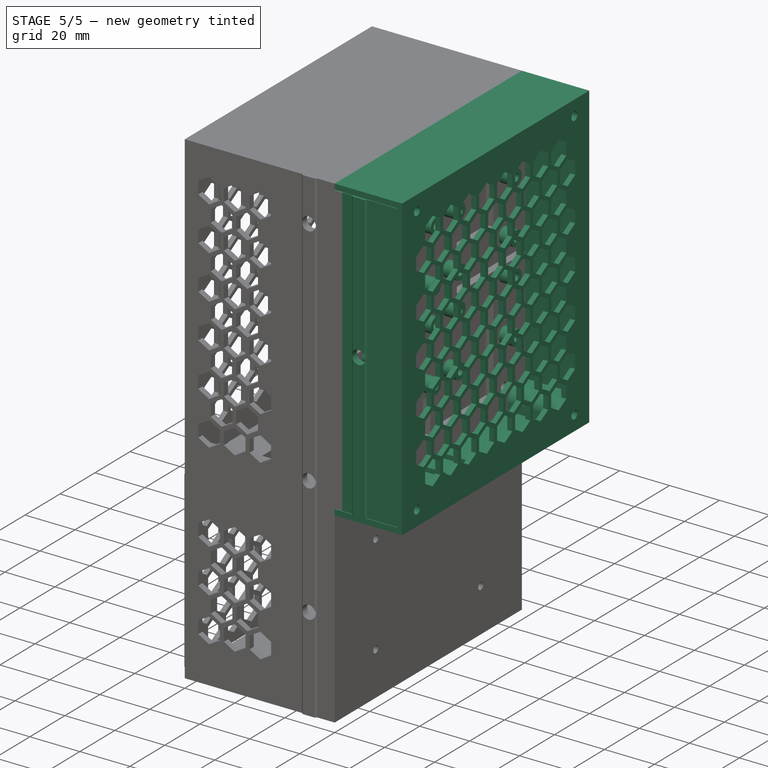
[diagram: stage 5 of 5 — iso view after this stage's code; geometry added in this stage tinted green]
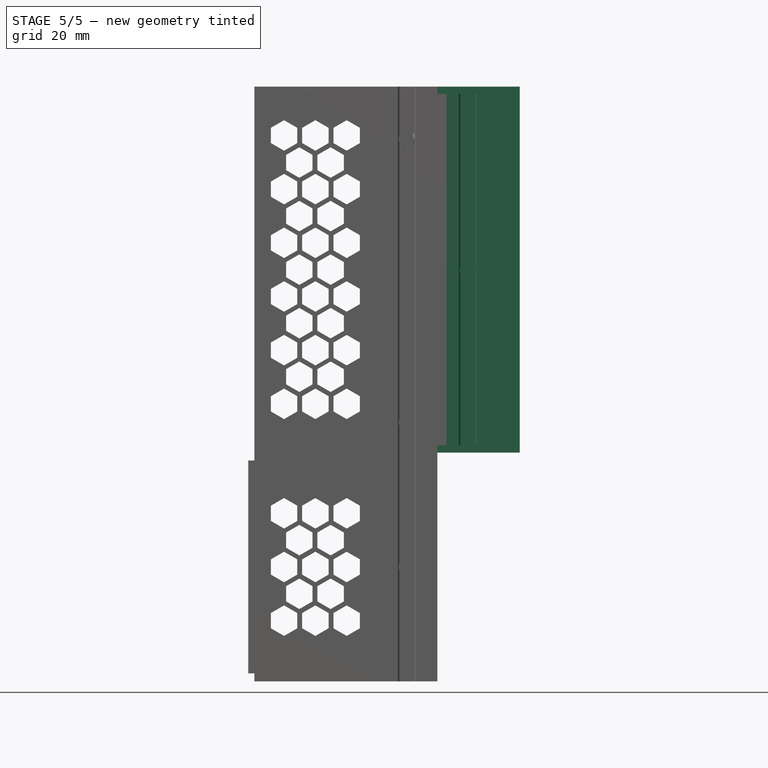
[diagram: stage 5 of 5 — front view after this stage's code; geometry added in this stage tinted green]
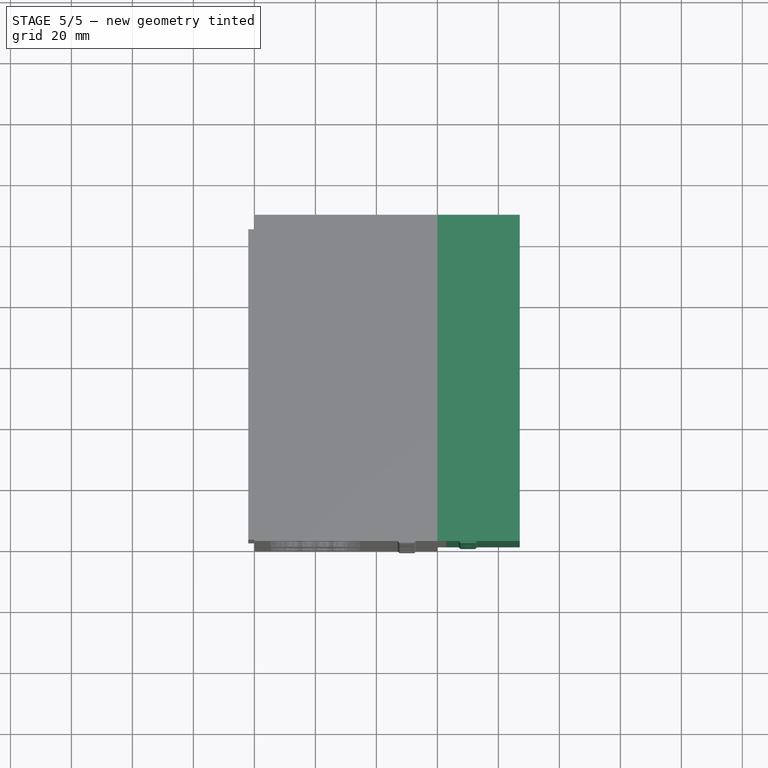
[diagram: stage 5 of 5 — top view after this stage's code; geometry added in this stage tinted green]
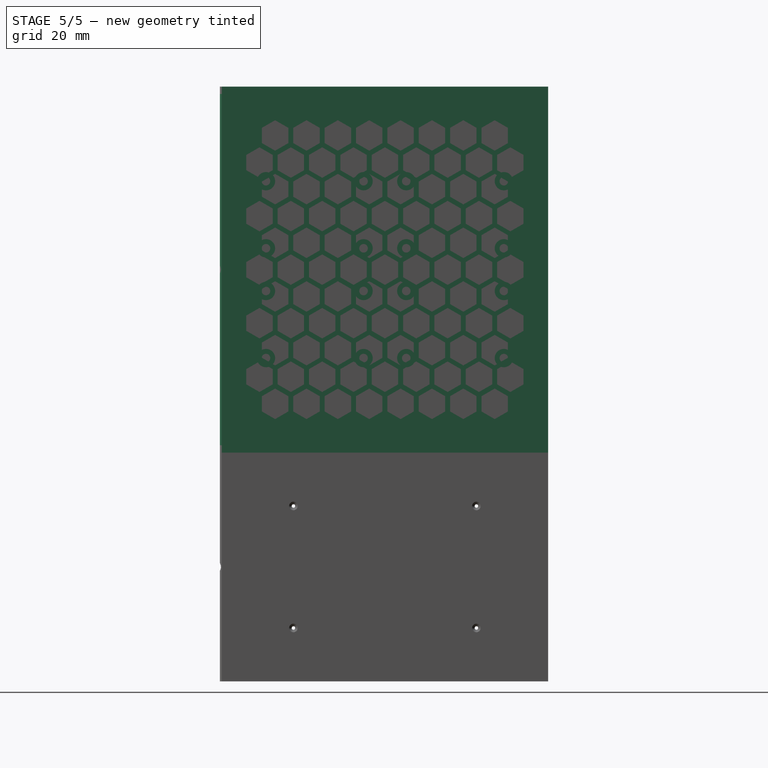
[diagram: stage 5 of 5 — right view after this stage's code; geometry added in this stage tinted green]
FEATURE [Sketcher::SketchObject] Sketch018
  AttachmentOffset = pos=(0,0,3) rot=(0,0,1;0rad)
  FullyConstrained = true
  MapMode = 5
  Placement = pos=(3,-7e-16,7e-16) rot=(0.57735,0.57735,0.57735;2.0944rad)
  Support = -> [YZ_Plane003]
  expr: .AttachmentOffset.Base.z = Pad006.Length
  expr: Constraints[42] = Sketch017.Constraints[5]
  expr: Constraints[44] = Sketch017.Constraints[7]
  expr: Constraints[43] = Sketch017.Constraints[6]
  expr: Constraints[41] = Sketch017.Constraints[4]
  sketch-geometry (34):
    g0: LineSegment StartX=14.5 StartY=89 StartZ=0 EndX=46.5 EndY=89 EndZ=0
    g1: LineSegment StartX=46.5 StartY=89 StartZ=0 EndX=46.5 EndY=67 EndZ=0
    g2: LineSegment StartX=46.5 StartY=67 StartZ=0 EndX=14.5 EndY=67 EndZ=0
    g3: LineSegment StartX=14.5 StartY=67 StartZ=0 EndX=14.5 EndY=89 EndZ=0
    g4: LineSegment StartX=60.5 StartY=89 StartZ=0 EndX=92.5 EndY=89 EndZ=0
    g5: LineSegment StartX=92.5 StartY=89 StartZ=0 EndX=92.5 EndY=67 EndZ=0
    g6: LineSegment StartX=92.5 StartY=67 StartZ=0 EndX=60.5 EndY=67 EndZ=0
    g7: LineSegment StartX=60.5 StartY=67 StartZ=0 EndX=60.5 EndY=89 EndZ=0
    g8: LineSegment StartX=60.5 StartY=53 StartZ=0 EndX=92.5 EndY=53 EndZ=0
    g9: LineSegment StartX=92.5 StartY=53 StartZ=0 EndX=92.5 EndY=31 EndZ=0
    g10: LineSegment StartX=92.5 StartY=31 StartZ=0 EndX=60.5 EndY=31 EndZ=0
    g11: LineSegment StartX=60.5 StartY=31 StartZ=0 EndX=60.5 EndY=53 EndZ=0
    g12: LineSegment StartX=14.5 StartY=53 StartZ=0 EndX=46.5 EndY=53 EndZ=0
    g13: LineSegment StartX=46.5 StartY=53 StartZ=0 EndX=46.5 EndY=31 EndZ=0
    g14: LineSegment StartX=46.5 StartY=31 StartZ=0 EndX=14.5 EndY=31 EndZ=0
    g15: LineSegment StartX=14.5 StartY=31 StartZ=0 EndX=14.5 EndY=53 EndZ=0
    g16: Circle CenterX=14.5 CenterY=89 CenterZ=0 NormalX=0 NormalY=0 NormalZ=1 AngleXU=0 Radius=3
    g17: Circle CenterX=46.5 CenterY=89 CenterZ=0 NormalX=0 NormalY=0 NormalZ=1 AngleXU=0 Radius=3
    g18: Circle CenterX=60.5 CenterY=89 CenterZ=0 NormalX=0 NormalY=0 NormalZ=1 AngleXU=0 Radius=3
    g19: Circle CenterX=92.5 CenterY=89 CenterZ=0 NormalX=0 NormalY=0 NormalZ=1 AngleXU=0 Radius=3
    g20: LineSegment StartX=0 StartY=60 StartZ=0 EndX=107 EndY=60 EndZ=0
    g21: LineSegment StartX=53.5 StartY=0 StartZ=0 EndX=53.5 EndY=120 EndZ=0
    g22: Circle CenterX=92.5 CenterY=67 CenterZ=0 NormalX=0 NormalY=0 NormalZ=1 AngleXU=0 Radius=3
    g23: Circle CenterX=60.5 CenterY=67 CenterZ=0 NormalX=0 NormalY=0 NormalZ=1 AngleXU=0 Radius=3
    g24: Circle CenterX=46.5 CenterY=67 CenterZ=0 NormalX=0 NormalY=0 NormalZ=1 AngleXU=0 Radius=3
    g25: Circle CenterX=14.5 CenterY=67 CenterZ=0 NormalX=0 NormalY=0 NormalZ=1 AngleXU=0 Radius=3
    g26: Circle CenterX=14.5 CenterY=53 CenterZ=0 NormalX=0 NormalY=0 NormalZ=1 AngleXU=0 Radius=3
    g27: Circle CenterX=46.5 CenterY=53 CenterZ=0 NormalX=0 NormalY=0 NormalZ=1 AngleXU=0 Radius=3
    g28: Circle CenterX=60.5 CenterY=53 CenterZ=0 NormalX=0 NormalY=0 NormalZ=1 AngleXU=0 Radius=3
    g29: Circle CenterX=92.5 CenterY=53 CenterZ=0 NormalX=0 NormalY=0 NormalZ=1 AngleXU=0 Radius=3
    g30: Circle CenterX=92.5 CenterY=31 CenterZ=0 NormalX=0 NormalY=0 NormalZ=1 AngleXU=0 Radius=3
    g31: Circle CenterX=60.5 CenterY=31 CenterZ=0 NormalX=0 NormalY=0 NormalZ=1 AngleXU=0 Radius=3
    g32: Circle CenterX=46.5 CenterY=31 CenterZ=0 NormalX=0 NormalY=0 NormalZ=1 AngleXU=0 Radius=3
    g33: Circle CenterX=14.5 CenterY=31 CenterZ=0 NormalX=0 NormalY=0 NormalZ=1 AngleXU=0 Radius=3
  constraints (85):
    c: Coincident(g0,g1)
    c: Coincident(g1,g2)
    c: Coincident(g2,g3)
    c: Coincident(g3,g0)
    c: Horizontal(g0)
    c: Horizontal(g2)
    c: Vertical(g1)
    c: Vertical(g3)
    c: Coincident(g4,g5)
    c: Coincident(g5,g6)
    c: Coincident(g6,g7)
    c: Coincident(g7,g4)
    c: Horizontal(g4)
    c: Horizontal(g6)
    c: Vertical(g5)
    c: Vertical(g7)
    c: Coincident(g8,g9)
    c: Coincident(g9,g10)
    c: Coincident(g11,g8)
    c: Horizontal(g8)
    c: Horizontal(g10)
    c: Vertical(g9)
    c: Vertical(g11)
    c: Coincident(g12,g13)
    c: Coincident(g14,g15)
    c: Coincident(g15,g12)
    c: Horizontal(g12)
    c: Horizontal(g14)
    c: Vertical(g13)
    c: Vertical(g15)
    c: Coincident(g16,g0)
    c: Coincident(g17,g0)
    c: Coincident(g18,g4)
    c: Coincident(g19,g4)
    c: Equal(g16,g17)
    c: Equal(g17,g18)
    c: Equal(g18,g19)
    c: Diameter(g16) = 6
    c: PointOnObject(g20,g-2)
    c: Horizontal(g20)
    c: PointOnObject(g21,g-1)
    c: DistanceY(g21,g21) = 120
    c: DistanceX(g20,g20) = 107
    c: DistanceX(g-1,g21) = 53.5
    c: DistanceY(g-1,g20) = 60
    c: Equal(g1,g7)
    c: Equal(g7,g11)
    c: Equal(g11,g13)
    c: Equal(g2,g6)
    c: Equal(g6,g8)
    c: Equal(g8,g12)
    c: DistanceY(g9,g9) = 22
    c: DistanceX(g10,g10) = 32
    c: Symmetric(g12,g8,g21)
    c: Symmetric(g1,g6,g21)
    c: Symmetric(g12,g1,g20)
    c: Symmetric(g8,g6,g20)
    c: Coincident(g22,g5)
    c: Coincident(g23,g6)
    c: DistanceY(g12,g2) = 14
    c: Coincident(g24,g1)
    c: Coincident(g25,g2)
    c: Coincident(g26,g12)
    c: Coincident(g27,g12)
    c: Coincident(g28,g8)
    c: Coincident(g29,g8)
    c: Coincident(g30,g9)
    c: Coincident(g33,g14)
    c: Equal(g19,g22)
    c: Equal(g22,g23)
    c: Equal(g23,g24)
    c: Equal(g24,g25)
    c: Equal(g25,g26)
    c: Equal(g26,g27)
    c: Equal(g27,g28)
    c: Equal(g28,g29)
    c: Equal(g29,g30)
    c: Equal(g30,g31)
    c: Equal(g31,g32)
    c: Equal(g32,g33)
    c: Coincident(g14,g13)
    c: Coincident(g10,g11)
    c: Coincident(g31,g10)
    c: Coincident(g32,g13)
    c: DistanceX(g32,g31) = 14
FEATURE [PartDesign::Pad] Pad007  label="PadScrews"
  AllowMultiFace = false
  BaseFeature = -> Pad006
  Direction = (1,1,1)
  Length = 5
  Length2 = 100
  Placement = pos=(0,0,0) rot=(0.57735,0.57735,0.57735;2.0944rad)
  Profile = -> Sketch018
  Type = 0
FEATURE [Sketcher::SketchObject] Sketch019
  AttachmentOffset = pos=(0,0,3) rot=(0,0,1;0rad)
  FullyConstrained = true
  MapMode = 5
  Placement = pos=(3,-7e-16,7e-16) rot=(0.57735,0.57735,0.57735;2.0944rad)
  Support = -> [YZ_Plane003]
  expr: Constraints[54] = Sketch001.Constraints.wall_thickness
  expr: Constraints[53] = Sketch001.Constraints.wall_thickness
  expr: .AttachmentOffset.Base.z = Pad006.Length
  expr: Constraints[52] = Sketch001.Constraints.wall_thickness
  expr: Constraints[2] = Sketch017.Constraints[4]
  expr: Constraints[5] = Sketch017.Constraints[7]
  expr: Constraints[3] = Sketch017.Constraints[5]
  expr: Constraints[4] = Sketch017.Constraints[6]
  sketch-geometry (22):
    g0: LineSegment StartX=0 StartY=60 StartZ=0 EndX=107 EndY=60 EndZ=0
    g1: LineSegment StartX=53.5 StartY=0 StartZ=0 EndX=53.5 EndY=120 EndZ=0
    g2: ArcOfCircle CenterX=99.6 CenterY=114.6 CenterZ=0 NormalX=0 NormalY=0 NormalZ=1 AngleXU=0 Radius=5 StartAngle=3.14159 EndAngle=4.71239
    g3: ArcOfCircle CenterX=99.6 CenterY=5.40002 CenterZ=0 NormalX=0 NormalY=0 NormalZ=1 AngleXU=0 Radius=5 StartAngle=1.5708 EndAngle=3.14159
    g4: ArcOfCircle CenterX=7.4 CenterY=114.6 CenterZ=0 NormalX=0 NormalY=0 NormalZ=1 AngleXU=0 Radius=5 StartAngle=4.71239 EndAngle=6.28318
    g5: ArcOfCircle CenterX=7.4 CenterY=5.40002 CenterZ=0 NormalX=0 NormalY=0 NormalZ=1 AngleXU=0 Radius=5 StartAngle=1e-16 EndAngle=1.5708
    g6: LineSegment StartX=94.6 StartY=114.6 StartZ=0 EndX=94.6 EndY=117.6 EndZ=0
    g7: LineSegment StartX=94.6 StartY=117.6 StartZ=0 EndX=104.6 EndY=117.6 EndZ=0
    g8: LineSegment StartX=104.6 StartY=117.6 StartZ=0 EndX=104.6 EndY=109.6 EndZ=0
    g9: LineSegment StartX=104.6 StartY=109.6 StartZ=0 EndX=99.6 EndY=109.6 EndZ=0
    g10: LineSegment StartX=99.6 StartY=10.4 StartZ=0 EndX=104.6 EndY=10.4 EndZ=0
    g11: LineSegment StartX=104.6 StartY=10.4 StartZ=0 EndX=104.6 EndY=2.40002 EndZ=0
    g12: LineSegment StartX=104.6 StartY=2.40002 StartZ=0 EndX=94.6 EndY=2.40002 EndZ=0
    g13: LineSegment StartX=94.6 StartY=2.40002 StartZ=0 EndX=94.6 EndY=5.40004 EndZ=0
    g14: LineSegment StartX=7.4 StartY=109.6 StartZ=0 EndX=2.4 EndY=109.6 EndZ=0
    g15: LineSegment StartX=2.4 StartY=109.6 StartZ=0 EndX=2.4 EndY=10.4 EndZ=0
    g16: LineSegment StartX=2.4 StartY=10.4 StartZ=0 EndX=7.4 EndY=10.4 EndZ=0
    g17: LineSegment StartX=12.4 StartY=5.40002 StartZ=0 EndX=12.4 EndY=2.4 EndZ=0
    g18: LineSegment StartX=12.4 StartY=2.4 StartZ=0 EndX=0 EndY=2.4 EndZ=0
    g19: LineSegment StartX=0 StartY=2.4 StartZ=0 EndX=0 EndY=117.6 EndZ=0
    g20: LineSegment StartX=0 StartY=117.6 StartZ=0 EndX=12.4 EndY=117.6 EndZ=0
    g21: LineSegment StartX=12.4 StartY=117.6 StartZ=0 EndX=12.4 EndY=114.6 EndZ=0
  constraints (65):
    c: PointOnObject(g0,g-2)
    c: PointOnObject(g1,g-1)
    c: DistanceY(g1,g1) = 120
    c: DistanceX(g0,g0) = 107
    c: DistanceX(g-1,g1) = 53.5
    c: DistanceY(g-1,g0) = 60
    c: Horizontal(g0)
    c: Tangent(g2,g6) = 1.5708
    c: Coincident(g6,g7)
    c: Horizontal(g7)
    c: Coincident(g7,g8)
    c: Vertical(g8)
    c: Coincident(g8,g9)
    c: Coincident(g9,g2)
    c: Tangent(g3,g10) = 1.5708
    c: Coincident(g10,g11)
    c: Vertical(g11)
    c: Coincident(g11,g12)
    c: Coincident(g12,g13)
    c: Coincident(g13,g3)
    c: Vertical(g13)
    c: Horizontal(g12)
    c: Horizontal(g10)
    c: Horizontal(g9)
    c: Vertical(g6)
    c: Tangent(g4,g14) = 1.5708
    c: Coincident(g14,g15)
    c: Vertical(g15)
    c: Coincident(g15,g16)
    c: Coincident(g16,g5)
    c: Horizontal(g16)
    c: Tangent(g5,g17) = 1.5708
    c: Coincident(g17,g18)
    c: PointOnObject(g18,g-2)
    c: Horizontal(g18)
    c: Coincident(g18,g19)
    c: PointOnObject(g19,g-2)
    c: Coincident(g19,g20)
    c: Horizontal(g20)
    c: Coincident(g20,g21)
    c: Coincident(g21,g4)
    c: Vertical(g21)
    c: Horizontal(g14)
    c: Vertical(g17)
    c: Symmetric(g5,g4,g0)
    c: Symmetric(g3,g2,g0)
    c: Symmetric(g5,g3,g1)
    c: Symmetric(g4,g2,g1)
    c: Equal(g4,g2)
    c: Equal(g2,g3)
    c: Equal(g3,g5)
    c: Radius(g3) = 5
    c: DistanceX(g18,g15) = 2.4
    c: DistanceY(g-1,g18) = 2.4
    c: DistanceX(g8,g0) = 2.4
    c: Tangent(g21,g4)
    c: Tangent(g3,g13)
    c: DistanceX(g12,g12) = 10
    c: Equal(g21,g6)
    c: Equal(g6,g13)
    c: Equal(g13,g17)
    c: DistanceY(g11,g11) = 8
    c: Equal(g10,g16)
    c: Equal(g16,g14)
    c: Equal(g14,g9)
FEATURE [Sketcher::SketchObject] Sketch020
  AttachmentOffset = pos=(0,0,8) rot=(0,0,1;0rad)
  FullyConstrained = true
  MapMode = 5
  Placement = pos=(8,-1.8e-15,1.8e-15) rot=(0.57735,0.57735,0.57735;2.0944rad)
  Support = -> [YZ_Plane003]
  expr: Constraints[84] = Sketch018.Constraints[84]
  expr: Constraints[59] = Sketch018.Constraints[59]
  expr: Constraints[51] = Sketch018.Constraints[51]
  expr: .AttachmentOffset.Base.z = Pad006.Length + Pad007.Length
  expr: Constraints[42] = Sketch018.Constraints[42]
  expr: Constraints[52] = Sketch018.Constraints[52]
  expr: Constraints[44] = Sketch018.Constraints[44]
  expr: Constraints[43] = Sketch018.Constraints[43]
  expr: Constraints[41] = Sketch018.Constraints[41]
  sketch-geometry (34):
    g0: LineSegment StartX=14.5 StartY=89 StartZ=0 EndX=46.5 EndY=89 EndZ=0
    g1: LineSegment StartX=46.5 StartY=89 StartZ=0 EndX=46.5 EndY=67 EndZ=0
    g2: LineSegment StartX=46.5 StartY=67 StartZ=0 EndX=14.5 EndY=67 EndZ=0
    g3: LineSegment StartX=14.5 StartY=67 StartZ=0 EndX=14.5 EndY=89 EndZ=0
    g4: LineSegment StartX=60.5 StartY=89 StartZ=0 EndX=92.5 EndY=89 EndZ=0
    g5: LineSegment StartX=92.5 StartY=89 StartZ=0 EndX=92.5 EndY=67 EndZ=0
    g6: LineSegment StartX=92.5 StartY=67 StartZ=0 EndX=60.5 EndY=67 EndZ=0
    g7: LineSegment StartX=60.5 StartY=67 StartZ=0 EndX=60.5 EndY=89 EndZ=0
    g8: LineSegment StartX=60.5 StartY=53 StartZ=0 EndX=92.5 EndY=53 EndZ=0
    g9: LineSegment StartX=92.5 StartY=53 StartZ=0 EndX=92.5 EndY=31 EndZ=0
    g10: LineSegment StartX=92.5 StartY=31 StartZ=0 EndX=60.5 EndY=31 EndZ=0
    g11: LineSegment StartX=60.5 StartY=31 StartZ=0 EndX=60.5 EndY=53 EndZ=0
    g12: LineSegment StartX=14.5 StartY=53 StartZ=0 EndX=46.5 EndY=53 EndZ=0
    g13: LineSegment StartX=46.5 StartY=53 StartZ=0 EndX=46.5 EndY=31 EndZ=0
    g14: LineSegment StartX=46.5 StartY=31 StartZ=0 EndX=14.5 EndY=31 EndZ=0
    g15: LineSegment StartX=14.5 StartY=31 StartZ=0 EndX=14.5 EndY=53 EndZ=0
    g16: Circle CenterX=14.5 CenterY=89 CenterZ=0 NormalX=0 NormalY=0 NormalZ=1 AngleXU=0 Radius=1.4
    g17: Circle CenterX=46.5 CenterY=89 CenterZ=0 NormalX=0 NormalY=0 NormalZ=1 AngleXU=0 Radius=1.4
    g18: Circle CenterX=60.5 CenterY=89 CenterZ=0 NormalX=0 NormalY=0 NormalZ=1 AngleXU=0 Radius=1.4
    g19: Circle CenterX=92.5 CenterY=89 CenterZ=0 NormalX=0 NormalY=0 NormalZ=1 AngleXU=0 Radius=1.4
    g20: LineSegment StartX=0 StartY=60 StartZ=0 EndX=107 EndY=60 EndZ=0
    g21: LineSegment StartX=53.5 StartY=0 StartZ=0 EndX=53.5 EndY=120 EndZ=0
    g22: Circle CenterX=92.5 CenterY=67 CenterZ=0 NormalX=0 NormalY=0 NormalZ=1 AngleXU=0 Radius=1.4
    g23: Circle CenterX=60.5 CenterY=67 CenterZ=0 NormalX=0 NormalY=0 NormalZ=1 AngleXU=0 Radius=1.4
    g24: Circle CenterX=46.5 CenterY=67 CenterZ=0 NormalX=0 NormalY=0 NormalZ=1 AngleXU=0 Radius=1.4
    g25: Circle CenterX=14.5 CenterY=67 CenterZ=0 NormalX=0 NormalY=0 NormalZ=1 AngleXU=0 Radius=1.4
    g26: Circle CenterX=14.5 CenterY=53 CenterZ=0 NormalX=0 NormalY=0 NormalZ=1 AngleXU=0 Radius=1.4
    g27: Circle CenterX=46.5 CenterY=53 CenterZ=0 NormalX=0 NormalY=0 NormalZ=1 AngleXU=0 Radius=1.4
    g28: Circle CenterX=60.5 CenterY=53 CenterZ=0 NormalX=0 NormalY=0 NormalZ=1 AngleXU=0 Radius=1.4
    g29: Circle CenterX=92.5 CenterY=53 CenterZ=0 NormalX=0 NormalY=0 NormalZ=1 AngleXU=0 Radius=1.4
    g30: Circle CenterX=92.5 CenterY=31 CenterZ=0 NormalX=0 NormalY=0 NormalZ=1 AngleXU=0 Radius=1.4
    g31: Circle CenterX=60.5 CenterY=31 CenterZ=0 NormalX=0 NormalY=0 NormalZ=1 AngleXU=0 Radius=1.4
    g32: Circle CenterX=46.5 CenterY=31 CenterZ=0 NormalX=0 NormalY=0 NormalZ=1 AngleXU=0 Radius=1.4
    g33: Circle CenterX=14.5 CenterY=31 CenterZ=0 NormalX=0 NormalY=0 NormalZ=1 AngleXU=0 Radius=1.4
  constraints (85):
    c: Coincident(g0,g1)
    c: Coincident(g1,g2)
    c: Coincident(g2,g3)
    c: Coincident(g3,g0)
    c: Horizontal(g0)
    c: Horizontal(g2)
    c: Vertical(g1)
    c: Vertical(g3)
    c: Coincident(g4,g5)
    c: Coincident(g5,g6)
    c: Coincident(g6,g7)
    c: Coincident(g7,g4)
    c: Horizontal(g4)
    c: Horizontal(g6)
    c: Vertical(g5)
    c: Vertical(g7)
    c: Coincident(g8,g9)
    c: Coincident(g9,g10)
    c: Coincident(g11,g8)
    c: Horizontal(g8)
    c: Horizontal(g10)
    c: Vertical(g9)
    c: Vertical(g11)
    c: Coincident(g12,g13)
    c: Coincident(g14,g15)
    c: Coincident(g15,g12)
    c: Horizontal(g12)
    c: Horizontal(g14)
    c: Vertical(g13)
    c: Vertical(g15)
    c: Coincident(g16,g0)
    c: Coincident(g17,g0)
    c: Coincident(g18,g4)
    c: Coincident(g19,g4)
    c: Equal(g16,g17)
    c: Equal(g17,g18)
    c: Equal(g18,g19)
    c: Diameter(g16) = 2.8
    c: PointOnObject(g20,g-2)
    c: Horizontal(g20)
    c: PointOnObject(g21,g-1)
    c: DistanceY(g21,g21) = 120
    c: DistanceX(g20,g20) = 107
    c: DistanceX(g-1,g21) = 53.5
    c: DistanceY(g-1,g20) = 60
    c: Equal(g1,g7)
    c: Equal(g7,g11)
    c: Equal(g11,g13)
    c: Equal(g2,g6)
    c: Equal(g6,g8)
    c: Equal(g8,g12)
    c: DistanceY(g9,g9) = 22
    c: DistanceX(g10,g10) = 32
    c: Symmetric(g12,g8,g21)
    c: Symmetric(g1,g6,g21)
    c: Symmetric(g12,g1,g20)
    c: Symmetric(g8,g6,g20)
    c: Coincident(g22,g5)
    c: Coincident(g23,g6)
    c: DistanceY(g12,g2) = 14
    c: Coincident(g24,g1)
    c: Coincident(g25,g2)
    c: Coincident(g26,g12)
    c: Coincident(g27,g12)
    c: Coincident(g28,g8)
    c: Coincident(g29,g8)
    c: Coincident(g30,g9)
    c: Coincident(g33,g14)
    c: Equal(g19,g22)
    c: Equal(g22,g23)
    c: Equal(g23,g24)
    c: Equal(g24,g25)
    c: Equal(g25,g26)
    c: Equal(g26,g27)
    c: Equal(g27,g28)
    c: Equal(g28,g29)
    c: Equal(g29,g30)
    c: Equal(g30,g31)
    c: Equal(g31,g32)
    c: Equal(g32,g33)
    c: Coincident(g14,g13)
    c: Coincident(g10,g11)
    c: Coincident(g31,g10)
    c: Coincident(g32,g13)
    c: DistanceX(g32,g31) = 14
FEATURE [PartDesign::Pocket] Pocket011  label="PocketScrewHoles"
  AllowMultiFace = false
  BaseFeature = -> Pad007
  Length = 6
  Length2 = 100
  Placement = pos=(0,0,0) rot=(0.57735,0.57735,0.57735;2.0944rad)
  Profile = -> Sketch020
  Type = 1
FEATURE [PartDesign::Pad] Pad008  label="PadCornerPosts"
  AllowMultiFace = false
  BaseFeature = -> Pocket011
  Direction = (1,1,1)
  Length = 22
  Length2 = 100
  Placement = pos=(0,0,0) rot=(0.57735,0.57735,0.57735;2.0944rad)
  Profile = -> Sketch019
  Type = 0
FEATURE [Sketcher::SketchObject] Sketch021
  AttachmentOffset = pos=(0,0,25) rot=(0,0,1;0rad)
  FullyConstrained = true
  MapMode = 5
  Placement = pos=(25,-5.6e-15,5.6e-15) rot=(0.57735,0.57735,0.57735;2.0944rad)
  Support = -> [YZ_Plane003]
  expr: Constraints[7] = Sketch.Constraints.hight / 2
  expr: .AttachmentOffset.Base.z = Pad006.Length + <<PadCornerPosts>>.Length
  expr: Constraints[6] = Sketch.Constraints.hight
  expr: Constraints[5] = Sketch.Constraints.width
  expr: Constraints[4] = Sketch.Constraints.width / 2
  sketch-geometry (10):
    g0: LineSegment StartX=53.5 StartY=120 StartZ=0 EndX=53.5 EndY=0 EndZ=0
    g1: LineSegment StartX=0 StartY=60 StartZ=0 EndX=107 EndY=60 EndZ=0
    g2: LineSegment StartX=8.5 StartY=114 StartZ=0 EndX=98.5 EndY=114 EndZ=0
    g3: LineSegment StartX=98.5 StartY=114 StartZ=0 EndX=98.5 EndY=6 EndZ=0
    g4: LineSegment StartX=98.5 StartY=6 StartZ=0 EndX=8.5 EndY=6 EndZ=0
    g5: LineSegment StartX=8.5 StartY=6 StartZ=0 EndX=8.5 EndY=114 EndZ=0
    g6: Circle CenterX=8.5 CenterY=114 CenterZ=0 NormalX=0 NormalY=0 NormalZ=1 AngleXU=0 Radius=1.4
    g7: Circle CenterX=98.5 CenterY=114 CenterZ=0 NormalX=0 NormalY=0 NormalZ=1 AngleXU=0 Radius=1.4
    g8: Circle CenterX=98.5 CenterY=6 CenterZ=0 NormalX=0 NormalY=0 NormalZ=1 AngleXU=0 Radius=1.4
    g9: Circle CenterX=8.5 CenterY=6 CenterZ=0 NormalX=0 NormalY=0 NormalZ=1 AngleXU=0 Radius=1.4
  constraints (26):
    c: PointOnObject(g0,g-1)
    c: Vertical(g0)
    c: PointOnObject(g1,g-2)
    c: Horizontal(g1)
    c: DistanceX(g-1,g0) = 53.5
    c: DistanceX(g1,g1) = 107
    c: DistanceY(g0,g0) = 120
    c: DistanceY(g-1,g1) = 60
    c: Coincident(g2,g3)
    c: Coincident(g3,g4)
    c: Coincident(g4,g5)
    c: Coincident(g5,g2)
    c: Horizontal(g4)
    c: Vertical(g5)
    c: Symmetric(g3,g2,g1)
    c: Symmetric(g2,g2,g0)
    c: Coincident(g6,g2)
    c: Coincident(g7,g2)
    c: Coincident(g8,g3)
    c: Coincident(g9,g4)
    c: Equal(g6,g7)
    c: Equal(g7,g8)
    c: Equal(g8,g9)
    c: Diameter(g8) = 2.8
    c: DistanceX(g2,g2) = 90
    c: DistanceY(g3,g3) = 108
FEATURE [PartDesign::Pocket] Pocket012  label="PocketCornerBores"
  AllowMultiFace = false
  BaseFeature = -> Pad008
  Length = 9
  Length2 = 100
  Placement = pos=(0,0,0) rot=(0.57735,0.57735,0.57735;2.0944rad)
  Profile = -> Sketch021
  Type = 0
FEATURE [Sketcher::SketchObject] Sketch022
  AttachmentOffset = pos=(0,0,2.4) rot=(0,0,1;0rad)
  FullyConstrained = true
  MapMode = 5
  Placement = pos=(0,0,2.4) rot=(0,0,1;0rad)
  Support = -> [XY_Plane003]
  expr: .AttachmentOffset.Base.z = Sketch001.Constraints.wall_thickness
  sketch-geometry (5):
    g0: LineSegment StartX=7 StartY=0 StartZ=0 EndX=13 EndY=0 EndZ=0
    g1: LineSegment StartX=13 StartY=0 StartZ=0 EndX=12.4 EndY=-0.6 EndZ=0
    g2: LineSegment StartX=12.4 StartY=-0.6 StartZ=0 EndX=7.6 EndY=-0.6 EndZ=0
    g3: LineSegment StartX=7.6 StartY=-0.6 StartZ=0 EndX=7 EndY=0 EndZ=0
    g4: LineSegment StartX=10 StartY=-0.6 StartZ=0 EndX=10 EndY=0 EndZ=0
  constraints (14):
    c: PointOnObject(g0,g-1)
    c: PointOnObject(g0,g-1)
    c: Coincident(g0,g1)
    c: Coincident(g1,g2)
    c: Coincident(g2,g3)
    c: Coincident(g3,g0)
    c: PointOnObject(g4,g2)
    c: PointOnObject(g4,g0)
    c: Symmetric(g2,g1,g4)
    c: Symmetric(g0,g0,g4)
    c: Perpendicular(g1,g3)
    c: DistanceX(g0,g0) = 6
    c: DistanceY(g1,g1) = 0.6
    c: DistanceX(g-1,g4) = 10
FEATURE [PartDesign::Pad] Pad009  label="PadProfil-Guide"
  AllowMultiFace = false
  BaseFeature = -> Pocket012
  Direction = (1,1,1)
  Length = 115.2
  Length2 = 100
  Placement = pos=(0,0,0) rot=(0.57735,0.57735,0.57735;2.0944rad)
  Profile = -> Sketch022
  Type = 0
  expr: Length = Sketch.Constraints.hight - 2 * Sketch001.Constraints.wall_thickness
FEATURE [Sketcher::SketchObject] Sketch023
  FullyConstrained = false
  MapMode = 5
  Placement = pos=(0,0,0) rot=(1,0,0;1.5708rad)
  Support = -> [XZ_Plane003]
  expr: Constraints[0] = Sketch.Constraints.hight / 2
  sketch-geometry (1):
    g0: Circle CenterX=10 CenterY=60 CenterZ=0 NormalX=0 NormalY=0 NormalZ=1 AngleXU=0 Radius=2.7
  constraints (3):
    c: DistanceY(g-1,g0) = 60
    c: DistanceX(g-1,g0) = 10
    c: Diameter(g0) = 5.4
FEATURE [PartDesign::Pocket] Pocket013  label="PocketProfil-GuideBores"
  AllowMultiFace = false
  BaseFeature = -> Pad009
  Length = 5
  Length2 = 100
  Midplane = true
  Placement = pos=(0,0,0) rot=(0.57735,0.57735,0.57735;2.0944rad)
  Profile = -> Sketch023
  Reversed = true
  Type = 1
FEATURE [PartDesign::Body] Body003  label="Smoother-Holder"
  Group = -> [Sketch017,Pad006,Sketch018,Pad007,Sketch019,Sketch020,Pocket011,Sketch021,Pad008,Pocket012,Sketch022,Pad009,Sketch023,Pocket013]
  Origin = -> Origin003
  Tip = -> Pocket013
FEATURE [Sketcher::SketchObject] Sketch024
  AttachmentOffset = pos=(0,0,25) rot=(0,0,1;0rad)
  FullyConstrained = true
  MapMode = 5
  Placement = pos=(25,-5.6e-15,5.6e-15) rot=(0.57735,0.57735,0.57735;2.0944rad)
  Support = -> [YZ_Plane004]
  expr: Constraints[32] = Sketch.Constraints.width / 2
  expr: Constraints[31] = Sketch.Constraints.hight / 2
  expr: Constraints[11] = Sketch.Constraints.width
  expr: Constraints[10] = Sketch.Constraints.hight
  expr: .AttachmentOffset.Base.z = Pad006.Length + <<PadCornerPosts>>.Length
  sketch-geometry (14):
    g0: LineSegment StartX=0 StartY=120 StartZ=0 EndX=107 EndY=120 EndZ=0
    g1: LineSegment StartX=107 StartY=120 StartZ=0 EndX=107 EndY=0 EndZ=0
    g2: LineSegment StartX=107 StartY=0 StartZ=0 EndX=0 EndY=0 EndZ=0
    g3: LineSegment StartX=0 StartY=0 StartZ=0 EndX=0 EndY=120 EndZ=0
    g4: LineSegment StartX=8.5 StartY=114 StartZ=0 EndX=98.5 EndY=114 EndZ=0
    g5: LineSegment StartX=98.5 StartY=114 StartZ=0 EndX=98.5 EndY=6 EndZ=0
    g6: LineSegment StartX=98.5 StartY=6 StartZ=0 EndX=8.5 EndY=6 EndZ=0
    g7: LineSegment StartX=8.5 StartY=6 StartZ=0 EndX=8.5 EndY=114 EndZ=0
    g8: Circle CenterX=8.5 CenterY=114 CenterZ=0 NormalX=0 NormalY=0 NormalZ=1 AngleXU=0 Radius=1.7
    g9: Circle CenterX=98.5 CenterY=114 CenterZ=0 NormalX=0 NormalY=0 NormalZ=1 AngleXU=0 Radius=1.7
    g10: Circle CenterX=98.5 CenterY=6 CenterZ=0 NormalX=0 NormalY=0 NormalZ=1 AngleXU=0 Radius=1.7
    g11: Circle CenterX=8.5 CenterY=6 CenterZ=0 NormalX=0 NormalY=0 NormalZ=1 AngleXU=0 Radius=1.7
    g12: LineSegment StartX=53.5 StartY=120 StartZ=0 EndX=53.5 EndY=0 EndZ=0
    g13: LineSegment StartX=0 StartY=60 StartZ=0 EndX=107 EndY=60 EndZ=0
  constraints (38):
    c: Coincident(g0,g1)
    c: Coincident(g1,g2)
    c: Coincident(g2,g3)
    c: Coincident(g3,g0)
    c: Horizontal(g0)
    c: Horizontal(g2)
    c: Vertical(g1)
    c: Vertical(g3)
    c: PointOnObject(g0,g-2)
    c: PointOnObject(g1,g-1)
    c: DistanceY(g3,g3) = 120
    c: DistanceX(g2,g2) = 107
    c: Coincident(g4,g5)
    c: Coincident(g5,g6)
    c: Coincident(g6,g7)
    c: Coincident(g7,g4)
    c: Horizontal(g4)
    c: Horizontal(g6)
    c: Vertical(g5)
    c: Vertical(g7)
    c: Coincident(g8,g4)
    c: Coincident(g9,g4)
    c: Coincident(g10,g5)
    c: Coincident(g11,g6)
    c: Equal(g8,g9)
    c: Equal(g9,g10)
    c: Equal(g10,g11)
    c: PointOnObject(g12,g0)
    c: PointOnObject(g12,g2)
    c: PointOnObject(g13,g3)
    c: PointOnObject(g13,g1)
    c: DistanceY(g2,g13) = 60
    c: DistanceX(g2,g12) = 53.5
    c: Symmetric(g11,g10,g12)
    c: Symmetric(g11,g8,g13)
    c: DistanceX(g4,g4) = 90
    c: DistanceY(g5,g5) = 108
    c: Diameter(g10) = 3.4
FEATURE [PartDesign::Pad] Pad010
  AllowMultiFace = false
  Direction = (1,1,1)
  Length = 2
  Length2 = 100
  Placement = pos=(0,0,0) rot=(0.57735,0.57735,0.57735;2.0944rad)
  Profile = -> Sketch024
  Type = 0
FEATURE [Sketcher::SketchObject] Sketch025
  AttachmentOffset = pos=(0,0,25) rot=(0,0,1;0rad)
  FullyConstrained = true
  MapMode = 5
  Placement = pos=(25,-5.6e-15,5.6e-15) rot=(0.57735,0.57735,0.57735;2.0944rad)
  Support = -> [YZ_Plane004]
  expr: Constraints[22] = Sketch.Constraints.width - Sketch001.Constraints.wall_thickness + 0.2mm
  expr: Constraints[21] = Sketch.Constraints.width
  expr: Constraints[20] = Sketch.Constraints.hight
  expr: Constraints[19] = Sketch001.Constraints.wall_thickness - 0.2mm
  expr: .AttachmentOffset.Base.z = Pad006.Length + <<PadCornerPosts>>.Length
  sketch-geometry (8):
    g0: LineSegment StartX=0 StartY=0 StartZ=0 EndX=0 EndY=2.2 EndZ=0
    g1: LineSegment StartX=0 StartY=2.2 StartZ=0 EndX=104.8 EndY=2.2 EndZ=0
    g2: LineSegment StartX=104.8 StartY=2.2 StartZ=0 EndX=104.8 EndY=117.8 EndZ=0
    g3: LineSegment StartX=104.8 StartY=117.8 StartZ=0 EndX=0 EndY=117.8 EndZ=0
    g4: LineSegment StartX=0 StartY=117.8 StartZ=0 EndX=0 EndY=120 EndZ=0
    g5: LineSegment StartX=0 StartY=120 StartZ=0 EndX=107 EndY=120 EndZ=0
    g6: LineSegment StartX=107 StartY=120 StartZ=0 EndX=107 EndY=0 EndZ=0
    g7: LineSegment StartX=107 StartY=0 StartZ=0 EndX=0 EndY=0 EndZ=0
  constraints (23):
    c: Coincident(g-1,g0)
    c: PointOnObject(g0,g-2)
    c: Coincident(g0,g1)
    c: Horizontal(g1)
    c: Coincident(g1,g2)
    c: Vertical(g2)
    c: Coincident(g2,g3)
    c: PointOnObject(g3,g-2)
    c: Horizontal(g3)
    c: Coincident(g3,g4)
    c: PointOnObject(g4,g-2)
    c: Coincident(g4,g5)
    c: Horizontal(g5)
    c: Coincident(g5,g6)
    c: PointOnObject(g6,g-1)
    c: Vertical(g6)
    c: Coincident(g6,g7)
    c: Coincident(g7,g0)
    c: Equal(g0,g4)
    c: DistanceY(g0,g0) = 2.2
    c: DistanceY(g6,g6) = 120
    c: DistanceX(g7,g7) = 107
    c: DistanceX(g3,g3) = 104.8
FEATURE [PartDesign::Pad] Pad011
  AllowMultiFace = false
  BaseFeature = -> Pad010
  Direction = (1,1,1)
  Length = 25
  Length2 = 100
  Placement = pos=(0,0,0) rot=(0.57735,0.57735,0.57735;2.0944rad)
  Profile = -> Sketch025
  Reversed = true
  Type = 0
  expr: Length = Pad006.Length + <<PadCornerPosts>>.Length
FEATURE [Sketcher::SketchObject] Sketch026
  AttachmentOffset = pos=(0,0,60) rot=(0,0,1;0rad)
  FullyConstrained = false
  MapMode = 5
  Placement = pos=(0,0,60) rot=(0,0,1;0rad)
  Support = -> [XY_Plane004]
  expr: .AttachmentOffset.Base.z = Sketch.Constraints.hight / 2
  sketch-geometry (27):
    g0: LineSegment StartX=0 StartY=20 StartZ=0 EndX=16 EndY=20 EndZ=0
    g1: LineSegment StartX=16 StartY=20 StartZ=0 EndX=16 EndY=12 EndZ=0
    g2: LineSegment StartX=16 StartY=12 StartZ=0 EndX=0 EndY=12 EndZ=0
    g3: LineSegment StartX=0 StartY=12 StartZ=0 EndX=0 EndY=20 EndZ=0
    g4: LineSegment StartX=0 StartY=32 StartZ=0 EndX=16 EndY=32 EndZ=0
    g5: LineSegment StartX=16 StartY=32 StartZ=0 EndX=16 EndY=24 EndZ=0
    g6: LineSegment StartX=16 StartY=24 StartZ=0 EndX=0 EndY=24 EndZ=0
    g7: LineSegment StartX=0 StartY=24 StartZ=0 EndX=0 EndY=32 EndZ=0
    g8: ArcOfCircle CenterX=16 CenterY=28 CenterZ=0 NormalX=0 NormalY=0 NormalZ=1 AngleXU=0 Radius=4 StartAngle=4.71239 EndAngle=7.85398
    g9: ArcOfCircle CenterX=16 CenterY=16 CenterZ=0 NormalX=0 NormalY=0 NormalZ=1 AngleXU=0 Radius=4 StartAngle=4.71239 EndAngle=7.85398
    g10: LineSegment StartX=16 StartY=28 StartZ=0 EndX=0 EndY=28 EndZ=0
    g11: LineSegment StartX=16 StartY=16 StartZ=0 EndX=0 EndY=16 EndZ=0
    g12: LineSegment StartX=0 StartY=44 StartZ=0 EndX=16 EndY=44 EndZ=0
    g13: LineSegment StartX=16 StartY=44 StartZ=0 EndX=16 EndY=36 EndZ=0
    g14: LineSegment StartX=16 StartY=36 StartZ=0 EndX=0 EndY=36 EndZ=0
    g15: LineSegment StartX=0 StartY=36 StartZ=0 EndX=0 EndY=44 EndZ=0
    g16: LineSegment StartX=0 StartY=40 StartZ=0 EndX=16 EndY=40 EndZ=0
    g17: ArcOfCircle CenterX=16 CenterY=40 CenterZ=0 NormalX=0 NormalY=0 NormalZ=1 AngleXU=0 Radius=4 StartAngle=4.71239 EndAngle=7.85398
    g18: LineSegment StartX=0 StartY=36 StartZ=0 EndX=0 EndY=32 EndZ=0
    g19: LineSegment StartX=0 StartY=24 StartZ=0 EndX=0 EndY=20 EndZ=0
    g20: LineSegment StartX=0 StartY=56 StartZ=0 EndX=16 EndY=56 EndZ=0
    g21: LineSegment StartX=16 StartY=56 StartZ=0 EndX=16 EndY=48 EndZ=0
    g22: LineSegment StartX=16 StartY=48 StartZ=0 EndX=0 EndY=48 EndZ=0
    g23: LineSegment StartX=0 StartY=48 StartZ=0 EndX=0 EndY=56 EndZ=0
    g24: ArcOfCircle CenterX=16 CenterY=52 CenterZ=0 NormalX=0 NormalY=0 NormalZ=1 AngleXU=0 Radius=4 StartAngle=4.71239 EndAngle=7.85398
    g25: LineSegment StartX=16 StartY=52 StartZ=0 EndX=0 EndY=52 EndZ=0
    g26: LineSegment StartX=0 StartY=44 StartZ=0 EndX=0 EndY=48 EndZ=0
  constraints (78):
    c: Coincident(g0,g1)
    c: Coincident(g1,g2)
    c: Coincident(g2,g3)
    c: Coincident(g3,g0)
    c: Horizontal(g0)
    c: Horizontal(g2)
    c: Vertical(g1)
    c: Vertical(g3)
    c: Coincident(g4,g5)
    c: Coincident(g5,g6)
    c: Coincident(g6,g7)
    c: Coincident(g7,g4)
    c: Horizontal(g4)
    c: Horizontal(g6)
    c: Vertical(g5)
    c: Vertical(g7)
    c: PointOnObject(g4,g-2)
    c: PointOnObject(g8,g5)
    c: Coincident(g8,g4)
    c: Coincident(g8,g5)
    c: PointOnObject(g9,g1)
    c: Coincident(g9,g0)
    c: Coincident(g9,g1)
    c: Equal(g0,g6)
    c: Coincident(g10,g8)
    c: Horizontal(g10)
    c: Coincident(g11,g9)
    c: PointOnObject(g11,g3)
    c: Horizontal(g11)
    c: PointOnObject(g2,g-2)
    c: DistanceX(g11,g11) = 16
    c: Equal(g3,g7)
    c: PointOnObject(g10,g7)
    c: DistanceY(g3,g3) = 8
    c: DistanceY(g0,g6) = 4
    c: DistanceY(g-1,g11) = 16
    c: Coincident(g12,g13)
    c: Coincident(g13,g14)
    c: Coincident(g14,g15)
    c: Coincident(g15,g12)
    c: Horizontal(g12)
    c: Horizontal(g14)
    c: Vertical(g13)
    c: Vertical(g15)
    c: PointOnObject(g16,g15)
    c: PointOnObject(g16,g13)
    c: Horizontal(g16)
    c: Coincident(g17,g16)
    c: Coincident(g17,g12)
    c: Coincident(g17,g14)
    c: PointOnObject(g14,g-2)
    c: Equal(g4,g14)
    c: Equal(g7,g15)
    c: Coincident(g18,g14)
    c: Coincident(g18,g4)
    c: Coincident(g19,g6)
    c: Coincident(g19,g0)
    c: Equal(g19,g18)
    c: Coincident(g20,g21)
    c: Coincident(g21,g22)
    c: Coincident(g22,g23)
    c: Coincident(g23,g20)
    c: Horizontal(g20)
    c: Horizontal(g22)
    c: Vertical(g21)
    c: Vertical(g23)
    c: PointOnObject(g24,g21)
    c: Coincident(g24,g20)
    c: Coincident(g24,g21)
    c: Coincident(g25,g24)
    c: PointOnObject(g25,g23)
    c: Horizontal(g25)
    c: Equal(g15,g23)
    c: Equal(g12,g22)
    c: PointOnObject(g22,g-2)
    c: Coincident(g26,g12)
    c: Coincident(g26,g22)
    c: Equal(g18,g26)
FEATURE [PartDesign::Pocket] Pocket014
  AllowMultiFace = false
  BaseFeature = -> Pad011
  Length = 119.2
  Length2 = 100
  Midplane = true
  Placement = pos=(0,0,0) rot=(0.57735,0.57735,0.57735;2.0944rad)
  Profile = -> Sketch026
  Type = 0
  expr: Length = Sketch.Constraints.hight - 0.8mm
FEATURE [Sketcher::SketchObject] Sketch027
  AttachmentOffset = pos=(0,0,27) rot=(0,0,1;0rad)
  FullyConstrained = true
  MapMode = 5
  Placement = pos=(27,-6e-15,6e-15) rot=(0.57735,0.57735,0.57735;2.0944rad)
  Support = -> [YZ_Plane004]
  expr: Constraints[26] = Sketch.Constraints.width / 2
  expr: Constraints[25] = Sketch.Constraints.width
  expr: Constraints[24] = Sketch.Constraints.hight / 2
  expr: Constraints[23] = Sketch.Constraints.hight
  expr: .AttachmentOffset.Base.z = Pad006.Length + <<PadCornerPosts>>.Length + Pad010.Length
  sketch-geometry (9):
    g0: LineSegment StartX=13.1699 StartY=106.5 StartZ=0 EndX=13.1699 EndY=101.5 EndZ=0
    g1: LineSegment StartX=13.1699 StartY=101.5 StartZ=0 EndX=17.5 EndY=99 EndZ=0
    g2: LineSegment StartX=17.5 StartY=99 StartZ=0 EndX=21.8301 EndY=101.5 EndZ=0
    g3: LineSegment StartX=21.8301 StartY=101.5 StartZ=0 EndX=21.8301 EndY=106.5 EndZ=0
    g4: LineSegment StartX=21.8301 StartY=106.5 StartZ=0 EndX=17.5 EndY=109 EndZ=0
    g5: LineSegment StartX=17.5 StartY=109 StartZ=0 EndX=13.1699 EndY=106.5 EndZ=0
    g6: Circle CenterX=17.5 CenterY=104 CenterZ=0 NormalX=0 NormalY=0 NormalZ=1 AngleXU=0 Radius=5
    g7: LineSegment StartX=53.5 StartY=120 StartZ=0 EndX=53.5 EndY=0 EndZ=0
    g8: LineSegment StartX=0 StartY=60 StartZ=0 EndX=107 EndY=60 EndZ=0
  constraints (25):
    c: Coincident(g0,g1)
    c: Coincident(g1,g2)
    c: Coincident(g2,g3)
    c: Coincident(g3,g4)
    c: Coincident(g4,g5)
    c: Coincident(g5,g0)
    c: Equal(g0, g1-g5) x5
    c: PointOnObject(g0,g6)
    c: PointOnObject(g1,g6)
    c: PointOnObject(g2,g6)
    c: PointOnObject(g3,g6)
    c: PointOnObject(g4,g6)
    c: PointOnObject(g5,g6)
    c: Vertical(g0)
    c: Diameter(g6) = 10
    c: PointOnObject(g7,g-1)
    c: Vertical(g7)
    c: Horizontal(g8)
    c: PointOnObject(g8,g-2)
    c: DistanceY(g7,g7) = 120
    c: DistanceY(g-1,g8) = 60
    c: DistanceX(g8,g8) = 107
    c: DistanceX(g-1,g7) = 53.5
    c: DistanceY(g8,g6) = 44
    c: DistanceX(g6,g7) = 36
FEATURE [PartDesign::Pocket] Pocket015
  AllowMultiFace = false
  BaseFeature = -> Pocket014
  Length = 5
  Length2 = 100
  Placement = pos=(0,0,0) rot=(0.57735,0.57735,0.57735;2.0944rad)
  Profile = -> Sketch027
  Type = 1
FEATURE [PartDesign::LinearPattern] LinearPattern
  Direction = -> Sketch027 [H_Axis]
  Length = 72
  Occurrences = 8
  Placement = pos=(0,0,0) rot=(0.57735,0.57735,0.57735;2.0944rad)
FEATURE [PartDesign::LinearPattern] LinearPattern001
  Direction = -> Sketch027 [V_Axis]
  Length = 88
  Occurrences = 6
  Placement = pos=(0,0,0) rot=(0.57735,0.57735,0.57735;2.0944rad)
  Reversed = true
FEATURE [PartDesign::MultiTransform] MultiTransform
  BaseFeature = -> Pocket015
  Originals = -> [Pocket015]
  Placement = pos=(0,0,0) rot=(0.57735,0.57735,0.57735;2.0944rad)
  Transformations = -> [LinearPattern,LinearPattern001]
FEATURE [Sketcher::SketchObject] Sketch028
  AttachmentOffset = pos=(0,0,27) rot=(0,0,1;0rad)
  FullyConstrained = true
  MapMode = 5
  Placement = pos=(27,-6e-15,6e-15) rot=(0.57735,0.57735,0.57735;2.0944rad)
  Support = -> [YZ_Plane004]
  expr: .AttachmentOffset.Base.z = Pad006.Length + <<PadCornerPosts>>.Length + Pad010.Length
  expr: Constraints[25] = Sketch.Constraints.hight
  expr: Constraints[24] = Sketch.Constraints.width / 2
  expr: Constraints[26] = Sketch.Constraints.hight / 2
  expr: Constraints[23] = Sketch.Constraints.width
  sketch-geometry (9):
    g0: LineSegment StartX=12.37 StartY=90.114 StartZ=0 EndX=16.7001 EndY=92.614 EndZ=0
    g1: LineSegment StartX=16.7001 StartY=92.614 StartZ=0 EndX=16.7001 EndY=97.614 EndZ=0
    g2: LineSegment StartX=16.7001 StartY=97.614 StartZ=0 EndX=12.37 EndY=100.114 EndZ=0
    g3: LineSegment StartX=12.37 StartY=100.114 StartZ=0 EndX=8.03987 EndY=97.614 EndZ=0
    g4: LineSegment StartX=8.03987 StartY=97.614 StartZ=0 EndX=8.03987 EndY=92.614 EndZ=0
    g5: LineSegment StartX=8.03987 StartY=92.614 StartZ=0 EndX=12.37 EndY=90.114 EndZ=0
    g6: Circle CenterX=12.37 CenterY=95.114 CenterZ=0 NormalX=0 NormalY=0 NormalZ=1 AngleXU=0 Radius=5
    g7: LineSegment StartX=53.5 StartY=120 StartZ=0 EndX=53.5 EndY=0 EndZ=0
    g8: LineSegment StartX=0 StartY=60 StartZ=0 EndX=107 EndY=60 EndZ=0
  constraints (25):
    c: Coincident(g0,g1)
    c: Coincident(g1,g2)
    c: Coincident(g2,g3)
    c: Coincident(g3,g4)
    c: Coincident(g4,g5)
    c: Coincident(g5,g0)
    c: Equal(g0, g1-g5) x5
    c: PointOnObject(g0,g6)
    c: PointOnObject(g1,g6)
    c: PointOnObject(g2,g6)
    c: PointOnObject(g3,g6)
    c: PointOnObject(g4,g6)
    c: PointOnObject(g5,g6)
    c: Diameter(g6) = 10
    c: Vertical(g4)
    c: PointOnObject(g7,g-1)
    c: Vertical(g7)
    c: PointOnObject(g8,g-2)
    c: Horizontal(g8)
    c: DistanceX(g8,g8) = 107
    c: DistanceX(g-1,g7) = 53.5
    c: DistanceY(g7,g7) = 120
    c: DistanceY(g-1,g8) = 60
    c: DistanceY(g8,g6) = 35.114
    c: DistanceX(g6,g7) = 41.13
FEATURE [PartDesign::Pocket] Pocket016
  AllowMultiFace = false
  BaseFeature = -> MultiTransform
  Length = 5
  Length2 = 100
  Placement = pos=(0,0,0) rot=(0.57735,0.57735,0.57735;2.0944rad)
  Profile = -> Sketch028
  Type = 1
FEATURE [PartDesign::LinearPattern] LinearPattern002
  Direction = -> Sketch028 [H_Axis]
  Length = 82.26
  Occurrences = 9
  Placement = pos=(0,0,0) rot=(0.57735,0.57735,0.57735;2.0944rad)
FEATURE [PartDesign::LinearPattern] LinearPattern003
  Direction = -> Sketch028 [V_Axis]
  Length = 70.228
  Occurrences = 5
  Placement = pos=(0,0,0) rot=(0.57735,0.57735,0.57735;2.0944rad)
  Reversed = true
FEATURE [PartDesign::MultiTransform] MultiTransform001
  BaseFeature = -> Pocket016
  Originals = -> [Pocket016]
  Placement = pos=(0,0,0) rot=(0.57735,0.57735,0.57735;2.0944rad)
  Transformations = -> [LinearPattern002,LinearPattern003]
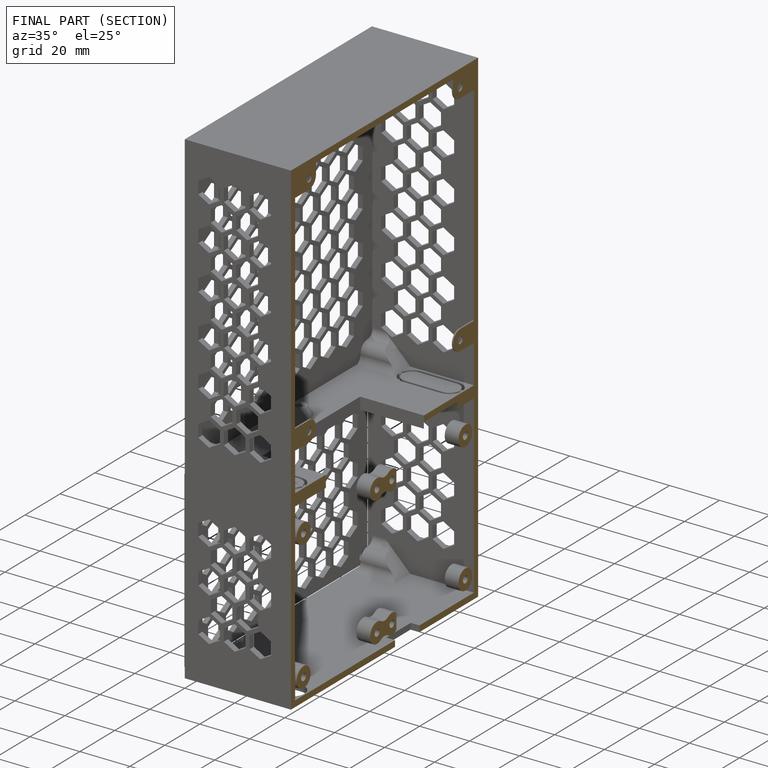
[diagram: finished part — half-section view (interior)]
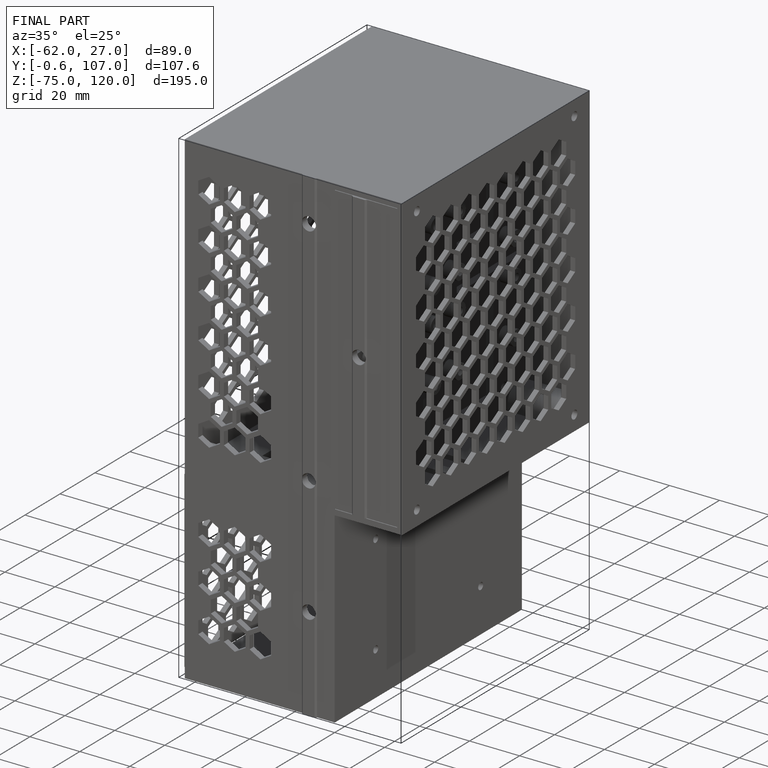
[diagram: finished part — iso view with bounding-box wireframe]
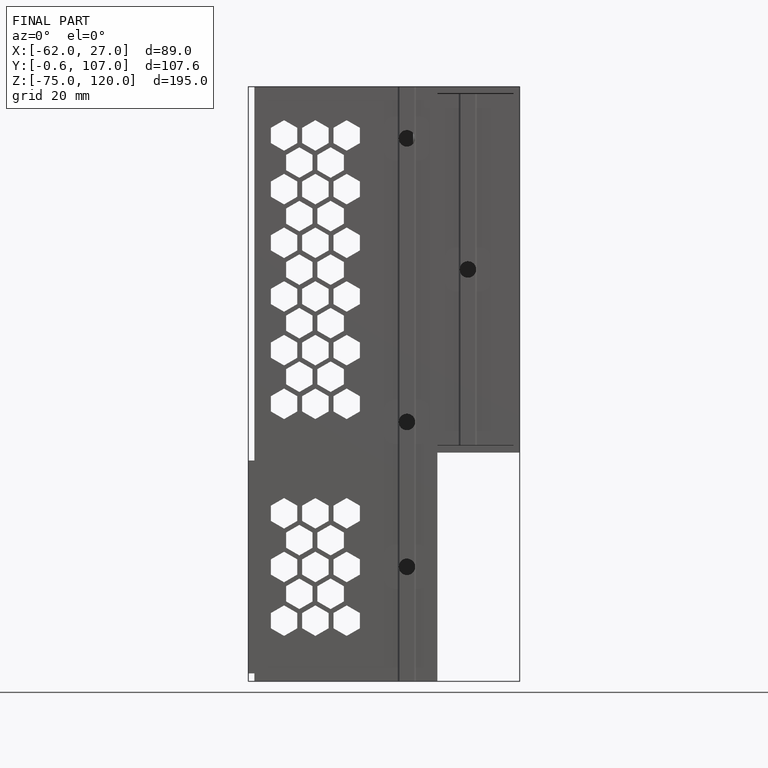
[diagram: finished part — front view with bounding-box wireframe]
